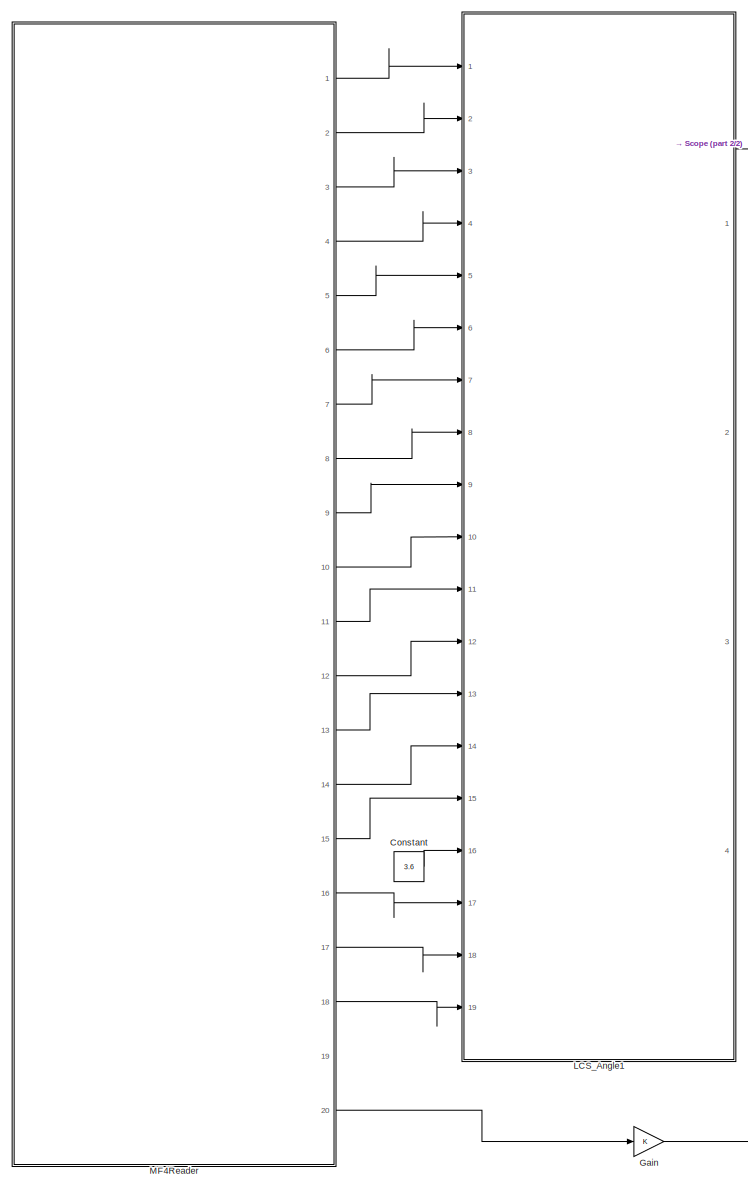
[diagram: root canvas - part 1/2, left side, full height]
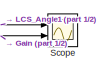
[diagram: root canvas - part 2/2, top right region]
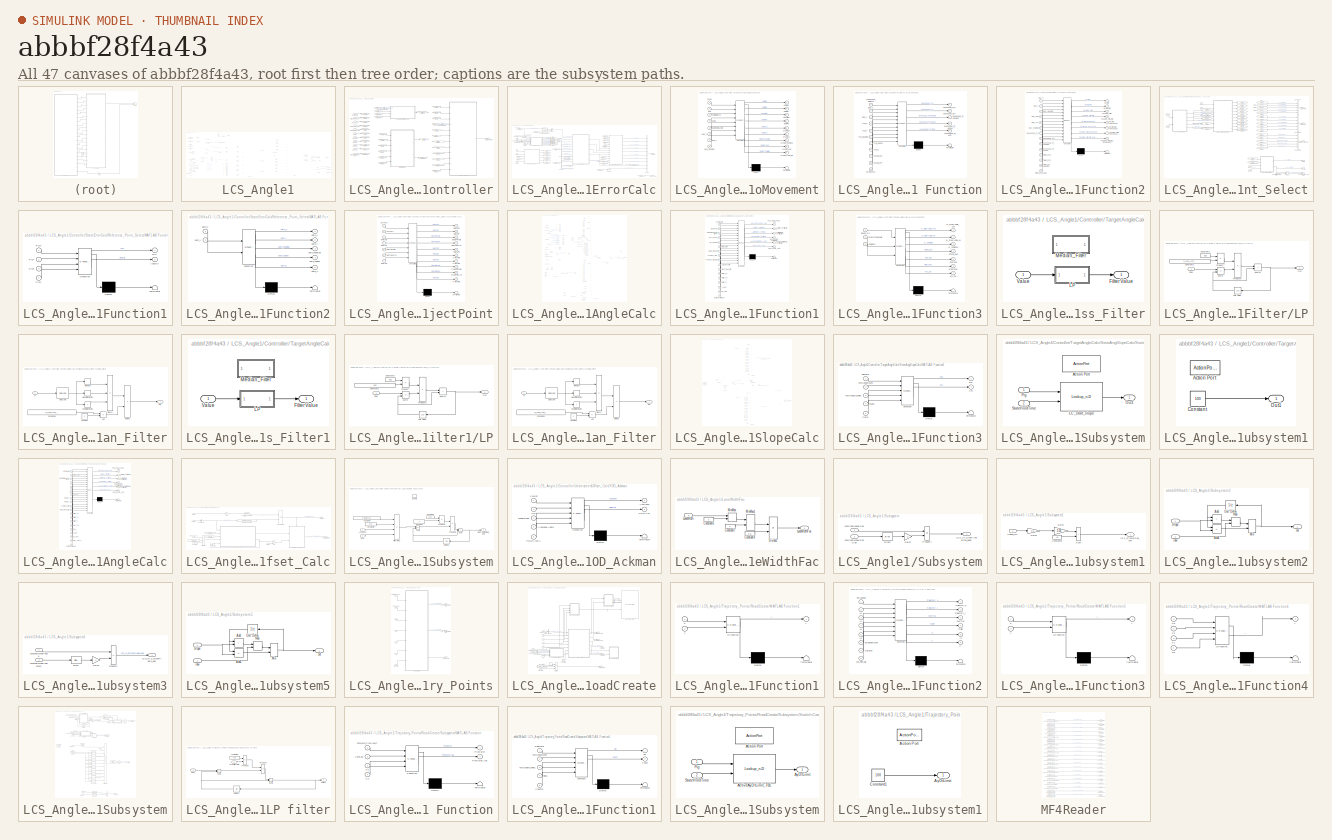
[diagram: thumbnail index - all 47 canvases of the model, root first then tree order]
MODEL slx_abbbf28f4a43
KIND model
CONFIG AbsTol = auto
CONFIG EnableMultiTasking = off
CONFIG FixedStep = 0.01
CONFIG MaxStep = auto
CONFIG MinStep = auto
CONFIG RelTol = 1e-3
CONFIG SampleTimeConstraint = Unconstrained
CONFIG SolverName = FixedStepDiscrete
CONFIG StartTime = 49.3316
CONFIG StopTime = 94.3708
BLOCK [Constant] Constant
  OutDataTypeStr = single
  Value = 3.6
BLOCK [Gain] Gain
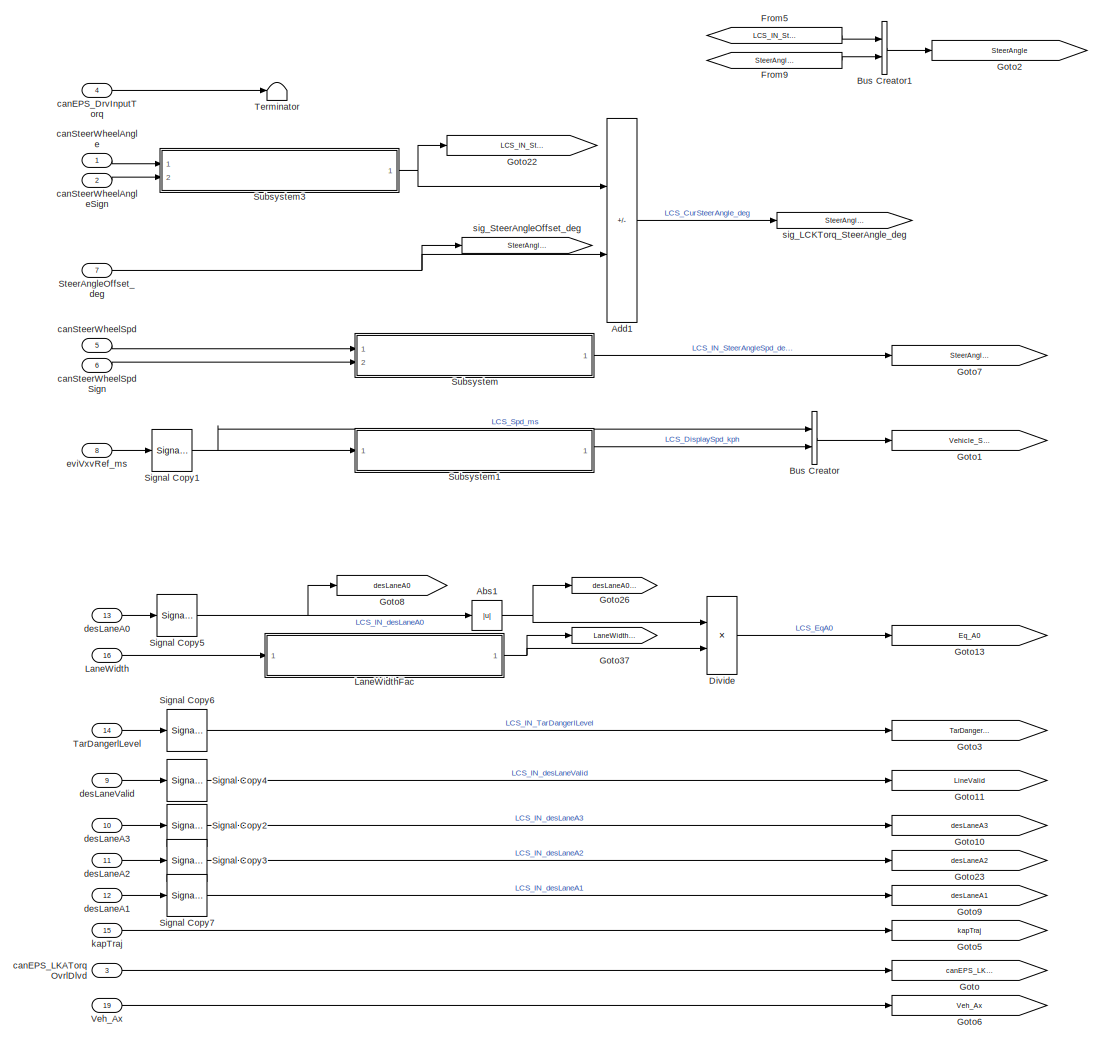
[diagram: LCS_Angle1 - part 1/4, left side, full height]
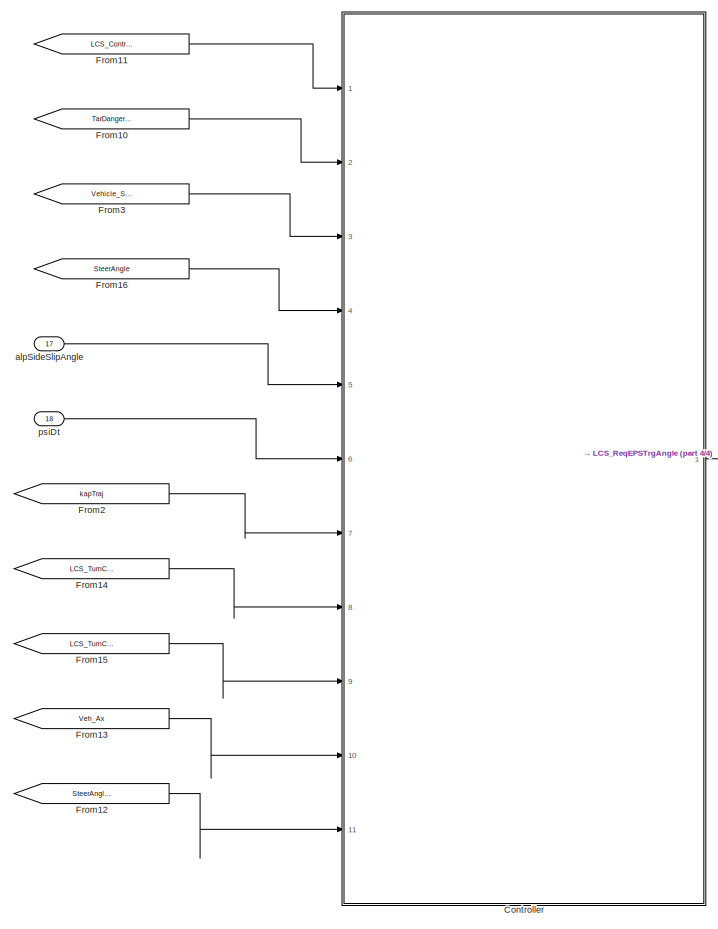
[diagram: LCS_Angle1 - part 2/4, right side, full height]
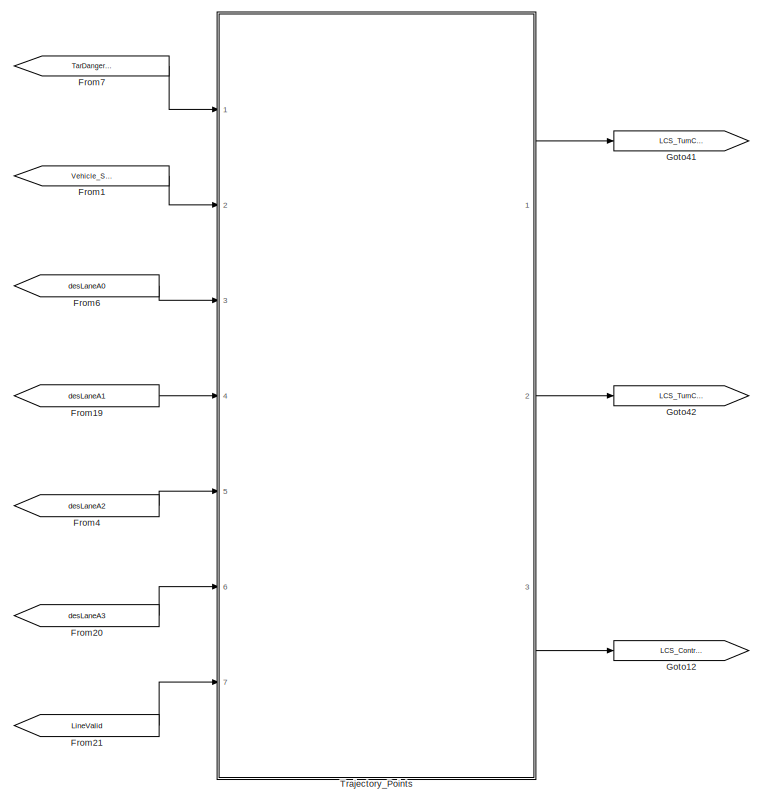
[diagram: LCS_Angle1 - part 3/4, center side, full height]
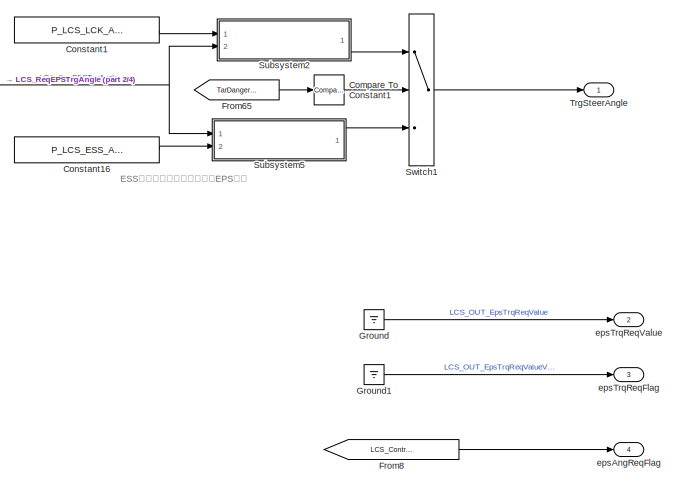
[diagram: LCS_Angle1 - part 4/4, bottom right region]
BLOCK [SubSystem] LCS_Angle1
  Ports = [19, 4]
  RequestExecContextInheritance = off
BLOCK [Abs] LCS_Angle1/Abs1
  NameLocation = left
  SaturateOnIntegerOverflow = off
BLOCK [Sum] LCS_Angle1/Add1
  IconShape = rectangular
  Inputs = +-
  Ports = [2, 1]
BLOCK [BusCreator] LCS_Angle1/Bus Creator
  DisplayOption = bar
  InheritFromInputs = on
  Inputs = 2
  Ports = [2, 1]
BLOCK [BusCreator] LCS_Angle1/Bus Creator1
  DisplayOption = bar
  InheritFromInputs = on
  Inputs = 2
  Ports = [2, 1]
BLOCK [Reference] LCS_Angle1/Compare To Constant1  REF=simulink/Logic and Bit
Operations/Compare
To Constant
  Ports = [1, 1]
  SourceBlock = simulink/Logic and Bit\nOperations/Compare\nTo Constant
  SourceProductBaseCode = SL
  SourceType = Compare To Constant
BLOCK [Constant] LCS_Angle1/Constant1
  AttributesFormatString = %<Description>
  Description = 2.9
  OutDataTypeStr = single
  Value = P_LCS_LCK_AngleSlope_Limit
BLOCK [Constant] LCS_Angle1/Constant16
  AttributesFormatString = %<Description>
  Description = 2.9
  OutDataTypeStr = single
  Value = P_LCS_ESS_AngleSlope_Limit
BLOCK [SubSystem] LCS_Angle1/Controller
  Ports = [11, 1]
  RequestExecContextInheritance = off
BLOCK [BusSelector] LCS_Angle1/Controller/Bus Selector
  OutputSignals = LCS_IN_CurSteerAngle_deg
  Ports = [1, 1]
BLOCK [BusSelector] LCS_Angle1/Controller/Bus Selector1
  OutputSignals = LCS_CurSteerAngle_deg
  Ports = [1, 1]
BLOCK [Inport] LCS_Angle1/Controller/ControlValid
BLOCK [From] LCS_Angle1/Controller/From
  GotoTag = ControlValid
BLOCK [From] LCS_Angle1/Controller/From1
  GotoTag = TarDangerLevel
BLOCK [From] LCS_Angle1/Controller/From10
  GotoTag = VehKap
BLOCK [From] LCS_Angle1/Controller/From11
  GotoTag = SteerAngle
BLOCK [From] LCS_Angle1/Controller/From12
  GotoTag = SteerAngle
BLOCK [From] LCS_Angle1/Controller/From14
  GotoTag = psiDt
BLOCK [From] LCS_Angle1/Controller/From15
  GotoTag = Veh_Ax
BLOCK [From] LCS_Angle1/Controller/From16
  GotoTag = Veh_Spd
BLOCK [From] LCS_Angle1/Controller/From17
  GotoTag = psiDt
BLOCK [From] LCS_Angle1/Controller/From18
  GotoTag = VehKap
BLOCK [From] LCS_Angle1/Controller/From19
  GotoTag = RefTrajX
BLOCK [From] LCS_Angle1/Controller/From2
  GotoTag = Veh_Spd
BLOCK [From] LCS_Angle1/Controller/From20
  GotoTag = RefTrajY
BLOCK [From] LCS_Angle1/Controller/From21
  GotoTag = ReferencelinePoint
BLOCK [From] LCS_Angle1/Controller/From22
  GotoTag = RefTrajX
BLOCK [From] LCS_Angle1/Controller/From23
  GotoTag = RefTrajY
BLOCK [From] LCS_Angle1/Controller/From4
  GotoTag = LateralStateError
BLOCK [From] LCS_Angle1/Controller/From5
  GotoTag = SteerAngleOffset_deg
BLOCK [From] LCS_Angle1/Controller/From6
  GotoTag = CurrentSteerAngleOffset
BLOCK [From] LCS_Angle1/Controller/From7
  GotoTag = Veh_Spd
BLOCK [From] LCS_Angle1/Controller/From8
  GotoTag = alpSideSlipAngle
BLOCK [From] LCS_Angle1/Controller/From9
  GotoTag = psiDt
BLOCK [Goto] LCS_Angle1/Controller/Goto
  GotoTag = ControlValid
BLOCK [Goto] LCS_Angle1/Controller/Goto1
  GotoTag = LateralStateError
BLOCK [Goto] LCS_Angle1/Controller/Goto10
  GotoTag = SteerAngleOffset_deg
BLOCK [Goto] LCS_Angle1/Controller/Goto11
  GotoTag = Veh_Ax
BLOCK [Goto] LCS_Angle1/Controller/Goto12
  GotoTag = ReferencelinePoint
BLOCK [Goto] LCS_Angle1/Controller/Goto14
  GotoTag = CurrentSteerAngleOffset
BLOCK [Goto] LCS_Angle1/Controller/Goto2
  GotoTag = TarDangerLevel
BLOCK [Goto] LCS_Angle1/Controller/Goto3
  GotoTag = Veh_Spd
BLOCK [Goto] LCS_Angle1/Controller/Goto4
  GotoTag = SteerAngle
BLOCK [Goto] LCS_Angle1/Controller/Goto5
  GotoTag = alpSideSlipAngle
BLOCK [Goto] LCS_Angle1/Controller/Goto6
  GotoTag = psiDt
BLOCK [Goto] LCS_Angle1/Controller/Goto7
  GotoTag = VehKap
BLOCK [Goto] LCS_Angle1/Controller/Goto8
  GotoTag = RefTrajX
BLOCK [Goto] LCS_Angle1/Controller/Goto9
  GotoTag = RefTrajY
BLOCK [Inport] LCS_Angle1/Controller/RefTrajX
  Port = 8
BLOCK [Inport] LCS_Angle1/Controller/RefTrajY
  Port = 9
BLOCK [SubSystem] LCS_Angle1/Controller/StateErrorCalc
  Ports = [6, 2]
  RequestExecContextInheritance = off
BLOCK [Lookup_n-D] LCS_Angle1/Controller/StateErrorCalc/2-D Lookup Table2
  BreakpointsForDimension1 = P_LCS_Curvature_bp
  BreakpointsForDimension2 = P_LCS_VehicleSpd_TabX_Kph
  InputPortMap = u0,u1
  InternalRulePriority = Speed
  Ports = [2, 1]
  RndMeth = Simplest
  Table = P_LCS_CycleTime
BLOCK [BusCreator] LCS_Angle1/Controller/StateErrorCalc/Bus Creator
  DisplayOption = bar
  InheritFromInputs = on
  Inputs = 10
  Ports = [10, 1]
BLOCK [BusSelector] LCS_Angle1/Controller/StateErrorCalc/Bus Selector
  OutputSignals = LCS_Spd_ms
  Ports = [1, 1]
BLOCK [BusSelector] LCS_Angle1/Controller/StateErrorCalc/Bus Selector1
  OutputSignals = referenceline_x,referenceline_y,referenceline_heading,referenceline_kappa,referenceline_s
  Ports = [1, 5]
BLOCK [BusSelector] LCS_Angle1/Controller/StateErrorCalc/Bus Selector2
  OutputSignals = LCS_ProjectPtX,LCS_ProjectPtY,LCS_ProjectPtS,LCS_ProjectPtTheta,LCS_ProjectPtCurve
  Ports = [1, 5]
BLOCK [BusSelector] LCS_Angle1/Controller/StateErrorCalc/Bus Selector3
  OutputSignals = LCS_DisplaySpd_kph
  Ports = [1, 1]
BLOCK [Constant] LCS_Angle1/Controller/StateErrorCalc/Constant
  OutDataTypeStr = single
  Value = 0
BLOCK [Constant] LCS_Angle1/Controller/StateErrorCalc/Constant1
  OutDataTypeStr = single
  Value = 0
BLOCK [Constant] LCS_Angle1/Controller/StateErrorCalc/Constant3
  OutDataTypeStr = single
BLOCK [Constant] LCS_Angle1/Controller/StateErrorCalc/Constant4
  OutDataTypeStr = single
  Value = 0
BLOCK [SubSystem] LCS_Angle1/Controller/StateErrorCalc/EgoMovement
  ErrorFcn = Stateflow.Translate.translate
  PermitHierarchicalResolution = ExplicitOnly
  Ports = [8, 9]
  RequestExecContextInheritance = off
  SFBlockType = MATLAB Function
  TreatAsAtomicUnit = on
BLOCK [Demux] LCS_Angle1/Controller/StateErrorCalc/EgoMovement/ Demux 
  Outputs = 1
  Ports = [1, 1]
BLOCK [S-Function] LCS_Angle1/Controller/StateErrorCalc/EgoMovement/ SFunction 
  EnableBusSupport = on
  FunctionName = sf_sfun
  PortCounts = [8 10]
  Ports = [8, 10]
  SFcnIsStateOwnerBlock = off
  SFunctionDeploymentMode = off
  Tag = Stateflow S-Function 2
BLOCK [Terminator] LCS_Angle1/Controller/StateErrorCalc/EgoMovement/ Terminator 
BLOCK [Outport] LCS_Angle1/Controller/StateErrorCalc/EgoMovement/CosOfPsi
  Port = 3
BLOCK [Inport] LCS_Angle1/Controller/StateErrorCalc/EgoMovement/Kap
  Port = 2
BLOCK [Outport] LCS_Angle1/Controller/StateErrorCalc/EgoMovement/SinOfPsi
  Port = 4
BLOCK [Inport] LCS_Angle1/Controller/StateErrorCalc/EgoMovement/Vego
  Port = 4
BLOCK [Inport] LCS_Angle1/Controller/StateErrorCalc/EgoMovement/alpSideSlipAngle
  Port = 5
BLOCK [Outport] LCS_Angle1/Controller/StateErrorCalc/EgoMovement/dDeltaX
BLOCK [Outport] LCS_Angle1/Controller/StateErrorCalc/EgoMovement/dDeltaY
  Port = 2
BLOCK [Inport] LCS_Angle1/Controller/StateErrorCalc/EgoMovement/ego_heading
  Port = 8
BLOCK [Inport] LCS_Angle1/Controller/StateErrorCalc/EgoMovement/ego_x
  Port = 6
BLOCK [Inport] LCS_Angle1/Controller/StateErrorCalc/EgoMovement/ego_y
  Port = 7
BLOCK [Outport] LCS_Angle1/Controller/StateErrorCalc/EgoMovement/predict_heading
  Port = 7
BLOCK [Outport] LCS_Angle1/Controller/StateErrorCalc/EgoMovement/predict_spd
  Port = 8
BLOCK [Outport] LCS_Angle1/Controller/StateErrorCalc/EgoMovement/predict_x
  Port = 5
BLOCK [Outport] LCS_Angle1/Controller/StateErrorCalc/EgoMovement/predict_y
  Port = 6
BLOCK [Outport] LCS_Angle1/Controller/StateErrorCalc/EgoMovement/predict_yawrate
  Port = 9
BLOCK [Inport] LCS_Angle1/Controller/StateErrorCalc/EgoMovement/psiDtOptSync
  Port = 3
BLOCK [Inport] LCS_Angle1/Controller/StateErrorCalc/EgoMovement/tCycle
BLOCK [From] LCS_Angle1/Controller/StateErrorCalc/From
  GotoTag = predict_x
BLOCK [From] LCS_Angle1/Controller/StateErrorCalc/From1
  GotoTag = predict_y
BLOCK [From] LCS_Angle1/Controller/StateErrorCalc/From10
  GotoTag = Target_Pt_Y
BLOCK [From] LCS_Angle1/Controller/StateErrorCalc/From11
  GotoTag = Target_Pt_Heading
BLOCK [From] LCS_Angle1/Controller/StateErrorCalc/From12
  GotoTag = Target_Pt_Kappa
BLOCK [From] LCS_Angle1/Controller/StateErrorCalc/From13
  GotoTag = predict_x
BLOCK [From] LCS_Angle1/Controller/StateErrorCalc/From14
  GotoTag = predict_y
BLOCK [From] LCS_Angle1/Controller/StateErrorCalc/From15
  GotoTag = Target_Pt_Kappa
BLOCK [From] LCS_Angle1/Controller/StateErrorCalc/From16
  GotoTag = Target_Pt_Kappa
BLOCK [From] LCS_Angle1/Controller/StateErrorCalc/From17
  GotoTag = lookahead_Pt_Kappa
BLOCK [From] LCS_Angle1/Controller/StateErrorCalc/From18
  GotoTag = ReferencelinePoint
BLOCK [From] LCS_Angle1/Controller/StateErrorCalc/From2
  GotoTag = ReferencelinePoint
BLOCK [From] LCS_Angle1/Controller/StateErrorCalc/From3
  GotoTag = ProjectPoint
BLOCK [From] LCS_Angle1/Controller/StateErrorCalc/From4
  GotoTag = predict_x
BLOCK [From] LCS_Angle1/Controller/StateErrorCalc/From5
  GotoTag = predict_y
BLOCK [From] LCS_Angle1/Controller/StateErrorCalc/From6
  GotoTag = predict_heading
BLOCK [From] LCS_Angle1/Controller/StateErrorCalc/From7
  GotoTag = predict_spd
BLOCK [From] LCS_Angle1/Controller/StateErrorCalc/From8
  GotoTag = predict_YawRate
BLOCK [From] LCS_Angle1/Controller/StateErrorCalc/From9
  GotoTag = Target_Pt_X
BLOCK [Goto] LCS_Angle1/Controller/StateErrorCalc/Goto
  GotoTag = lookahead_Pt_Kappa
BLOCK [Goto] LCS_Angle1/Controller/StateErrorCalc/Goto1
  GotoTag = ProjectPoint
BLOCK [Goto] LCS_Angle1/Controller/StateErrorCalc/Goto10
  GotoTag = Target_Pt_Y
BLOCK [Goto] LCS_Angle1/Controller/StateErrorCalc/Goto11
  GotoTag = Target_Pt_Heading
BLOCK [Goto] LCS_Angle1/Controller/StateErrorCalc/Goto12
  GotoTag = Target_Pt_Kappa
BLOCK [Goto] LCS_Angle1/Controller/StateErrorCalc/Goto15
  GotoTag = dDeltaY
BLOCK [Goto] LCS_Angle1/Controller/StateErrorCalc/Goto16
  GotoTag = CosOfPsi
BLOCK [Goto] LCS_Angle1/Controller/StateErrorCalc/Goto2
  GotoTag = MatchPoint
BLOCK [Goto] LCS_Angle1/Controller/StateErrorCalc/Goto3
  GotoTag = ReferencelinePoint
BLOCK [Goto] LCS_Angle1/Controller/StateErrorCalc/Goto31
  GotoTag = SinOfPsi
BLOCK [Goto] LCS_Angle1/Controller/StateErrorCalc/Goto32
  GotoTag = AbsMinDis2Traj
BLOCK [Goto] LCS_Angle1/Controller/StateErrorCalc/Goto33
  GotoTag = dDeltaX
BLOCK [Goto] LCS_Angle1/Controller/StateErrorCalc/Goto34
  GotoTag = MinDis2Traj
BLOCK [Goto] LCS_Angle1/Controller/StateErrorCalc/Goto38
  GotoTag = AbsDis_BaseLaneWidth
BLOCK [Goto] LCS_Angle1/Controller/StateErrorCalc/Goto4
  GotoTag = predict_y
BLOCK [Goto] LCS_Angle1/Controller/StateErrorCalc/Goto5
  GotoTag = predict_heading
BLOCK [Goto] LCS_Angle1/Controller/StateErrorCalc/Goto6
  GotoTag = predict_spd
BLOCK [Goto] LCS_Angle1/Controller/StateErrorCalc/Goto7
  GotoTag = predict_x
BLOCK [Goto] LCS_Angle1/Controller/StateErrorCalc/Goto8
  GotoTag = predict_YawRate
BLOCK [Goto] LCS_Angle1/Controller/StateErrorCalc/Goto9
  GotoTag = Target_Pt_X
BLOCK [Outport] LCS_Angle1/Controller/StateErrorCalc/LateralStateError
BLOCK [Lookup_n-D] LCS_Angle1/Controller/StateErrorCalc/Lookahead_Distance
  BreakpointsForDimension1 = P_LCS_VehicleSpd_TabX_Kph
  ExtrapMethod = Clip
  InputPortMap = u0
  InternalRulePriority = Speed
  NumberOfTableDimensions = 1
  Ports = [1, 1]
  RndMeth = Simplest
  Table = P_LCS_Lookahead_Distance
  UseLastTableValue = on
BLOCK [Lookup_n-D] LCS_Angle1/Controller/StateErrorCalc/Lookahead_Distance_Fac
  BreakpointsForDimension1 = P_LCS_Curvature_bp
  ExtrapMethod = Clip
  InputPortMap = u0
  InternalRulePriority = Speed
  NumberOfTableDimensions = 1
  Ports = [1, 1]
  RndMeth = Simplest
  Table = P_LCS_Lookahead_DistanceFac
  UseLastTableValue = on
BLOCK [SubSystem] LCS_Angle1/Controller/StateErrorCalc/MATLAB Function
  ErrorFcn = Stateflow.Translate.translate
  PermitHierarchicalResolution = ExplicitOnly
  Ports = [11, 5]
  RequestExecContextInheritance = off
  SFBlockType = MATLAB Function
  TreatAsAtomicUnit = on
BLOCK [Demux] LCS_Angle1/Controller/StateErrorCalc/MATLAB Function/ Demux 
  Outputs = 1
  Ports = [1, 1]
BLOCK [S-Function] LCS_Angle1/Controller/StateErrorCalc/MATLAB Function/ SFunction 
  EnableBusSupport = on
  FunctionName = sf_sfun
  PortCounts = [11 6]
  Ports = [11, 6]
  SFcnIsStateOwnerBlock = off
  SFunctionDeploymentMode = off
  Tag = Stateflow S-Function 5
BLOCK [Terminator] LCS_Angle1/Controller/StateErrorCalc/MATLAB Function/ Terminator 
BLOCK [Inport] LCS_Angle1/Controller/StateErrorCalc/MATLAB Function/Ego_X
  Port = 2
BLOCK [Inport] LCS_Angle1/Controller/StateErrorCalc/MATLAB Function/Ego_Y
  Port = 3
BLOCK [Inport] LCS_Angle1/Controller/StateErrorCalc/MATLAB Function/Lookahead_Distance
BLOCK [Outport] LCS_Angle1/Controller/StateErrorCalc/MATLAB Function/Lookahead_Pt_Num
  Port = 5
BLOCK [Inport] LCS_Angle1/Controller/StateErrorCalc/MATLAB Function/Target_Pt_S
  Port = 11
BLOCK [Inport] LCS_Angle1/Controller/StateErrorCalc/MATLAB Function/Target_Pt_X
  Port = 9
BLOCK [Inport] LCS_Angle1/Controller/StateErrorCalc/MATLAB Function/Target_Pt_Y
  Port = 10
BLOCK [Inport] LCS_Angle1/Controller/StateErrorCalc/MATLAB Function/Traj_Heading
  Port = 6
BLOCK [Inport] LCS_Angle1/Controller/StateErrorCalc/MATLAB Function/Traj_Kappa
  Port = 7
BLOCK [Inport] LCS_Angle1/Controller/StateErrorCalc/MATLAB Function/Traj_S
  Port = 8
BLOCK [Inport] LCS_Angle1/Controller/StateErrorCalc/MATLAB Function/Traj_X
  Port = 4
BLOCK [Inport] LCS_Angle1/Controller/StateErrorCalc/MATLAB Function/Traj_Y
  Port = 5
BLOCK [Outport] LCS_Angle1/Controller/StateErrorCalc/MATLAB Function/lookahead_Pt_Heading
  Port = 3
BLOCK [Outport] LCS_Angle1/Controller/StateErrorCalc/MATLAB Function/lookahead_Pt_Kappa
  Port = 4
BLOCK [Outport] LCS_Angle1/Controller/StateErrorCalc/MATLAB Function/lookahead_Pt_X
BLOCK [Outport] LCS_Angle1/Controller/StateErrorCalc/MATLAB Function/lookahead_Pt_Y
  Port = 2
BLOCK [SubSystem] LCS_Angle1/Controller/StateErrorCalc/MATLAB Function2
  ErrorFcn = Stateflow.Translate.translate
  PermitHierarchicalResolution = ExplicitOnly
  Ports = [14, 8]
  RequestExecContextInheritance = off
  SFBlockType = MATLAB Function
  TreatAsAtomicUnit = on
BLOCK [Demux] LCS_Angle1/Controller/StateErrorCalc/MATLAB Function2/ Demux 
  Outputs = 1
  Ports = [1, 1]
BLOCK [S-Function] LCS_Angle1/Controller/StateErrorCalc/MATLAB Function2/ SFunction 
  EnableBusSupport = on
  FunctionName = sf_sfun
  PortCounts = [14 9]
  Ports = [14, 9]
  SFcnIsStateOwnerBlock = off
  SFunctionDeploymentMode = off
  Tag = Stateflow S-Function 7
BLOCK [Terminator] LCS_Angle1/Controller/StateErrorCalc/MATLAB Function2/ Terminator 
BLOCK [Inport] LCS_Angle1/Controller/StateErrorCalc/MATLAB Function2/Ego_Acc
  Port = 5
BLOCK [Inport] LCS_Angle1/Controller/StateErrorCalc/MATLAB Function2/Ego_Heading
  Port = 3
BLOCK [Inport] LCS_Angle1/Controller/StateErrorCalc/MATLAB Function2/Ego_Spd
  Port = 4
BLOCK [Inport] LCS_Angle1/Controller/StateErrorCalc/MATLAB Function2/Ego_X
BLOCK [Inport] LCS_Angle1/Controller/StateErrorCalc/MATLAB Function2/Ego_Y
  Port = 2
BLOCK [Inport] LCS_Angle1/Controller/StateErrorCalc/MATLAB Function2/Ego_YawRate
  Port = 6
BLOCK [Inport] LCS_Angle1/Controller/StateErrorCalc/MATLAB Function2/Project_Pt_Heading
  Port = 13
BLOCK [Inport] LCS_Angle1/Controller/StateErrorCalc/MATLAB Function2/Project_Pt_Kappa
  Port = 14
BLOCK [Inport] LCS_Angle1/Controller/StateErrorCalc/MATLAB Function2/Project_Pt_X
  Port = 11
BLOCK [Inport] LCS_Angle1/Controller/StateErrorCalc/MATLAB Function2/Project_Pt_Y
  Port = 12
BLOCK [Outport] LCS_Angle1/Controller/StateErrorCalc/MATLAB Function2/heading_error
  Port = 3
BLOCK [Outport] LCS_Angle1/Controller/StateErrorCalc/MATLAB Function2/heading_error_lookahead
  Port = 7
BLOCK [Outport] LCS_Angle1/Controller/StateErrorCalc/MATLAB Function2/heading_error_rate
  Port = 4
BLOCK [Outport] LCS_Angle1/Controller/StateErrorCalc/MATLAB Function2/heading_error_rate_lookahead
  Port = 8
BLOCK [Outport] LCS_Angle1/Controller/StateErrorCalc/MATLAB Function2/lat_error
BLOCK [Outport] LCS_Angle1/Controller/StateErrorCalc/MATLAB Function2/lat_error_lookahead
  Port = 5
BLOCK [Outport] LCS_Angle1/Controller/StateErrorCalc/MATLAB Function2/lat_error_rate
  Port = 2
BLOCK [Outport] LCS_Angle1/Controller/StateErrorCalc/MATLAB Function2/lat_error_rate_lookahead
  Port = 6
BLOCK [Inport] LCS_Angle1/Controller/StateErrorCalc/MATLAB Function2/lookahead_Pt_Heading
  Port = 9
BLOCK [Inport] LCS_Angle1/Controller/StateErrorCalc/MATLAB Function2/lookahead_Pt_Kappa
  Port = 10
BLOCK [Inport] LCS_Angle1/Controller/StateErrorCalc/MATLAB Function2/lookahead_Pt_X
  Port = 7
BLOCK [Inport] LCS_Angle1/Controller/StateErrorCalc/MATLAB Function2/lookahead_Pt_Y
  Port = 8
BLOCK [Product] LCS_Angle1/Controller/StateErrorCalc/Product
  Ports = [2, 1]
BLOCK [Inport] LCS_Angle1/Controller/StateErrorCalc/RefTrajX
  Port = 5
BLOCK [Inport] LCS_Angle1/Controller/StateErrorCalc/RefTrajY
  Port = 6
BLOCK [SubSystem] LCS_Angle1/Controller/StateErrorCalc/Reference_Point_Select
  Ports = [5, 6]
  RequestExecContextInheritance = off
BLOCK [Outport] LCS_Angle1/Controller/StateErrorCalc/Reference_Point_Select/AbsDis
  Port = 2
BLOCK [Outport] LCS_Angle1/Controller/StateErrorCalc/Reference_Point_Select/AbsDis_BaseLaneWidth
  Port = 3
BLOCK [BusCreator] LCS_Angle1/Controller/StateErrorCalc/Reference_Point_Select/Bus Creator
  DisplayOption = bar
  InheritFromInputs = on
  Inputs = 5
  Ports = [5, 1]
BLOCK [BusCreator] LCS_Angle1/Controller/StateErrorCalc/Reference_Point_Select/Bus Creator1
  DisplayOption = bar
  InheritFromInputs = on
  Inputs = 5
  Ports = [5, 1]
BLOCK [BusCreator] LCS_Angle1/Controller/StateErrorCalc/Reference_Point_Select/Bus Creator2
  DisplayOption = bar
  InheritFromInputs = on
  Inputs = 5
  Ports = [5, 1]
BLOCK [Inport] LCS_Angle1/Controller/StateErrorCalc/Reference_Point_Select/EgoX
  Port = 3
BLOCK [InportShadow] LCS_Angle1/Controller/StateErrorCalc/Reference_Point_Select/EgoX1
  Port = 3
BLOCK [Inport] LCS_Angle1/Controller/StateErrorCalc/Reference_Point_Select/EgoY
  Port = 4
BLOCK [InportShadow] LCS_Angle1/Controller/StateErrorCalc/Reference_Point_Select/EgoY1
  Port = 4
BLOCK [From] LCS_Angle1/Controller/StateErrorCalc/Reference_Point_Select/From
  GotoTag = ProjectPtX
BLOCK [From] LCS_Angle1/Controller/StateErrorCalc/Reference_Point_Select/From1
  GotoTag = ProjectPtY
BLOCK [From] LCS_Angle1/Controller/StateErrorCalc/Reference_Point_Select/From10
  GotoTag = referenceline_x
BLOCK [From] LCS_Angle1/Controller/StateErrorCalc/Reference_Point_Select/From11
  GotoTag = referenceline_y
BLOCK [From] LCS_Angle1/Controller/StateErrorCalc/Reference_Point_Select/From12
  GotoTag = referenceline_heading
BLOCK [From] LCS_Angle1/Controller/StateErrorCalc/Reference_Point_Select/From13
  GotoTag = referenceline_kappa
BLOCK [From] LCS_Angle1/Controller/StateErrorCalc/Reference_Point_Select/From14
  GotoTag = referenceline_s
BLOCK [From] LCS_Angle1/Controller/StateErrorCalc/Reference_Point_Select/From15
  GotoTag = MatchPtS
BLOCK [From] LCS_Angle1/Controller/StateErrorCalc/Reference_Point_Select/From16
  GotoTag = ProjectPtS
BLOCK [From] LCS_Angle1/Controller/StateErrorCalc/Reference_Point_Select/From2
  GotoTag = MatchPtX
BLOCK [From] LCS_Angle1/Controller/StateErrorCalc/Reference_Point_Select/From3
  GotoTag = MatchPtY
BLOCK [From] LCS_Angle1/Controller/StateErrorCalc/Reference_Point_Select/From4
  GotoTag = MatchPtTheta
BLOCK [From] LCS_Angle1/Controller/StateErrorCalc/Reference_Point_Select/From5
  GotoTag = MatchPtCurve
BLOCK [From] LCS_Angle1/Controller/StateErrorCalc/Reference_Point_Select/From6
  GotoTag = ProjectPtX
BLOCK [From] LCS_Angle1/Controller/StateErrorCalc/Reference_Point_Select/From7
  GotoTag = ProjectPtY
BLOCK [From] LCS_Angle1/Controller/StateErrorCalc/Reference_Point_Select/From8
  GotoTag = ProjectPtTheta
BLOCK [From] LCS_Angle1/Controller/StateErrorCalc/Reference_Point_Select/From9
  GotoTag = ProjectPtCurve
BLOCK [Goto] LCS_Angle1/Controller/StateErrorCalc/Reference_Point_Select/Goto
  GotoTag = MatchPtX
BLOCK [Goto] LCS_Angle1/Controller/StateErrorCalc/Reference_Point_Select/Goto1
  GotoTag = MatchPtY
BLOCK [Goto] LCS_Angle1/Controller/StateErrorCalc/Reference_Point_Select/Goto10
  GotoTag = referenceline_heading
BLOCK [Goto] LCS_Angle1/Controller/StateErrorCalc/Reference_Point_Select/Goto11
  GotoTag = referenceline_y
BLOCK [Goto] LCS_Angle1/Controller/StateErrorCalc/Reference_Point_Select/Goto12
  GotoTag = referenceline_x
BLOCK [Goto] LCS_Angle1/Controller/StateErrorCalc/Reference_Point_Select/Goto13
  GotoTag = MatchPtS
BLOCK [Goto] LCS_Angle1/Controller/StateErrorCalc/Reference_Point_Select/Goto14
  GotoTag = ProjectPtS
BLOCK [Goto] LCS_Angle1/Controller/StateErrorCalc/Reference_Point_Select/Goto2
  GotoTag = MatchPtTheta
BLOCK [Goto] LCS_Angle1/Controller/StateErrorCalc/Reference_Point_Select/Goto3
  GotoTag = MatchPtCurve
BLOCK [Goto] LCS_Angle1/Controller/StateErrorCalc/Reference_Point_Select/Goto4
  GotoTag = ProjectPtX
BLOCK [Goto] LCS_Angle1/Controller/StateErrorCalc/Reference_Point_Select/Goto5
  GotoTag = ProjectPtY
BLOCK [Goto] LCS_Angle1/Controller/StateErrorCalc/Reference_Point_Select/Goto6
  GotoTag = ProjectPtTheta
BLOCK [Goto] LCS_Angle1/Controller/StateErrorCalc/Reference_Point_Select/Goto7
  GotoTag = ProjectPtCurve
BLOCK [Goto] LCS_Angle1/Controller/StateErrorCalc/Reference_Point_Select/Goto8
  GotoTag = referenceline_s
BLOCK [Goto] LCS_Angle1/Controller/StateErrorCalc/Reference_Point_Select/Goto9
  GotoTag = referenceline_kappa
BLOCK [Inport] LCS_Angle1/Controller/StateErrorCalc/Reference_Point_Select/LaneWidthCorrectFac
  Port = 5
BLOCK [SubSystem] LCS_Angle1/Controller/StateErrorCalc/Reference_Point_Select/MATLAB Function1
  ErrorFcn = Stateflow.Translate.translate
  PermitHierarchicalResolution = ExplicitOnly
  Ports = [4, 2]
  RequestExecContextInheritance = off
  SFBlockType = MATLAB Function
  TreatAsAtomicUnit = on
BLOCK [Demux] LCS_Angle1/Controller/StateErrorCalc/Reference_Point_Select/MATLAB Function1/ Demux 
  Outputs = 1
  Ports = [1, 1]
BLOCK [S-Function] LCS_Angle1/Controller/StateErrorCalc/Reference_Point_Select/MATLAB Function1/ SFunction 
  EnableBusSupport = on
  FunctionName = sf_sfun
  PortCounts = [4 3]
  Ports = [4, 3]
  SFcnIsStateOwnerBlock = off
  SFunctionDeploymentMode = off
  Tag = Stateflow S-Function 8
BLOCK [Terminator] LCS_Angle1/Controller/StateErrorCalc/Reference_Point_Select/MATLAB Function1/ Terminator 
BLOCK [Outport] LCS_Angle1/Controller/StateErrorCalc/Reference_Point_Select/MATLAB Function1/AbsDis
  Port = 2
BLOCK [Outport] LCS_Angle1/Controller/StateErrorCalc/Reference_Point_Select/MATLAB Function1/Dis
BLOCK [Inport] LCS_Angle1/Controller/StateErrorCalc/Reference_Point_Select/MATLAB Function1/Pt1X
BLOCK [Inport] LCS_Angle1/Controller/StateErrorCalc/Reference_Point_Select/MATLAB Function1/Pt1Y
  Port = 2
BLOCK [Inport] LCS_Angle1/Controller/StateErrorCalc/Reference_Point_Select/MATLAB Function1/Pt2X
  Port = 3
BLOCK [Inport] LCS_Angle1/Controller/StateErrorCalc/Reference_Point_Select/MATLAB Function1/Pt2Y
  Port = 4
BLOCK [SubSystem] LCS_Angle1/Controller/StateErrorCalc/Reference_Point_Select/MATLAB Function2
  ErrorFcn = Stateflow.Translate.translate
  PermitHierarchicalResolution = ExplicitOnly
  Ports = [2, 5]
  RequestExecContextInheritance = off
  SFBlockType = MATLAB Function
  TreatAsAtomicUnit = on
BLOCK [Demux] LCS_Angle1/Controller/StateErrorCalc/Reference_Point_Select/MATLAB Function2/ Demux 
  Outputs = 1
  Ports = [1, 1]
BLOCK [S-Function] LCS_Angle1/Controller/StateErrorCalc/Reference_Point_Select/MATLAB Function2/ SFunction 
  EnableBusSupport = on
  FunctionName = sf_sfun
  PortCounts = [2 6]
  Ports = [2, 6]
  SFcnIsStateOwnerBlock = off
  SFunctionDeploymentMode = off
  Tag = Stateflow S-Function 10
BLOCK [Terminator] LCS_Angle1/Controller/StateErrorCalc/Reference_Point_Select/MATLAB Function2/ Terminator 
BLOCK [Outport] LCS_Angle1/Controller/StateErrorCalc/Reference_Point_Select/MATLAB Function2/path_heading
  Port = 3
BLOCK [Outport] LCS_Angle1/Controller/StateErrorCalc/Reference_Point_Select/MATLAB Function2/path_kappa
  Port = 4
BLOCK [Outport] LCS_Angle1/Controller/StateErrorCalc/Reference_Point_Select/MATLAB Function2/path_s
  Port = 5
BLOCK [Outport] LCS_Angle1/Controller/StateErrorCalc/Reference_Point_Select/MATLAB Function2/path_x
BLOCK [Inport] LCS_Angle1/Controller/StateErrorCalc/Reference_Point_Select/MATLAB Function2/path_x 
BLOCK [Outport] LCS_Angle1/Controller/StateErrorCalc/Reference_Point_Select/MATLAB Function2/path_y
  Port = 2
BLOCK [Inport] LCS_Angle1/Controller/StateErrorCalc/Reference_Point_Select/MATLAB Function2/path_y 
  Port = 2
BLOCK [Outport] LCS_Angle1/Controller/StateErrorCalc/Reference_Point_Select/MatchPoint
  Port = 4
BLOCK [SubSystem] LCS_Angle1/Controller/StateErrorCalc/Reference_Point_Select/MatchPoint_ProjectPoint
  ErrorFcn = Stateflow.Translate.translate
  PermitHierarchicalResolution = ExplicitOnly
  Ports = [7, 10]
  RequestExecContextInheritance = off
  SFBlockType = MATLAB Function
  TreatAsAtomicUnit = on
BLOCK [Demux] LCS_Angle1/Controller/StateErrorCalc/Reference_Point_Select/MatchPoint_ProjectPoint/ Demux 
  Outputs = 1
  Ports = [1, 1]
BLOCK [S-Function] LCS_Angle1/Controller/StateErrorCalc/Reference_Point_Select/MatchPoint_ProjectPoint/ SFunction 
  EnableBusSupport = on
  FunctionName = sf_sfun
  PortCounts = [7 11]
  Ports = [7, 11]
  SFcnIsStateOwnerBlock = off
  SFunctionDeploymentMode = off
  Tag = Stateflow S-Function 12
BLOCK [Terminator] LCS_Angle1/Controller/StateErrorCalc/Reference_Point_Select/MatchPoint_ProjectPoint/ Terminator 
BLOCK [Inport] LCS_Angle1/Controller/StateErrorCalc/Reference_Point_Select/MatchPoint_ProjectPoint/CurPosX
BLOCK [Inport] LCS_Angle1/Controller/StateErrorCalc/Reference_Point_Select/MatchPoint_ProjectPoint/CurPosY
  Port = 2
BLOCK [Outport] LCS_Angle1/Controller/StateErrorCalc/Reference_Point_Select/MatchPoint_ProjectPoint/MatchPtCurve
  Port = 4
BLOCK [Outport] LCS_Angle1/Controller/StateErrorCalc/Reference_Point_Select/MatchPoint_ProjectPoint/MatchPtS
  Port = 5
BLOCK [Outport] LCS_Angle1/Controller/StateErrorCalc/Reference_Point_Select/MatchPoint_ProjectPoint/MatchPtTheta
  Port = 3
BLOCK [Outport] LCS_Angle1/Controller/StateErrorCalc/Reference_Point_Select/MatchPoint_ProjectPoint/MatchPtX
BLOCK [Outport] LCS_Angle1/Controller/StateErrorCalc/Reference_Point_Select/MatchPoint_ProjectPoint/MatchPtY
  Port = 2
BLOCK [Outport] LCS_Angle1/Controller/StateErrorCalc/Reference_Point_Select/MatchPoint_ProjectPoint/ProjectPtCurve
  Port = 9
BLOCK [Outport] LCS_Angle1/Controller/StateErrorCalc/Reference_Point_Select/MatchPoint_ProjectPoint/ProjectPtS
  Port = 10
BLOCK [Outport] LCS_Angle1/Controller/StateErrorCalc/Reference_Point_Select/MatchPoint_ProjectPoint/ProjectPtTheta
  Port = 8
BLOCK [Outport] LCS_Angle1/Controller/StateErrorCalc/Reference_Point_Select/MatchPoint_ProjectPoint/ProjectPtX
  Port = 6
BLOCK [Outport] LCS_Angle1/Controller/StateErrorCalc/Reference_Point_Select/MatchPoint_ProjectPoint/ProjectPtY
  Port = 7
BLOCK [Inport] LCS_Angle1/Controller/StateErrorCalc/Reference_Point_Select/MatchPoint_ProjectPoint/RefTrajCurve
  Port = 6
BLOCK [Inport] LCS_Angle1/Controller/StateErrorCalc/Reference_Point_Select/MatchPoint_ProjectPoint/RefTrajS
  Port = 7
BLOCK [Inport] LCS_Angle1/Controller/StateErrorCalc/Reference_Point_Select/MatchPoint_ProjectPoint/RefTrajTheta
  Port = 5
BLOCK [Inport] LCS_Angle1/Controller/StateErrorCalc/Reference_Point_Select/MatchPoint_ProjectPoint/RefTrajX
  Port = 3
BLOCK [Inport] LCS_Angle1/Controller/StateErrorCalc/Reference_Point_Select/MatchPoint_ProjectPoint/RefTrajY
  Port = 4
BLOCK [Outport] LCS_Angle1/Controller/StateErrorCalc/Reference_Point_Select/MinDis
BLOCK [Product] LCS_Angle1/Controller/StateErrorCalc/Reference_Point_Select/Product
  Ports = [2, 1]
BLOCK [Outport] LCS_Angle1/Controller/StateErrorCalc/Reference_Point_Select/ProjectPoint
  Port = 5
BLOCK [Inport] LCS_Angle1/Controller/StateErrorCalc/Reference_Point_Select/RefTrajX
BLOCK [Inport] LCS_Angle1/Controller/StateErrorCalc/Reference_Point_Select/RefTrajY
  Port = 2
BLOCK [Outport] LCS_Angle1/Controller/StateErrorCalc/Reference_Point_Select/ReferencelinePoint
  Port = 6
BLOCK [Outport] LCS_Angle1/Controller/StateErrorCalc/ReferencelinePoint
  Port = 2
BLOCK [SignalConversion] LCS_Angle1/Controller/StateErrorCalc/Signal Copy
  OverrideOpt = off
BLOCK [Terminator] LCS_Angle1/Controller/StateErrorCalc/Terminator
BLOCK [UnitDelay] LCS_Angle1/Controller/StateErrorCalc/Unit Delay
  HasFrameUpgradeWarning = on
  SampleTime = -1
BLOCK [Inport] LCS_Angle1/Controller/StateErrorCalc/VehKap
  Port = 4
BLOCK [Inport] LCS_Angle1/Controller/StateErrorCalc/Veh_Spd
BLOCK [InportShadow] LCS_Angle1/Controller/StateErrorCalc/Veh_Spd1
BLOCK [Inport] LCS_Angle1/Controller/StateErrorCalc/alpSideSlipAngle
  Port = 2
BLOCK [Inport] LCS_Angle1/Controller/StateErrorCalc/psiDt
  Port = 3
BLOCK [Inport] LCS_Angle1/Controller/SteerAngleOffset_deg
  Port = 11
BLOCK [Inport] LCS_Angle1/Controller/SteerAngle_deg
  Port = 4
BLOCK [Inport] LCS_Angle1/Controller/TarDangerLevel
  Port = 2
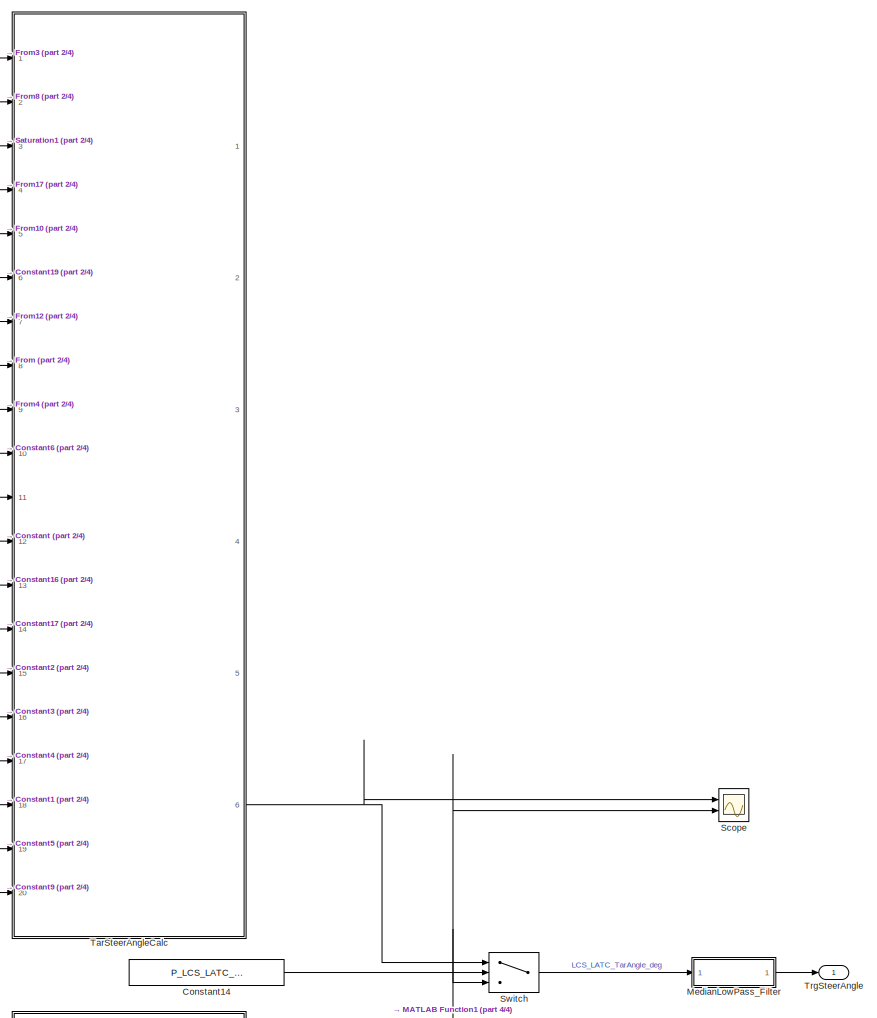
[diagram: LCS_Angle1/Controller/TargetAngleCalc - part 1/4, top right region]
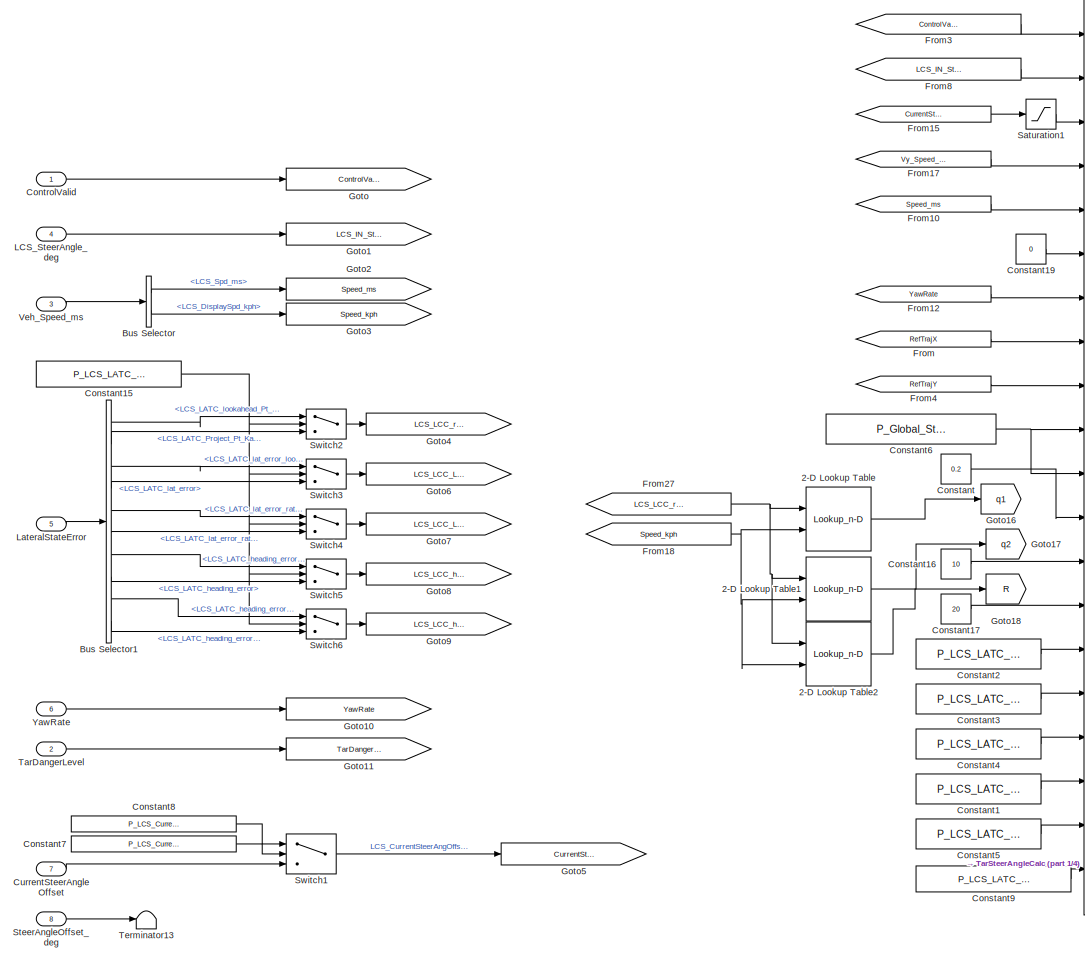
[diagram: LCS_Angle1/Controller/TargetAngleCalc - part 2/4, top left region]
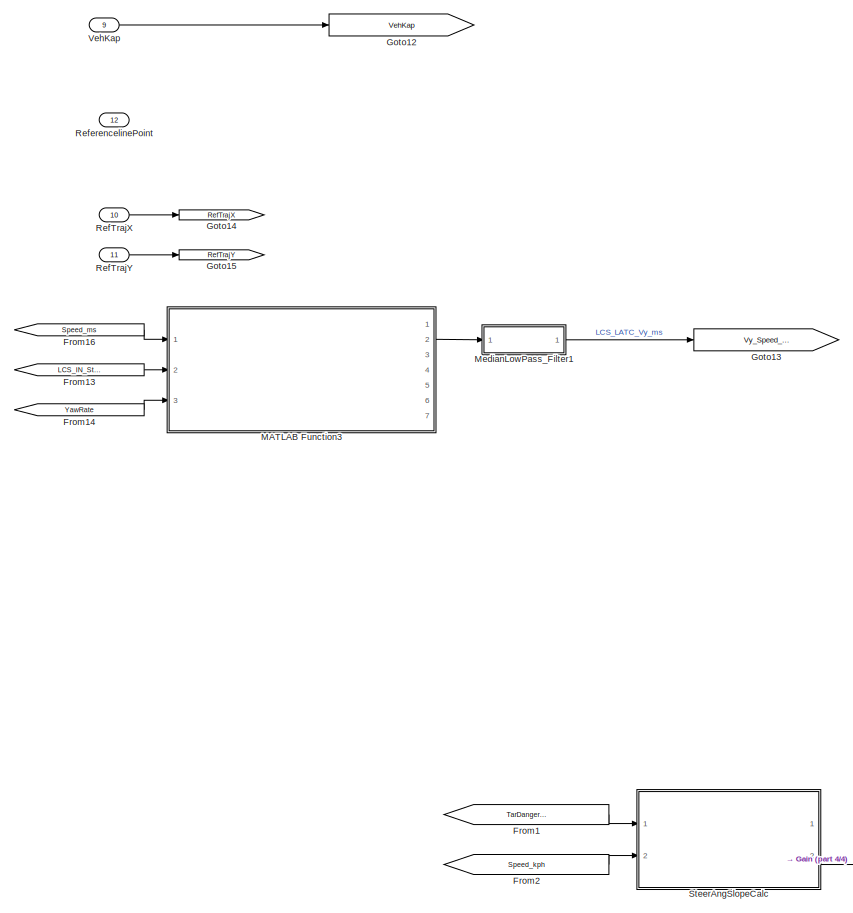
[diagram: LCS_Angle1/Controller/TargetAngleCalc - part 3/4, bottom left region]
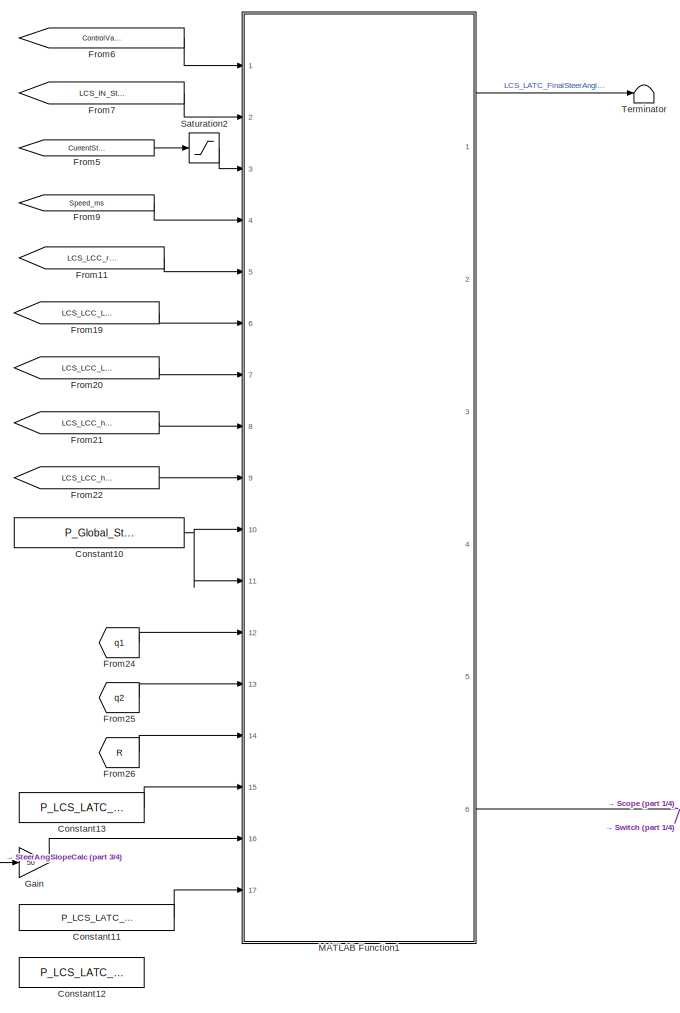
[diagram: LCS_Angle1/Controller/TargetAngleCalc - part 4/4, bottom center region]
BLOCK [SubSystem] LCS_Angle1/Controller/TargetAngleCalc
  Ports = [12, 1]
  RequestExecContextInheritance = off
BLOCK [Lookup_n-D] LCS_Angle1/Controller/TargetAngleCalc/2-D Lookup Table
  BreakpointsForDimension1 = P_LCS_Curvature_bp
  BreakpointsForDimension2 = P_LCS_VehicleSpd_TabX_Kph
  InputPortMap = u0,u1
  InternalRulePriority = Speed
  Ports = [2, 1]
  RndMeth = Simplest
  Table = P_LCS_LATC_MatrixQ1_st
BLOCK [Lookup_n-D] LCS_Angle1/Controller/TargetAngleCalc/2-D Lookup Table1
  BreakpointsForDimension1 = P_LCS_Curvature_bp
  BreakpointsForDimension2 = P_LCS_VehicleSpd_TabX_Kph
  InputPortMap = u0,u1
  InternalRulePriority = Speed
  Ports = [2, 1]
  RndMeth = Simplest
  Table = P_LCS_LATC_MatrixQ3_st
BLOCK [Lookup_n-D] LCS_Angle1/Controller/TargetAngleCalc/2-D Lookup Table2
  BreakpointsForDimension1 = P_LCS_Curvature_bp
  BreakpointsForDimension2 = P_LCS_VehicleSpd_TabX_Kph
  InputPortMap = u0,u1
  InternalRulePriority = Speed
  Ports = [2, 1]
  RndMeth = Simplest
  Table = P_LCS_LATC_MatrixR_st
BLOCK [BusSelector] LCS_Angle1/Controller/TargetAngleCalc/Bus Selector
  OutputSignals = LCS_Spd_ms,LCS_DisplaySpd_kph
  Ports = [1, 2]
BLOCK [BusSelector] LCS_Angle1/Controller/TargetAngleCalc/Bus Selector1
  OutputSignals = LCS_LATC_lookahead_Pt_Kappa,LCS_LATC_Project_Pt_Kappa,LCS_LATC_lat_error_lookahead,LCS_LATC_lat_error,LCS_LATC_lat_error_rate_lookahead,LCS_LATC_lat_error_rate,LCS_LATC_heading_error_lookahead,LCS_LATC_heading_error,LCS_LATC_heading_error_rate_lookahead,LCS_LATC_heading_error_rate
  Ports = [1, 10]
BLOCK [Constant] LCS_Angle1/Controller/TargetAngleCalc/Constant
  OutDataTypeStr = single
  Value = 0.2
BLOCK [Constant] LCS_Angle1/Controller/TargetAngleCalc/Constant1
  OutDataTypeStr = single
  Value = P_LCS_LATC_Du_Max
BLOCK [Constant] LCS_Angle1/Controller/TargetAngleCalc/Constant10
  OutDataTypeStr = single
  Value = P_Global_SteeringAngleRatio
BLOCK [Constant] LCS_Angle1/Controller/TargetAngleCalc/Constant11
  OutDataTypeStr = single
  Value = P_LCS_LATC_SoftConstWeight
BLOCK [Constant] LCS_Angle1/Controller/TargetAngleCalc/Constant12
  Commented = on
  OutDataTypeStr = single
  Value = P_LCS_LATC_Du_Max
BLOCK [Constant] LCS_Angle1/Controller/TargetAngleCalc/Constant13
  OutDataTypeStr = single
  Value = P_LCS_LATC_U_Max
BLOCK [Constant] LCS_Angle1/Controller/TargetAngleCalc/Constant14
  OutDataTypeStr = single
  Value = P_LCS_LATC_MPC_SW
BLOCK [Constant] LCS_Angle1/Controller/TargetAngleCalc/Constant15
  OutDataTypeStr = single
  Value = P_LCS_LATC_PreView_SW
BLOCK [Constant] LCS_Angle1/Controller/TargetAngleCalc/Constant16
  OutDataTypeStr = single
  Value = 10
BLOCK [Constant] LCS_Angle1/Controller/TargetAngleCalc/Constant17
  OutDataTypeStr = single
  Value = 20
BLOCK [Constant] LCS_Angle1/Controller/TargetAngleCalc/Constant19
  OutDataTypeStr = single
  Value = 0
BLOCK [Constant] LCS_Angle1/Controller/TargetAngleCalc/Constant2
  OutDataTypeStr = single
  Value = P_LCS_LATC_Max_Phi
BLOCK [Constant] LCS_Angle1/Controller/TargetAngleCalc/Constant3
  OutDataTypeStr = single
  Value = P_LCS_LATC_Max_y
BLOCK [Constant] LCS_Angle1/Controller/TargetAngleCalc/Constant4
  OutDataTypeStr = single
  Value = P_LCS_LATC_U_Max
BLOCK [Constant] LCS_Angle1/Controller/TargetAngleCalc/Constant5
  OutDataTypeStr = single
  Value = P_LCS_LATC_Max_LatAcc
BLOCK [Constant] LCS_Angle1/Controller/TargetAngleCalc/Constant6
  OutDataTypeStr = single
  Value = P_Global_SteeringAngleRatio
BLOCK [Constant] LCS_Angle1/Controller/TargetAngleCalc/Constant7
  AttributesFormatString = %<Description>
  Description = 0
  OutDataTypeStr = uint8
  Value = P_LCS_Current_Offset_Test_SW
BLOCK [Constant] LCS_Angle1/Controller/TargetAngleCalc/Constant8
  AttributesFormatString = %<Description>
  Description = 0
  OutDataTypeStr = single
  Value = P_LCS_Current_Offset_Test_Value
BLOCK [Constant] LCS_Angle1/Controller/TargetAngleCalc/Constant9
  OutDataTypeStr = single
  Value = P_LCS_LATC_SoftConstWeight
BLOCK [Inport] LCS_Angle1/Controller/TargetAngleCalc/ControlValid
BLOCK [Inport] LCS_Angle1/Controller/TargetAngleCalc/CurrentSteerAngleOffset
  Port = 7
BLOCK [From] LCS_Angle1/Controller/TargetAngleCalc/From
  GotoTag = RefTrajX
BLOCK [From] LCS_Angle1/Controller/TargetAngleCalc/From1
  GotoTag = TarDangerLevel
BLOCK [From] LCS_Angle1/Controller/TargetAngleCalc/From10
  GotoTag = Speed_ms
BLOCK [From] LCS_Angle1/Controller/TargetAngleCalc/From11
  GotoTag = LCS_LCC_ref_curve
BLOCK [From] LCS_Angle1/Controller/TargetAngleCalc/From12
  GotoTag = YawRate
BLOCK [From] LCS_Angle1/Controller/TargetAngleCalc/From13
  GotoTag = LCS_IN_SteerAngle_deg
BLOCK [From] LCS_Angle1/Controller/TargetAngleCalc/From14
  GotoTag = YawRate
BLOCK [From] LCS_Angle1/Controller/TargetAngleCalc/From15
  GotoTag = CurrentSteerAngleOffset
BLOCK [From] LCS_Angle1/Controller/TargetAngleCalc/From16
  GotoTag = Speed_ms
BLOCK [From] LCS_Angle1/Controller/TargetAngleCalc/From17
  GotoTag = Vy_Speed_ms
BLOCK [From] LCS_Angle1/Controller/TargetAngleCalc/From18
  GotoTag = Speed_kph
BLOCK [From] LCS_Angle1/Controller/TargetAngleCalc/From19
  GotoTag = LCS_LCC_Later_error
BLOCK [From] LCS_Angle1/Controller/TargetAngleCalc/From2
  GotoTag = Speed_kph
BLOCK [From] LCS_Angle1/Controller/TargetAngleCalc/From20
  GotoTag = LCS_LCC_Later_error_rate
BLOCK [From] LCS_Angle1/Controller/TargetAngleCalc/From21
  GotoTag = LCS_LCC_heading_error
BLOCK [From] LCS_Angle1/Controller/TargetAngleCalc/From22
  GotoTag = LCS_LCC_heading_error_rate
BLOCK [From] LCS_Angle1/Controller/TargetAngleCalc/From24
  GotoTag = q1
BLOCK [From] LCS_Angle1/Controller/TargetAngleCalc/From25
  GotoTag = q2
BLOCK [From] LCS_Angle1/Controller/TargetAngleCalc/From26
  GotoTag = R
BLOCK [From] LCS_Angle1/Controller/TargetAngleCalc/From27
  GotoTag = LCS_LCC_ref_curve
BLOCK [From] LCS_Angle1/Controller/TargetAngleCalc/From3
  GotoTag = ControlValid
BLOCK [From] LCS_Angle1/Controller/TargetAngleCalc/From4
  GotoTag = RefTrajY
BLOCK [From] LCS_Angle1/Controller/TargetAngleCalc/From5
  GotoTag = CurrentSteerAngleOffset
BLOCK [From] LCS_Angle1/Controller/TargetAngleCalc/From6
  GotoTag = ControlValid
BLOCK [From] LCS_Angle1/Controller/TargetAngleCalc/From7
  GotoTag = LCS_IN_SteerAngle_deg
BLOCK [From] LCS_Angle1/Controller/TargetAngleCalc/From8
  GotoTag = LCS_IN_SteerAngle_deg
BLOCK [From] LCS_Angle1/Controller/TargetAngleCalc/From9
  GotoTag = Speed_ms
BLOCK [Gain] LCS_Angle1/Controller/TargetAngleCalc/Gain
  Gain = 50
BLOCK [Goto] LCS_Angle1/Controller/TargetAngleCalc/Goto
  GotoTag = ControlValid
BLOCK [Goto] LCS_Angle1/Controller/TargetAngleCalc/Goto1
  GotoTag = LCS_IN_SteerAngle_deg
BLOCK [Goto] LCS_Angle1/Controller/TargetAngleCalc/Goto10
  GotoTag = YawRate
BLOCK [Goto] LCS_Angle1/Controller/TargetAngleCalc/Goto11
  GotoTag = TarDangerLevel
BLOCK [Goto] LCS_Angle1/Controller/TargetAngleCalc/Goto12
  GotoTag = VehKap
BLOCK [Goto] LCS_Angle1/Controller/TargetAngleCalc/Goto13
  GotoTag = Vy_Speed_ms
BLOCK [Goto] LCS_Angle1/Controller/TargetAngleCalc/Goto14
  GotoTag = RefTrajX
BLOCK [Goto] LCS_Angle1/Controller/TargetAngleCalc/Goto15
  GotoTag = RefTrajY
BLOCK [Goto] LCS_Angle1/Controller/TargetAngleCalc/Goto16
  GotoTag = q1
BLOCK [Goto] LCS_Angle1/Controller/TargetAngleCalc/Goto17
  GotoTag = q2
BLOCK [Goto] LCS_Angle1/Controller/TargetAngleCalc/Goto18
  GotoTag = R
BLOCK [Goto] LCS_Angle1/Controller/TargetAngleCalc/Goto2
  GotoTag = Speed_ms
BLOCK [Goto] LCS_Angle1/Controller/TargetAngleCalc/Goto3
  GotoTag = Speed_kph
BLOCK [Goto] LCS_Angle1/Controller/TargetAngleCalc/Goto4
  GotoTag = LCS_LCC_ref_curve
BLOCK [Goto] LCS_Angle1/Controller/TargetAngleCalc/Goto5
  GotoTag = CurrentSteerAngleOffset
BLOCK [Goto] LCS_Angle1/Controller/TargetAngleCalc/Goto6
  GotoTag = LCS_LCC_Later_error
BLOCK [Goto] LCS_Angle1/Controller/TargetAngleCalc/Goto7
  GotoTag = LCS_LCC_Later_error_rate
BLOCK [Goto] LCS_Angle1/Controller/TargetAngleCalc/Goto8
  GotoTag = LCS_LCC_heading_error
BLOCK [Goto] LCS_Angle1/Controller/TargetAngleCalc/Goto9
  GotoTag = LCS_LCC_heading_error_rate
BLOCK [Inport] LCS_Angle1/Controller/TargetAngleCalc/LCS_SteerAngle_deg
  Port = 4
BLOCK [Inport] LCS_Angle1/Controller/TargetAngleCalc/LateralStateError
  Port = 5
BLOCK [SubSystem] LCS_Angle1/Controller/TargetAngleCalc/MATLAB Function1
  ErrorFcn = Stateflow.Translate.translate
  PermitHierarchicalResolution = ExplicitOnly
  Ports = [17, 6]
  RequestExecContextInheritance = off
  SFBlockType = MATLAB Function
  TreatAsAtomicUnit = on
BLOCK [Demux] LCS_Angle1/Controller/TargetAngleCalc/MATLAB Function1/ Demux 
  Outputs = 1
  Ports = [1, 1]
BLOCK [S-Function] LCS_Angle1/Controller/TargetAngleCalc/MATLAB Function1/ SFunction 
  EnableBusSupport = on
  FunctionName = sf_sfun
  PortCounts = [17 7]
  Ports = [17, 7]
  SFcnIsStateOwnerBlock = off
  SFunctionDeploymentMode = off
  Tag = Stateflow S-Function 13
BLOCK [Terminator] LCS_Angle1/Controller/TargetAngleCalc/MATLAB Function1/ Terminator 
BLOCK [Inport] LCS_Angle1/Controller/TargetAngleCalc/MATLAB Function1/ControlValid
BLOCK [Inport] LCS_Angle1/Controller/TargetAngleCalc/MATLAB Function1/CurrentSteerAngleOffset
  Port = 3
BLOCK [Inport] LCS_Angle1/Controller/TargetAngleCalc/MATLAB Function1/Du_Max
  Port = 16
BLOCK [Outport] LCS_Angle1/Controller/TargetAngleCalc/MATLAB Function1/Final_steer_angle_cmd
BLOCK [Outport] LCS_Angle1/Controller/TargetAngleCalc/MATLAB Function1/HeadingErrorRate_contribution
  Port = 5
BLOCK [Outport] LCS_Angle1/Controller/TargetAngleCalc/MATLAB Function1/HeadingError_contribution
  Port = 4
BLOCK [Outport] LCS_Angle1/Controller/TargetAngleCalc/MATLAB Function1/LatErrorRate_contribution
  Port = 3
BLOCK [Outport] LCS_Angle1/Controller/TargetAngleCalc/MATLAB Function1/LatError_contribution
  Port = 2
BLOCK [Inport] LCS_Angle1/Controller/TargetAngleCalc/MATLAB Function1/Left_steer_ratio
  Port = 10
BLOCK [Inport] LCS_Angle1/Controller/TargetAngleCalc/MATLAB Function1/Matrix_R
  Port = 14
BLOCK [Inport] LCS_Angle1/Controller/TargetAngleCalc/MATLAB Function1/Matrix_q1
  Port = 12
BLOCK [Inport] LCS_Angle1/Controller/TargetAngleCalc/MATLAB Function1/Matrix_q3
  Port = 13
BLOCK [Inport] LCS_Angle1/Controller/TargetAngleCalc/MATLAB Function1/Right_steer_ratio
  Port = 11
BLOCK [Inport] LCS_Angle1/Controller/TargetAngleCalc/MATLAB Function1/SoftConstWeight
  Port = 17
BLOCK [Inport] LCS_Angle1/Controller/TargetAngleCalc/MATLAB Function1/SteerAngle
  Port = 2
BLOCK [Inport] LCS_Angle1/Controller/TargetAngleCalc/MATLAB Function1/U_Max
  Port = 15
BLOCK [Inport] LCS_Angle1/Controller/TargetAngleCalc/MATLAB Function1/Veh_Speed
  Port = 4
BLOCK [Inport] LCS_Angle1/Controller/TargetAngleCalc/MATLAB Function1/heading_error
  Port = 8
BLOCK [Inport] LCS_Angle1/Controller/TargetAngleCalc/MATLAB Function1/heading_error_rate
  Port = 9
BLOCK [Inport] LCS_Angle1/Controller/TargetAngleCalc/MATLAB Function1/lateral_error
  Port = 6
BLOCK [Inport] LCS_Angle1/Controller/TargetAngleCalc/MATLAB Function1/lateral_error_rate
  Port = 7
BLOCK [Inport] LCS_Angle1/Controller/TargetAngleCalc/MATLAB Function1/ref_curvature
  Port = 5
BLOCK [Outport] LCS_Angle1/Controller/TargetAngleCalc/MATLAB Function1/steer_angle_cmd
  Port = 6
BLOCK [SubSystem] LCS_Angle1/Controller/TargetAngleCalc/MATLAB Function3
  ErrorFcn = Stateflow.Translate.translate
  PermitHierarchicalResolution = ExplicitOnly
  Ports = [3, 7]
  RequestExecContextInheritance = off
  SFBlockType = MATLAB Function
  TreatAsAtomicUnit = on
BLOCK [Demux] LCS_Angle1/Controller/TargetAngleCalc/MATLAB Function3/ Demux 
  Outputs = 1
  Ports = [1, 1]
BLOCK [S-Function] LCS_Angle1/Controller/TargetAngleCalc/MATLAB Function3/ SFunction 
  EnableBusSupport = on
  FunctionName = sf_sfun
  PortCounts = [3 8]
  Ports = [3, 8]
  SFcnIsStateOwnerBlock = off
  SFunctionDeploymentMode = off
  Tag = Stateflow S-Function 15
BLOCK [Terminator] LCS_Angle1/Controller/TargetAngleCalc/MATLAB Function3/ Terminator 
BLOCK [Outport] LCS_Angle1/Controller/TargetAngleCalc/MATLAB Function3/CharSpd
  Port = 5
BLOCK [Outport] LCS_Angle1/Controller/TargetAngleCalc/MATLAB Function3/Critical_Spd
  Port = 4
BLOCK [Inport] LCS_Angle1/Controller/TargetAngleCalc/MATLAB Function3/Speed_ms
BLOCK [Outport] LCS_Angle1/Controller/TargetAngleCalc/MATLAB Function3/SteerChar
  Port = 6
BLOCK [Inport] LCS_Angle1/Controller/TargetAngleCalc/MATLAB Function3/SteerWheelAngle
  Port = 2
BLOCK [Outport] LCS_Angle1/Controller/TargetAngleCalc/MATLAB Function3/Vch_Cal
  Port = 7
BLOCK [Outport] LCS_Angle1/Controller/TargetAngleCalc/MATLAB Function3/Vy_SteerAngle_Kv
  Port = 2
BLOCK [Outport] LCS_Angle1/Controller/TargetAngleCalc/MATLAB Function3/Vy_SteerAngle_Vch
BLOCK [Outport] LCS_Angle1/Controller/TargetAngleCalc/MATLAB Function3/Vy_YawRate
  Port = 3
BLOCK [Inport] LCS_Angle1/Controller/TargetAngleCalc/MATLAB Function3/YawRate
  Port = 3
BLOCK [SubSystem] LCS_Angle1/Controller/TargetAngleCalc/MedianLowPass_Filter
  Ports = [1, 1]
  RequestExecContextInheritance = off
BLOCK [Outport] LCS_Angle1/Controller/TargetAngleCalc/MedianLowPass_Filter/FilterValue
BLOCK [SubSystem] LCS_Angle1/Controller/TargetAngleCalc/MedianLowPass_Filter/LP
  Ports = [1, 1]
  RequestExecContextInheritance = off
BLOCK [Constant] LCS_Angle1/Controller/TargetAngleCalc/MedianLowPass_Filter/LP/Constant1
  OutDataTypeStr = single
  Value = P_LCS_LATC_TarAngleLP_Time
BLOCK [Constant] LCS_Angle1/Controller/TargetAngleCalc/MedianLowPass_Filter/LP/Constant3
  OutDataTypeStr = single
  Value = 0.02
BLOCK [Outport] LCS_Angle1/Controller/TargetAngleCalc/MedianLowPass_Filter/LP/Out
BLOCK [Product] LCS_Angle1/Controller/TargetAngleCalc/MedianLowPass_Filter/LP/Product7
  Inputs = */
  Ports = [2, 1]
  RndMeth = Zero
BLOCK [Product] LCS_Angle1/Controller/TargetAngleCalc/MedianLowPass_Filter/LP/Product8
  Ports = [2, 1]
  RndMeth = Zero
BLOCK [Inport] LCS_Angle1/Controller/TargetAngleCalc/MedianLowPass_Filter/LP/Raw
BLOCK [Sum] LCS_Angle1/Controller/TargetAngleCalc/MedianLowPass_Filter/LP/Sum14
  IconShape = rectangular
  Ports = [2, 1]
BLOCK [Sum] LCS_Angle1/Controller/TargetAngleCalc/MedianLowPass_Filter/LP/Sum9
  IconShape = rectangular
  Inputs = +-
  Ports = [2, 1]
BLOCK [UnitDelay] LCS_Angle1/Controller/TargetAngleCalc/MedianLowPass_Filter/LP/Unit Delay
  HasFrameUpgradeWarning = on
  SampleTime = -1
BLOCK [SubSystem] LCS_Angle1/Controller/TargetAngleCalc/MedianLowPass_Filter/Median_Filter
  Commented = on
  Ports = [1, 1]
  RequestExecContextInheritance = off
BLOCK [Sum] LCS_Angle1/Controller/TargetAngleCalc/MedianLowPass_Filter/Median_Filter/Add
  IconShape = rectangular
  Inputs = +-
  Ports = [2, 1]
BLOCK [Constant] LCS_Angle1/Controller/TargetAngleCalc/MedianLowPass_Filter/Median_Filter/Constant
  OutDataTypeStr = single
  Value = 2
BLOCK [Constant] LCS_Angle1/Controller/TargetAngleCalc/MedianLowPass_Filter/Median_Filter/Constant11
  OutDataTypeStr = single
  Value = P_LCS_LATC_TarAngleFliterWindowSize
BLOCK [Reference] LCS_Angle1/Controller/TargetAngleCalc/MedianLowPass_Filter/Median_Filter/Delay Line  REF=dspbuff3/Delay Line
  Ports = [1, 1]
  SourceBlock = dspbuff3/Delay Line
  SourceProductBaseCode = DS
  SourceType = Delay Line
  UserDataPersistent = on
BLOCK [Product] LCS_Angle1/Controller/TargetAngleCalc/MedianLowPass_Filter/Median_Filter/Divide1
  Inputs = */
  Ports = [2, 1]
BLOCK [Inport] LCS_Angle1/Controller/TargetAngleCalc/MedianLowPass_Filter/Median_Filter/In
BLOCK [MinMax] LCS_Angle1/Controller/TargetAngleCalc/MedianLowPass_Filter/Median_Filter/Max of Elements1
  Function = max
  Ports = [1, 1]
BLOCK [MinMax] LCS_Angle1/Controller/TargetAngleCalc/MedianLowPass_Filter/Median_Filter/MinMax2
  Ports = [1, 1]
BLOCK [Sum] LCS_Angle1/Controller/TargetAngleCalc/MedianLowPass_Filter/Median_Filter/Minus1
  IconShape = rectangular
  Inputs = --+
  Ports = [3, 1]
BLOCK [Outport] LCS_Angle1/Controller/TargetAngleCalc/MedianLowPass_Filter/Median_Filter/Out
BLOCK [Sum] LCS_Angle1/Controller/TargetAngleCalc/MedianLowPass_Filter/Median_Filter/Sum of Elements1
  IconShape = rectangular
  Inputs = +
  Ports = [1, 1]
BLOCK [Inport] LCS_Angle1/Controller/TargetAngleCalc/MedianLowPass_Filter/Value
BLOCK [SubSystem] LCS_Angle1/Controller/TargetAngleCalc/MedianLowPass_Filter1
  Ports = [1, 1]
  RequestExecContextInheritance = off
BLOCK [Outport] LCS_Angle1/Controller/TargetAngleCalc/MedianLowPass_Filter1/FilterValue
BLOCK [SubSystem] LCS_Angle1/Controller/TargetAngleCalc/MedianLowPass_Filter1/LP
  Ports = [1, 1]
  RequestExecContextInheritance = off
BLOCK [Constant] LCS_Angle1/Controller/TargetAngleCalc/MedianLowPass_Filter1/LP/Constant1
  OutDataTypeStr = single
  Value = 0.02
BLOCK [Constant] LCS_Angle1/Controller/TargetAngleCalc/MedianLowPass_Filter1/LP/Constant3
  OutDataTypeStr = single
  Value = 0.02
BLOCK [Outport] LCS_Angle1/Controller/TargetAngleCalc/MedianLowPass_Filter1/LP/Out
BLOCK [Product] LCS_Angle1/Controller/TargetAngleCalc/MedianLowPass_Filter1/LP/Product7
  Inputs = */
  Ports = [2, 1]
  RndMeth = Zero
BLOCK [Product] LCS_Angle1/Controller/TargetAngleCalc/MedianLowPass_Filter1/LP/Product8
  Ports = [2, 1]
  RndMeth = Zero
BLOCK [Inport] LCS_Angle1/Controller/TargetAngleCalc/MedianLowPass_Filter1/LP/Raw
BLOCK [Sum] LCS_Angle1/Controller/TargetAngleCalc/MedianLowPass_Filter1/LP/Sum14
  IconShape = rectangular
  Ports = [2, 1]
BLOCK [Sum] LCS_Angle1/Controller/TargetAngleCalc/MedianLowPass_Filter1/LP/Sum9
  IconShape = rectangular
  Inputs = +-
  Ports = [2, 1]
BLOCK [UnitDelay] LCS_Angle1/Controller/TargetAngleCalc/MedianLowPass_Filter1/LP/Unit Delay
  HasFrameUpgradeWarning = on
  SampleTime = -1
BLOCK [SubSystem] LCS_Angle1/Controller/TargetAngleCalc/MedianLowPass_Filter1/Median_Filter
  Commented = on
  Ports = [1, 1]
  RequestExecContextInheritance = off
BLOCK [Sum] LCS_Angle1/Controller/TargetAngleCalc/MedianLowPass_Filter1/Median_Filter/Add
  IconShape = rectangular
  Inputs = +-
  Ports = [2, 1]
BLOCK [Constant] LCS_Angle1/Controller/TargetAngleCalc/MedianLowPass_Filter1/Median_Filter/Constant
  OutDataTypeStr = single
  Value = 2
BLOCK [Constant] LCS_Angle1/Controller/TargetAngleCalc/MedianLowPass_Filter1/Median_Filter/Constant11
  OutDataTypeStr = single
  Value = P_LCS_LATC_TarAngleFliterWindowSize
BLOCK [Reference] LCS_Angle1/Controller/TargetAngleCalc/MedianLowPass_Filter1/Median_Filter/Delay Line  REF=dspbuff3/Delay Line
  Ports = [1, 1]
  SourceBlock = dspbuff3/Delay Line
  SourceProductBaseCode = DS
  SourceType = Delay Line
  UserDataPersistent = on
BLOCK [Product] LCS_Angle1/Controller/TargetAngleCalc/MedianLowPass_Filter1/Median_Filter/Divide1
  Inputs = */
  Ports = [2, 1]
BLOCK [Inport] LCS_Angle1/Controller/TargetAngleCalc/MedianLowPass_Filter1/Median_Filter/In
BLOCK [MinMax] LCS_Angle1/Controller/TargetAngleCalc/MedianLowPass_Filter1/Median_Filter/Max of Elements1
  Function = max
  Ports = [1, 1]
BLOCK [MinMax] LCS_Angle1/Controller/TargetAngleCalc/MedianLowPass_Filter1/Median_Filter/MinMax2
  Ports = [1, 1]
BLOCK [Sum] LCS_Angle1/Controller/TargetAngleCalc/MedianLowPass_Filter1/Median_Filter/Minus1
  IconShape = rectangular
  Inputs = --+
  Ports = [3, 1]
BLOCK [Outport] LCS_Angle1/Controller/TargetAngleCalc/MedianLowPass_Filter1/Median_Filter/Out
BLOCK [Sum] LCS_Angle1/Controller/TargetAngleCalc/MedianLowPass_Filter1/Median_Filter/Sum of Elements1
  IconShape = rectangular
  Inputs = +
  Ports = [1, 1]
BLOCK [Inport] LCS_Angle1/Controller/TargetAngleCalc/MedianLowPass_Filter1/Value
BLOCK [Inport] LCS_Angle1/Controller/TargetAngleCalc/RefTrajX
  Port = 10
BLOCK [Inport] LCS_Angle1/Controller/TargetAngleCalc/RefTrajY
  Port = 11
BLOCK [Inport] LCS_Angle1/Controller/TargetAngleCalc/ReferencelinePoint
  Port = 12
BLOCK [Saturate] LCS_Angle1/Controller/TargetAngleCalc/Saturation1
  LowerLimit = -8
  OutDataTypeStr = single
  UpperLimit = 8
BLOCK [Saturate] LCS_Angle1/Controller/TargetAngleCalc/Saturation2
  LowerLimit = -8
  OutDataTypeStr = single
  UpperLimit = 8
BLOCK [Scope] LCS_Angle1/Controller/TargetAngleCalc/Scope
  Floating = off
  NumInputPorts = 2
  Ports = [2]
  ScopeSpecificationString = Simulink.scopes.TimeScopeBlockCfg('CurrentConfiguration', extmgr.ConfigurationSet(extmgr.Configuration('Core','General UI',true),extmgr.Configuration('Core','Source UI',true),extmgr.Configuration('Sources','WiredSimulink',true,'DataLoggingVariableName','ScopeData1'),extmgr.Configuration('Visuals','Time Domain',true,'SerializedDisplays',{struct('MinYLimReal','-14.4216','MaxYLimReal','7.48108','YLab...<+1507ch>
BLOCK [SubSystem] LCS_Angle1/Controller/TargetAngleCalc/SteerAngSlopeCalc
  Ports = [2, 2]
  RequestExecContextInheritance = off
BLOCK [Constant] LCS_Angle1/Controller/TargetAngleCalc/SteerAngSlopeCalc/Constant
  OutDataTypeStr = single
  Value = 0.4
BLOCK [Constant] LCS_Angle1/Controller/TargetAngleCalc/SteerAngSlopeCalc/Constant1
  OutDataTypeStr = single
  Value = 1.5
BLOCK [Constant] LCS_Angle1/Controller/TargetAngleCalc/SteerAngSlopeCalc/Constant2
  OutDataTypeStr = uint16
  Value = P_LCS_LATC_StateHoldTime_st
BLOCK [Constant] LCS_Angle1/Controller/TargetAngleCalc/SteerAngSlopeCalc/Constant3
  Value = 0.02
BLOCK [Constant] LCS_Angle1/Controller/TargetAngleCalc/SteerAngSlopeCalc/Constant4
  OutDataTypeStr = single
  Value = 0.4
BLOCK [Constant] LCS_Angle1/Controller/TargetAngleCalc/SteerAngSlopeCalc/Constant5
  OutDataTypeStr = single
  Value = 1.5
BLOCK [DataTypeConversion] LCS_Angle1/Controller/TargetAngleCalc/SteerAngSlopeCalc/Data Type Conversion
  OutDataTypeStr = single
  RndMeth = Floor
  SaturateOnIntegerOverflow = off
BLOCK [DataTypeConversion] LCS_Angle1/Controller/TargetAngleCalc/SteerAngSlopeCalc/Data Type Conversion1
  OutDataTypeStr = single
  RndMeth = Floor
  SaturateOnIntegerOverflow = off
BLOCK [Lookup_n-D] LCS_Angle1/Controller/TargetAngleCalc/SteerAngSlopeCalc/ELK Active
  BreakpointsForDimension1 = P_LCS_VehicleSpd_TabX_Kph
  ExtrapMethod = Clip
  InputPortMap = u0
  InternalRulePriority = Speed
  NumberOfTableDimensions = 1
  Ports = [1, 1]
  RndMeth = Simplest
  Table = P_LCS_LATC_ELKAngleSlope_ratio
BLOCK [Lookup_n-D] LCS_Angle1/Controller/TargetAngleCalc/SteerAngSlopeCalc/ELK_MaxAy
  BreakpointsForDimension1 = P_LCS_VehicleSpd_TabX_Kph
  ExtrapMethod = Clip
  InputPortMap = u0
  InternalRulePriority = Speed
  NumberOfTableDimensions = 1
  Ports = [1, 1]
  RndMeth = Simplest
  Table = P_LCS_LATC_ELKMaxLatAcc_ms2
BLOCK [Lookup_n-D] LCS_Angle1/Controller/TargetAngleCalc/SteerAngSlopeCalc/ESS AES Active
  BreakpointsForDimension1 = P_LCS_VehicleSpd_TabX_Kph
  ExtrapMethod = Clip
  InputPortMap = u0
  InternalRulePriority = Speed
  NumberOfTableDimensions = 1
  Ports = [1, 1]
  RndMeth = Simplest
  Table = P_LCS_LATC_ESSAngleSlope_ratio
BLOCK [Lookup_n-D] LCS_Angle1/Controller/TargetAngleCalc/SteerAngSlopeCalc/ESS AES_MaxAy
  BreakpointsForDimension1 = P_LCS_VehicleSpd_TabX_Kph
  ExtrapMethod = Clip
  InputPortMap = u0
  InternalRulePriority = Speed
  NumberOfTableDimensions = 1
  Ports = [1, 1]
  RndMeth = Simplest
  Table = P_LCS_LATC_ESSMaxLatAcc_ms2
BLOCK [From] LCS_Angle1/Controller/TargetAngleCalc/SteerAngSlopeCalc/From1
  GotoTag = HoldTime
BLOCK [Goto] LCS_Angle1/Controller/TargetAngleCalc/SteerAngSlopeCalc/Goto
  GotoTag = HoldTime
BLOCK [Lookup_n-D] LCS_Angle1/Controller/TargetAngleCalc/SteerAngSlopeCalc/LC Cancel
  BreakpointsForDimension1 = P_LCS_VehicleSpd_TabX_Kph
  ExtrapMethod = Clip
  InputPortMap = u0
  InternalRulePriority = Speed
  NumberOfTableDimensions = 1
  Ports = [1, 1]
  RndMeth = Simplest
  Table = P_LCS_LATC_LCAngleSlope_ratio
BLOCK [Lookup_n-D] LCS_Angle1/Controller/TargetAngleCalc/SteerAngSlopeCalc/LCK//IE TO LC_Eco
  BreakpointsForDimension1 = P_LCS_VehicleSpd_TabX_Kph
  ExtrapMethod = Clip
  InputPortMap = u0
  InternalRulePriority = Speed
  NumberOfTableDimensions = 1
  Ports = [1, 1]
  RndMeth = Simplest
  Table = P_LCS_LATC_LCEcoAngleSlope_ratio
BLOCK [Lookup_n-D] LCS_Angle1/Controller/TargetAngleCalc/SteerAngSlopeCalc/LCK//IE TO LC_Nomal
  BreakpointsForDimension1 = P_LCS_VehicleSpd_TabX_Kph
  ExtrapMethod = Clip
  InputPortMap = u0
  InternalRulePriority = Speed
  NumberOfTableDimensions = 1
  Ports = [1, 1]
  RndMeth = Simplest
  Table = P_LCS_LATC_LCNormalAngleSlope_ratio
BLOCK [Lookup_n-D] LCS_Angle1/Controller/TargetAngleCalc/SteerAngSlopeCalc/LCK//IE TO LC_Sport
  BreakpointsForDimension1 = P_LCS_VehicleSpd_TabX_Kph
  ExtrapMethod = Clip
  InputPortMap = u0
  InternalRulePriority = Speed
  NumberOfTableDimensions = 1
  Ports = [1, 1]
  RndMeth = Simplest
  Table = P_LCS_LATC_LCSportAngleSlope_ratio
BLOCK [Lookup_n-D] LCS_Angle1/Controller/TargetAngleCalc/SteerAngSlopeCalc/LCKIEMaxAy
  BreakpointsForDimension1 = P_LCS_VehicleSpd_TabX_Kph
  ExtrapMethod = Clip
  InputPortMap = u0
  InternalRulePriority = Speed
  NumberOfTableDimensions = 1
  Ports = [1, 1]
  RndMeth = Simplest
  Table = P_LCS_LATC_LCKIEMaxLatAcc_ms2
BLOCK [Lookup_n-D] LCS_Angle1/Controller/TargetAngleCalc/SteerAngSlopeCalc/LCKIE_Active
  BreakpointsForDimension1 = P_LCS_VehicleSpd_TabX_Kph
  ExtrapMethod = Clip
  InputPortMap = u0
  InternalRulePriority = Speed
  NumberOfTableDimensions = 1
  Ports = [1, 1]
  RndMeth = Simplest
  Table = P_LCS_LATC_LCKIEAngleSlope_ratio
BLOCK [Lookup_n-D] LCS_Angle1/Controller/TargetAngleCalc/SteerAngSlopeCalc/LCKMaxAy
  BreakpointsForDimension1 = P_LCS_VehicleSpd_TabX_Kph
  ExtrapMethod = Clip
  InputPortMap = u0
  InternalRulePriority = Speed
  NumberOfTableDimensions = 1
  Ports = [1, 1]
  RndMeth = Simplest
  Table = P_LCS_LATC_LCKMaxLatAcc_ms2
BLOCK [Lookup_n-D] LCS_Angle1/Controller/TargetAngleCalc/SteerAngSlopeCalc/LCNomal_MaxAy
  BreakpointsForDimension1 = P_LCS_VehicleSpd_TabX_Kph
  ExtrapMethod = Clip
  InputPortMap = u0
  InternalRulePriority = Speed
  NumberOfTableDimensions = 1
  Ports = [1, 1]
  RndMeth = Simplest
  Table = P_LCS_LATC_LCNormalMaxLatAcc_ms2
BLOCK [Lookup_n-D] LCS_Angle1/Controller/TargetAngleCalc/SteerAngSlopeCalc/LC_CancelMaxAy
  BreakpointsForDimension1 = P_LCS_VehicleSpd_TabX_Kph
  ExtrapMethod = Clip
  InputPortMap = u0
  InternalRulePriority = Speed
  NumberOfTableDimensions = 1
  Ports = [1, 1]
  RndMeth = Simplest
  Table = P_LCS_LATC_LCCancleMaxLatAcc_ms2
BLOCK [Lookup_n-D] LCS_Angle1/Controller/TargetAngleCalc/SteerAngSlopeCalc/LC_Eco_MaxAy
  BreakpointsForDimension1 = P_LCS_VehicleSpd_TabX_Kph
  ExtrapMethod = Clip
  InputPortMap = u0
  InternalRulePriority = Speed
  NumberOfTableDimensions = 1
  Ports = [1, 1]
  RndMeth = Simplest
  Table = P_LCS_LATC_LCEcoMaxLatAcc_ms2
BLOCK [Lookup_n-D] LCS_Angle1/Controller/TargetAngleCalc/SteerAngSlopeCalc/LC_SportMaxAy
  BreakpointsForDimension1 = P_LCS_VehicleSpd_TabX_Kph
  ExtrapMethod = Clip
  InputPortMap = u0
  InternalRulePriority = Speed
  NumberOfTableDimensions = 1
  Ports = [1, 1]
  RndMeth = Simplest
  Table = P_LCS_LATC_LCSportMaxLatAcc_ms2
BLOCK [Lookup_n-D] LCS_Angle1/Controller/TargetAngleCalc/SteerAngSlopeCalc/LKA Active
  BreakpointsForDimension1 = P_LCS_VehicleSpd_TabX_Kph
  ExtrapMethod = Clip
  InputPortMap = u0
  InternalRulePriority = Speed
  NumberOfTableDimensions = 1
  Ports = [1, 1]
  RndMeth = Simplest
  Table = P_LCS_LATC_LKAAngleSlope_ratio
BLOCK [Lookup_n-D] LCS_Angle1/Controller/TargetAngleCalc/SteerAngSlopeCalc/LKA_MaxAy
  BreakpointsForDimension1 = P_LCS_VehicleSpd_TabX_Kph
  ExtrapMethod = Clip
  InputPortMap = u0
  InternalRulePriority = Speed
  NumberOfTableDimensions = 1
  Ports = [1, 1]
  RndMeth = Simplest
  Table = P_LCS_LATC_LKAMaxLatAcc_ms2
BLOCK [SubSystem] LCS_Angle1/Controller/TargetAngleCalc/SteerAngSlopeCalc/MATLAB Function3
  ErrorFcn = Stateflow.Translate.translate
  PermitHierarchicalResolution = ExplicitOnly
  Ports = [5, 2]
  RequestExecContextInheritance = off
  SFBlockType = MATLAB Function
  TreatAsAtomicUnit = on
BLOCK [Demux] LCS_Angle1/Controller/TargetAngleCalc/SteerAngSlopeCalc/MATLAB Function3/ Demux 
  Outputs = 1
  Ports = [1, 1]
BLOCK [S-Function] LCS_Angle1/Controller/TargetAngleCalc/SteerAngSlopeCalc/MATLAB Function3/ SFunction 
  EnableBusSupport = on
  FunctionName = sf_sfun
  PortCounts = [5 3]
  Ports = [5, 3]
  SFcnIsStateOwnerBlock = off
  SFunctionDeploymentMode = off
  Tag = Stateflow S-Function 16
BLOCK [Terminator] LCS_Angle1/Controller/TargetAngleCalc/SteerAngSlopeCalc/MATLAB Function3/ Terminator 
BLOCK [Outport] LCS_Angle1/Controller/TargetAngleCalc/SteerAngSlopeCalc/MATLAB Function3/Cnt
  Port = 2
BLOCK [Inport] LCS_Angle1/Controller/TargetAngleCalc/SteerAngSlopeCalc/MATLAB Function3/CntK1
  Port = 5
BLOCK [Outport] LCS_Angle1/Controller/TargetAngleCalc/SteerAngSlopeCalc/MATLAB Function3/FLg
BLOCK [Inport] LCS_Angle1/Controller/TargetAngleCalc/SteerAngSlopeCalc/MATLAB Function3/FLgK1
  Port = 4
BLOCK [Inport] LCS_Angle1/Controller/TargetAngleCalc/SteerAngSlopeCalc/MATLAB Function3/TarDangerLevel
  Port = 2
BLOCK [Inport] LCS_Angle1/Controller/TargetAngleCalc/SteerAngSlopeCalc/MATLAB Function3/TarDangerLevelK1
  Port = 3
BLOCK [Inport] LCS_Angle1/Controller/TargetAngleCalc/SteerAngSlopeCalc/MATLAB Function3/delytime
BLOCK [Outport] LCS_Angle1/Controller/TargetAngleCalc/SteerAngSlopeCalc/Max_Lateral_Acc
  OutDataTypeStr = single
BLOCK [Merge] LCS_Angle1/Controller/TargetAngleCalc/SteerAngSlopeCalc/Merge
  Ports = [2, 1]
BLOCK [MinMax] LCS_Angle1/Controller/TargetAngleCalc/SteerAngSlopeCalc/Min
  Inputs = 2
  Ports = [2, 1]
BLOCK [MultiPortSwitch] LCS_Angle1/Controller/TargetAngleCalc/SteerAngSlopeCalc/Multiport Switch1
  DataPortOrder = Zero-based contiguous
  InputSameDT = off
  Inputs = 11
  Ports = [12, 1]
  SaturateOnIntegerOverflow = off
  zeroidx = on
BLOCK [MultiPortSwitch] LCS_Angle1/Controller/TargetAngleCalc/SteerAngSlopeCalc/Multiport Switch2
  DataPortOrder = Zero-based contiguous
  InputSameDT = off
  Inputs = 11
  Ports = [12, 1]
  SaturateOnIntegerOverflow = off
  zeroidx = on
BLOCK [Lookup_n-D] LCS_Angle1/Controller/TargetAngleCalc/SteerAngSlopeCalc/No Function 2 LCK
  BreakpointsForDimension1 = P_LCS_VehicleSpd_TabX_Kph
  ExtrapMethod = Clip
  InputPortMap = u0
  InternalRulePriority = Speed
  NumberOfTableDimensions = 1
  Ports = [1, 1]
  RndMeth = Simplest
  Table = P_LCS_LATC_LCKAngleSlope_ratio
BLOCK [Product] LCS_Angle1/Controller/TargetAngleCalc/SteerAngSlopeCalc/Product
  Ports = [2, 1]
BLOCK [Outport] LCS_Angle1/Controller/TargetAngleCalc/SteerAngSlopeCalc/SteerAngSlope
  OutDataTypeStr = single
  Port = 2
BLOCK [SwitchCase] LCS_Angle1/Controller/TargetAngleCalc/SteerAngSlopeCalc/Switch Case
  CaseConditions = {[1,2,3,4,5]}
  Ports = [1, 2]
BLOCK [SubSystem] LCS_Angle1/Controller/TargetAngleCalc/SteerAngSlopeCalc/Switch Case Action Subsystem
  Ports = [2, 1, 0, 0, 0, 0, 0, 1]
  RequestExecContextInheritance = off
  TreatAsAtomicUnit = on
BLOCK [ActionPort] LCS_Angle1/Controller/TargetAngleCalc/SteerAngSlopeCalc/Switch Case Action Subsystem/Action Port
  ActionPortLabel = case [ 1 2 3 4 5 ]:
BLOCK [Inport] LCS_Angle1/Controller/TargetAngleCalc/SteerAngSlopeCalc/Switch Case Action Subsystem/Flg
BLOCK [Lookup_n-D] LCS_Angle1/Controller/TargetAngleCalc/SteerAngSlopeCalc/Switch Case Action Subsystem/LC_start_slope
  BreakpointsForDimension1 = P_LCS_LATC_StateActiveFlg_TabX_st
  BreakpointsForDimension2 = P_LCS_LATC_StateActiveHoldTime_TabY_st
  ExtrapMethod = Clip
  InputPortMap = u0,u1
  InputSameDT = off
  InternalRulePriority = Speed
  OutDataTypeStr = single
  Ports = [2, 1]
  RndMeth = Simplest
  Table = P_LCS_LATC_StateActivAngleSlopeLimit_ratio
  UseLastTableValue = on
BLOCK [Outport] LCS_Angle1/Controller/TargetAngleCalc/SteerAngSlopeCalc/Switch Case Action Subsystem/Out1
BLOCK [Inport] LCS_Angle1/Controller/TargetAngleCalc/SteerAngSlopeCalc/Switch Case Action Subsystem/StateHoldTime
  Port = 2
BLOCK [SubSystem] LCS_Angle1/Controller/TargetAngleCalc/SteerAngSlopeCalc/Switch Case Action Subsystem1
  Ports = [0, 1, 0, 0, 0, 0, 0, 1]
  RequestExecContextInheritance = off
  TreatAsAtomicUnit = on
BLOCK [ActionPort] LCS_Angle1/Controller/TargetAngleCalc/SteerAngSlopeCalc/Switch Case Action Subsystem1/Action Port
  ActionPortLabel = default:
BLOCK [Constant] LCS_Angle1/Controller/TargetAngleCalc/SteerAngSlopeCalc/Switch Case Action Subsystem1/Constant
  OutDataTypeStr = single
  Value = 100
BLOCK [Outport] LCS_Angle1/Controller/TargetAngleCalc/SteerAngSlopeCalc/Switch Case Action Subsystem1/Out1
BLOCK [Inport] LCS_Angle1/Controller/TargetAngleCalc/SteerAngSlopeCalc/TarDangerlLevel
BLOCK [UnitDelay] LCS_Angle1/Controller/TargetAngleCalc/SteerAngSlopeCalc/Unit Delay3
  HasFrameUpgradeWarning = on
  NameLocation = top
  SampleTime = -1
BLOCK [UnitDelay] LCS_Angle1/Controller/TargetAngleCalc/SteerAngSlopeCalc/Unit Delay4
  HasFrameUpgradeWarning = on
  NameLocation = top
  SampleTime = -1
BLOCK [UnitDelay] LCS_Angle1/Controller/TargetAngleCalc/SteerAngSlopeCalc/Unit Delay5
  HasFrameUpgradeWarning = on
  SampleTime = -1
BLOCK [Inport] LCS_Angle1/Controller/TargetAngleCalc/SteerAngSlopeCalc/VehSpd_kph
  Port = 2
BLOCK [InportShadow] LCS_Angle1/Controller/TargetAngleCalc/SteerAngSlopeCalc/VehSpd_kph1
  Port = 2
BLOCK [Inport] LCS_Angle1/Controller/TargetAngleCalc/SteerAngleOffset_deg
  Port = 8
BLOCK [Switch] LCS_Angle1/Controller/TargetAngleCalc/Switch
  Criteria = u2 ~= 0
  InputSameDT = off
  SaturateOnIntegerOverflow = off
BLOCK [Switch] LCS_Angle1/Controller/TargetAngleCalc/Switch1
  Criteria = u2 ~= 0
  InputSameDT = off
  SaturateOnIntegerOverflow = off
BLOCK [Switch] LCS_Angle1/Controller/TargetAngleCalc/Switch2
  Criteria = u2 ~= 0
  InputSameDT = off
  SaturateOnIntegerOverflow = off
BLOCK [Switch] LCS_Angle1/Controller/TargetAngleCalc/Switch3
  Criteria = u2 ~= 0
  InputSameDT = off
  SaturateOnIntegerOverflow = off
BLOCK [Switch] LCS_Angle1/Controller/TargetAngleCalc/Switch4
  Criteria = u2 ~= 0
  InputSameDT = off
  SaturateOnIntegerOverflow = off
BLOCK [Switch] LCS_Angle1/Controller/TargetAngleCalc/Switch5
  Criteria = u2 ~= 0
  InputSameDT = off
  SaturateOnIntegerOverflow = off
BLOCK [Switch] LCS_Angle1/Controller/TargetAngleCalc/Switch6
  Criteria = u2 ~= 0
  InputSameDT = off
  SaturateOnIntegerOverflow = off
BLOCK [Inport] LCS_Angle1/Controller/TargetAngleCalc/TarDangerLevel
  Port = 2
BLOCK [SubSystem] LCS_Angle1/Controller/TargetAngleCalc/TarSteerAngleCalc
  ErrorFcn = Stateflow.Translate.translate
  PermitHierarchicalResolution = ExplicitOnly
  Ports = [20, 6]
  RequestExecContextInheritance = off
  SFBlockType = MATLAB Function
  TreatAsAtomicUnit = on
BLOCK [Demux] LCS_Angle1/Controller/TargetAngleCalc/TarSteerAngleCalc/ Demux 
  Outputs = 1
  Ports = [1, 1]
BLOCK [S-Function] LCS_Angle1/Controller/TargetAngleCalc/TarSteerAngleCalc/ SFunction 
  EnableBusSupport = on
  FunctionName = sf_sfun
  PortCounts = [20 7]
  Ports = [20, 7]
  SFcnIsStateOwnerBlock = off
  SFunctionDeploymentMode = off
  Tag = Stateflow S-Function 18
BLOCK [Terminator] LCS_Angle1/Controller/TargetAngleCalc/TarSteerAngleCalc/ Terminator 
BLOCK [Inport] LCS_Angle1/Controller/TargetAngleCalc/TarSteerAngleCalc/ControlValid
BLOCK [Inport] LCS_Angle1/Controller/TargetAngleCalc/TarSteerAngleCalc/CurrentSteerAngleOffset
  Port = 3
BLOCK [Inport] LCS_Angle1/Controller/TargetAngleCalc/TarSteerAngleCalc/Du_Max
  Port = 18
BLOCK [Outport] LCS_Angle1/Controller/TargetAngleCalc/TarSteerAngleCalc/Final_steer_angle_cmd
BLOCK [Outport] LCS_Angle1/Controller/TargetAngleCalc/TarSteerAngleCalc/HeadingErrorRate_contribution
  Port = 5
BLOCK [Outport] LCS_Angle1/Controller/TargetAngleCalc/TarSteerAngleCalc/HeadingError_contribution
  Port = 4
BLOCK [Outport] LCS_Angle1/Controller/TargetAngleCalc/TarSteerAngleCalc/LatErrorRate_contribution
  Port = 3
BLOCK [Outport] LCS_Angle1/Controller/TargetAngleCalc/TarSteerAngleCalc/LatError_contribution
  Port = 2
BLOCK [Inport] LCS_Angle1/Controller/TargetAngleCalc/TarSteerAngleCalc/Left_steer_ratio
  Port = 10
BLOCK [Inport] LCS_Angle1/Controller/TargetAngleCalc/TarSteerAngleCalc/Matrix_R
  Port = 14
BLOCK [Inport] LCS_Angle1/Controller/TargetAngleCalc/TarSteerAngleCalc/Matrix_q1
  Port = 12
BLOCK [Inport] LCS_Angle1/Controller/TargetAngleCalc/TarSteerAngleCalc/Matrix_q2
  Port = 13
BLOCK [Inport] LCS_Angle1/Controller/TargetAngleCalc/TarSteerAngleCalc/Max_LatAcc
  Port = 19
BLOCK [Inport] LCS_Angle1/Controller/TargetAngleCalc/TarSteerAngleCalc/Max_Phi
  Port = 15
BLOCK [Inport] LCS_Angle1/Controller/TargetAngleCalc/TarSteerAngleCalc/Max_y
  Port = 16
BLOCK [Inport] LCS_Angle1/Controller/TargetAngleCalc/TarSteerAngleCalc/Right_steer_ratio
  Port = 11
BLOCK [Inport] LCS_Angle1/Controller/TargetAngleCalc/TarSteerAngleCalc/SoftConstWeight
  Port = 20
BLOCK [Inport] LCS_Angle1/Controller/TargetAngleCalc/TarSteerAngleCalc/SteerAngle
  Port = 2
BLOCK [Inport] LCS_Angle1/Controller/TargetAngleCalc/TarSteerAngleCalc/TarTraj_x
  Port = 8
BLOCK [Inport] LCS_Angle1/Controller/TargetAngleCalc/TarSteerAngleCalc/TarTraj_y
  Port = 9
BLOCK [Inport] LCS_Angle1/Controller/TargetAngleCalc/TarSteerAngleCalc/U_Max
  Port = 17
BLOCK [Inport] LCS_Angle1/Controller/TargetAngleCalc/TarSteerAngleCalc/phi
  Port = 6
BLOCK [Inport] LCS_Angle1/Controller/TargetAngleCalc/TarSteerAngleCalc/phi_dot
  Port = 7
BLOCK [Outport] LCS_Angle1/Controller/TargetAngleCalc/TarSteerAngleCalc/steer_angle_cmd
  Port = 6
BLOCK [Inport] LCS_Angle1/Controller/TargetAngleCalc/TarSteerAngleCalc/vx
  Port = 5
BLOCK [Inport] LCS_Angle1/Controller/TargetAngleCalc/TarSteerAngleCalc/vy
  Port = 4
BLOCK [Terminator] LCS_Angle1/Controller/TargetAngleCalc/Terminator
BLOCK [Terminator] LCS_Angle1/Controller/TargetAngleCalc/Terminator13
BLOCK [Outport] LCS_Angle1/Controller/TargetAngleCalc/TrgSteerAngle
  OutDataTypeStr = single
BLOCK [Inport] LCS_Angle1/Controller/TargetAngleCalc/VehKap
  Port = 9
BLOCK [Inport] LCS_Angle1/Controller/TargetAngleCalc/Veh_Speed_ms
  Port = 3
BLOCK [Inport] LCS_Angle1/Controller/TargetAngleCalc/YawRate
  Port = 6
BLOCK [Outport] LCS_Angle1/Controller/TrgSteerAngle
BLOCK [SubSystem] LCS_Angle1/Controller/Understeer&Offset_Calc
  Ports = [4, 1]
  RequestExecContextInheritance = off
BLOCK [Abs] LCS_Angle1/Controller/Understeer&Offset_Calc/Abs2
  SaturateOnIntegerOverflow = off
BLOCK [BusSelector] LCS_Angle1/Controller/Understeer&Offset_Calc/Bus Selector
  OutputSignals = LCS_Spd_ms
  Ports = [1, 1]
BLOCK [Reference] LCS_Angle1/Controller/Understeer&Offset_Calc/Compare To Constant1  REF=simulink/Logic and Bit
Operations/Compare
To Constant
  Ports = [1, 1]
  SourceBlock = simulink/Logic and Bit\nOperations/Compare\nTo Constant
  SourceProductBaseCode = SL
  SourceType = Compare To Constant
BLOCK [Reference] LCS_Angle1/Controller/Understeer&Offset_Calc/Compare To Constant6  REF=simulink/Logic and Bit
Operations/Compare
To Constant
  Ports = [1, 1]
  SourceBlock = simulink/Logic and Bit\nOperations/Compare\nTo Constant
  SourceProductBaseCode = SL
  SourceType = Compare To Constant
BLOCK [Constant] LCS_Angle1/Controller/Understeer&Offset_Calc/Constant1
  Value = P_Global_SteeringAngleRatio
BLOCK [Constant] LCS_Angle1/Controller/Understeer&Offset_Calc/Constant4
  Value = P_Global_CharSpd_ms
BLOCK [Constant] LCS_Angle1/Controller/Understeer&Offset_Calc/Constant5
  Value = P_Global_WheelBase_m
BLOCK [Constant] LCS_Angle1/Controller/Understeer&Offset_Calc/Constant6
  OutDataTypeStr = single
  Value = 57.3
BLOCK [SubSystem] LCS_Angle1/Controller/Understeer&Offset_Calc/Enabled Subsystem
  Ports = [2, 1, 1]
  RequestExecContextInheritance = off
  TreatAsAtomicUnit = on
BLOCK [Inport] LCS_Angle1/Controller/Understeer&Offset_Calc/Enabled Subsystem/AckConst
BLOCK [Constant] LCS_Angle1/Controller/Understeer&Offset_Calc/Enabled Subsystem/Constant1
  OutDataTypeStr = single
  Value = 2
BLOCK [Constant] LCS_Angle1/Controller/Understeer&Offset_Calc/Enabled Subsystem/Constant2
  OutDataTypeStr = single
  Value = 0.02
BLOCK [Constant] LCS_Angle1/Controller/Understeer&Offset_Calc/Enabled Subsystem/Constant7
  Value = P_Global_SteeringAngleRatio
BLOCK [Constant] LCS_Angle1/Controller/Understeer&Offset_Calc/Enabled Subsystem/Constant8
  OutDataTypeStr = single
  Value = 57.3
BLOCK [EnablePort] LCS_Angle1/Controller/Understeer&Offset_Calc/Enabled Subsystem/Enable
  Ports = []
BLOCK [Product] LCS_Angle1/Controller/Understeer&Offset_Calc/Enabled Subsystem/FilterTime2
  Inputs = 4
  NameLocation = top
  Ports = [4, 1]
  RndMeth = Zero
BLOCK [Product] LCS_Angle1/Controller/Understeer&Offset_Calc/Enabled Subsystem/Product2
  Inputs = */
  Ports = [2, 1]
  RndMeth = Zero
BLOCK [Product] LCS_Angle1/Controller/Understeer&Offset_Calc/Enabled Subsystem/Product6
  Ports = [2, 1]
  RndMeth = Zero
BLOCK [Inport] LCS_Angle1/Controller/Understeer&Offset_Calc/Enabled Subsystem/Raw
  Port = 2
BLOCK [Outport] LCS_Angle1/Controller/Understeer&Offset_Calc/Enabled Subsystem/SteerAngleOffset_deg
BLOCK [Sum] LCS_Angle1/Controller/Understeer&Offset_Calc/Enabled Subsystem/Sum6
  IconShape = rectangular
  Inputs = +-
  Ports = [2, 1]
BLOCK [Sum] LCS_Angle1/Controller/Understeer&Offset_Calc/Enabled Subsystem/Sum7
  IconShape = rectangular
  Ports = [2, 1]
BLOCK [UnitDelay] LCS_Angle1/Controller/Understeer&Offset_Calc/Enabled Subsystem/Unit Delay
  HasFrameUpgradeWarning = on
  SampleTime = -1
BLOCK [Product] LCS_Angle1/Controller/Understeer&Offset_Calc/FilterTime2
  Inputs = *//
  NameLocation = top
  Ports = [3, 1]
  RndMeth = Zero
BLOCK [Logic] LCS_Angle1/Controller/Understeer&Offset_Calc/Logical Operator
  AllPortsSameDT = off
  OutDataTypeStr = boolean
  Ports = [2, 1]
BLOCK [Memory] LCS_Angle1/Controller/Understeer&Offset_Calc/Memory52
  InheritSampleTime = on
BLOCK [Inport] LCS_Angle1/Controller/Understeer&Offset_Calc/PsiDtOpt
  Port = 2
BLOCK [Outport] LCS_Angle1/Controller/Understeer&Offset_Calc/SteerAngleOffset_deg
BLOCK [Inport] LCS_Angle1/Controller/Understeer&Offset_Calc/SteerAngle_deg
BLOCK [Sum] LCS_Angle1/Controller/Understeer&Offset_Calc/Sum
  IconShape = rectangular
  Inputs = +-
  Ports = [2, 1]
BLOCK [Terminator] LCS_Angle1/Controller/Understeer&Offset_Calc/Terminator
BLOCK [Inport] LCS_Angle1/Controller/Understeer&Offset_Calc/Veh_Spd
  Port = 4
BLOCK [SubSystem] LCS_Angle1/Controller/Understeer&Offset_Calc/YOD_Ackman
  ErrorFcn = Stateflow.Translate.translate
  PermitHierarchicalResolution = ExplicitOnly
  Ports = [5, 2]
  RequestExecContextInheritance = off
  SFBlockType = MATLAB Function
  TreatAsAtomicUnit = on
BLOCK [Demux] LCS_Angle1/Controller/Understeer&Offset_Calc/YOD_Ackman/ Demux 
  Outputs = 1
  Ports = [1, 1]
BLOCK [S-Function] LCS_Angle1/Controller/Understeer&Offset_Calc/YOD_Ackman/ SFunction 
  EnableBusSupport = on
  FunctionName = sf_sfun
  PortCounts = [5 3]
  Ports = [5, 3]
  SFcnIsStateOwnerBlock = off
  SFunctionDeploymentMode = off
  Tag = Stateflow S-Function 25
BLOCK [Terminator] LCS_Angle1/Controller/Understeer&Offset_Calc/YOD_Ackman/ Terminator 
BLOCK [Outport] LCS_Angle1/Controller/Understeer&Offset_Calc/YOD_Ackman/AckConst
BLOCK [Inport] LCS_Angle1/Controller/Understeer&Offset_Calc/YOD_Ackman/AlpWheelAngle
  Port = 4
BLOCK [Outport] LCS_Angle1/Controller/Understeer&Offset_Calc/YOD_Ackman/PsiDtAck
  Port = 2
BLOCK [Inport] LCS_Angle1/Controller/Understeer&Offset_Calc/YOD_Ackman/PsiDtAckK1
  Port = 5
BLOCK [Inport] LCS_Angle1/Controller/Understeer&Offset_Calc/YOD_Ackman/Vch
  Port = 2
BLOCK [Inport] LCS_Angle1/Controller/Understeer&Offset_Calc/YOD_Ackman/VxvRef
BLOCK [Inport] LCS_Angle1/Controller/Understeer&Offset_Calc/YOD_Ackman/WheelBase
  Port = 3
BLOCK [Inport] LCS_Angle1/Controller/Understeer&Offset_Calc/axvRef
  Port = 3
BLOCK [Inport] LCS_Angle1/Controller/VehKap
  Port = 7
BLOCK [Inport] LCS_Angle1/Controller/Veh_Ax
  Port = 10
BLOCK [Inport] LCS_Angle1/Controller/Veh_Spd
  Port = 3
BLOCK [Inport] LCS_Angle1/Controller/alpSideSlipAngle
  Port = 5
BLOCK [Inport] LCS_Angle1/Controller/psiDt
  Port = 6
BLOCK [Product] LCS_Angle1/Divide
  Inputs = **
  Ports = [2, 1]
BLOCK [From] LCS_Angle1/From1
  GotoTag = Vehicle_Spd
BLOCK [From] LCS_Angle1/From10
  GotoTag = TarDangerlLevel
BLOCK [From] LCS_Angle1/From11
  GotoTag = LCS_ControlValid
BLOCK [From] LCS_Angle1/From12
  GotoTag = SteerAngleOffset_deg
BLOCK [From] LCS_Angle1/From13
  GotoTag = Veh_Ax
BLOCK [From] LCS_Angle1/From14
  GotoTag = LCS_TurnCenterPointX
BLOCK [From] LCS_Angle1/From15
  GotoTag = LCS_TurnCenterPointY
BLOCK [From] LCS_Angle1/From16
  GotoTag = SteerAngle
BLOCK [From] LCS_Angle1/From19
  GotoTag = desLaneA1
BLOCK [From] LCS_Angle1/From2
  GotoTag = kapTraj
BLOCK [From] LCS_Angle1/From20
  GotoTag = desLaneA3
BLOCK [From] LCS_Angle1/From21
  GotoTag = LineValid
BLOCK [From] LCS_Angle1/From3
  GotoTag = Vehicle_Spd
BLOCK [From] LCS_Angle1/From4
  GotoTag = desLaneA2
BLOCK [From] LCS_Angle1/From5
  GotoTag = LCS_IN_SteerAngle_deg
BLOCK [From] LCS_Angle1/From6
  GotoTag = desLaneA0
BLOCK [From] LCS_Angle1/From65
  GotoTag = TarDangerlLevel
BLOCK [From] LCS_Angle1/From7
  GotoTag = TarDangerlLevel
BLOCK [From] LCS_Angle1/From8
  GotoTag = LCS_ControlValid
BLOCK [From] LCS_Angle1/From9
  GotoTag = SteerAngle_deg
BLOCK [Goto] LCS_Angle1/Goto
  GotoTag = canEPS_LKATorqOvrlDlvd
BLOCK [Goto] LCS_Angle1/Goto1
  GotoTag = Vehicle_Spd
BLOCK [Goto] LCS_Angle1/Goto10
  GotoTag = desLaneA3
BLOCK [Goto] LCS_Angle1/Goto11
  GotoTag = LineValid
BLOCK [Goto] LCS_Angle1/Goto12
  GotoTag = LCS_ControlValid
BLOCK [Goto] LCS_Angle1/Goto13
  GotoTag = Eq_A0
BLOCK [Goto] LCS_Angle1/Goto2
  GotoTag = SteerAngle
BLOCK [Goto] LCS_Angle1/Goto22
  GotoTag = LCS_IN_SteerAngle_deg
BLOCK [Goto] LCS_Angle1/Goto23
  GotoTag = desLaneA2
BLOCK [Goto] LCS_Angle1/Goto26
  GotoTag = desLaneA0_abs
BLOCK [Goto] LCS_Angle1/Goto3
  GotoTag = TarDangerlLevel
BLOCK [Goto] LCS_Angle1/Goto37
  GotoTag = LaneWidthFac
BLOCK [Goto] LCS_Angle1/Goto41
  GotoTag = LCS_TurnCenterPointX
BLOCK [Goto] LCS_Angle1/Goto42
  GotoTag = LCS_TurnCenterPointY
BLOCK [Goto] LCS_Angle1/Goto5
  GotoTag = kapTraj
BLOCK [Goto] LCS_Angle1/Goto6
  GotoTag = Veh_Ax
BLOCK [Goto] LCS_Angle1/Goto7
  GotoTag = SteerAngleSpd_degs
BLOCK [Goto] LCS_Angle1/Goto8
  GotoTag = desLaneA0
BLOCK [Goto] LCS_Angle1/Goto9
  GotoTag = desLaneA1
BLOCK [Ground] LCS_Angle1/Ground
BLOCK [Ground] LCS_Angle1/Ground1
BLOCK [Inport] LCS_Angle1/LaneWidth
  Port = 16
BLOCK [SubSystem] LCS_Angle1/LaneWidthFac
  Ports = [1, 1]
  RequestExecContextInheritance = off
BLOCK [Constant] LCS_Angle1/LaneWidthFac/Constant4
  OutDataTypeStr = single
  Value = 3.6
BLOCK [Constant] LCS_Angle1/LaneWidthFac/Constant6
  OutDataTypeStr = single
  Value = 3
BLOCK [Constant] LCS_Angle1/LaneWidthFac/Constant7
  OutDataTypeStr = single
  Value = 4
BLOCK [Product] LCS_Angle1/LaneWidthFac/Divide1
  Inputs = */
  Ports = [2, 1]
BLOCK [Inport] LCS_Angle1/LaneWidthFac/LaneWidth
BLOCK [Outport] LCS_Angle1/LaneWidthFac/LaneWidthFac
BLOCK [MinMax] LCS_Angle1/LaneWidthFac/MinMax
  Function = max
  Inputs = 2
  Ports = [2, 1]
BLOCK [MinMax] LCS_Angle1/LaneWidthFac/MinMax1
  Inputs = 2
  Ports = [2, 1]
BLOCK [SignalConversion] LCS_Angle1/Signal Copy1
  OverrideOpt = off
BLOCK [SignalConversion] LCS_Angle1/Signal Copy2
  OverrideOpt = off
BLOCK [SignalConversion] LCS_Angle1/Signal Copy3
  OverrideOpt = off
BLOCK [SignalConversion] LCS_Angle1/Signal Copy4
  OverrideOpt = off
BLOCK [SignalConversion] LCS_Angle1/Signal Copy5
  OverrideOpt = off
BLOCK [SignalConversion] LCS_Angle1/Signal Copy6
  OverrideOpt = off
BLOCK [SignalConversion] LCS_Angle1/Signal Copy7
  OverrideOpt = off
BLOCK [Inport] LCS_Angle1/SteerAngleOffset_deg
  Port = 7
BLOCK [SubSystem] LCS_Angle1/Subsystem
  Ports = [2, 1]
  RequestExecContextInheritance = off
BLOCK [Bias] LCS_Angle1/Subsystem/Bias2
  Bias = -0.5
  SaturateOnIntegerOverflow = off
BLOCK [Gain] LCS_Angle1/Subsystem/Gain2
  Gain = -2
BLOCK [Outport] LCS_Angle1/Subsystem/LCS_IN_SteerAngleSpd_degs
BLOCK [Product] LCS_Angle1/Subsystem/Product4
  Ports = [2, 1]
BLOCK [Inport] LCS_Angle1/Subsystem/canSteerWheelSpd
BLOCK [Inport] LCS_Angle1/Subsystem/canSteerWheelSpdSign
  Port = 2
BLOCK [SubSystem] LCS_Angle1/Subsystem1
  Ports = [1, 1]
  RequestExecContextInheritance = off
BLOCK [Constant] LCS_Angle1/Subsystem1/Constant8
  OutDataTypeStr = single
  Value = 1.3
BLOCK [Gain] LCS_Angle1/Subsystem1/Gain3
  Gain = 3.6
BLOCK [Gain] LCS_Angle1/Subsystem1/Gain4
  Gain = 1.03
BLOCK [Outport] LCS_Angle1/Subsystem1/LCS_DisplaySpd_kph
BLOCK [Inport] LCS_Angle1/Subsystem1/Speed_ms
BLOCK [Sum] LCS_Angle1/Subsystem1/Sum
  IconShape = rectangular
  Ports = [2, 1]
BLOCK [SubSystem] LCS_Angle1/Subsystem2
  Ports = [2, 1]
  RequestExecContextInheritance = off
BLOCK [Sum] LCS_Angle1/Subsystem2/Add
  IconShape = rectangular
  Ports = [2, 1]
BLOCK [Sum] LCS_Angle1/Subsystem2/Add1
  IconShape = rectangular
  Inputs = +-
  Ports = [2, 1]
BLOCK [MinMax] LCS_Angle1/Subsystem2/Max
  Inputs = 2
  Ports = [2, 1]
BLOCK [MinMax] LCS_Angle1/Subsystem2/Min
  Function = max
  Inputs = 2
  Ports = [2, 1]
BLOCK [Inport] LCS_Angle1/Subsystem2/Slope
BLOCK [UnitDelay] LCS_Angle1/Subsystem2/Unit Delay
  HasFrameUpgradeWarning = on
  InitialCondition = single(0)
  SampleTime = -1
BLOCK [Outport] LCS_Angle1/Subsystem2/out
BLOCK [Inport] LCS_Angle1/Subsystem2/raw
  Port = 2
BLOCK [SubSystem] LCS_Angle1/Subsystem3
  Ports = [2, 1]
  RequestExecContextInheritance = off
BLOCK [Bias] LCS_Angle1/Subsystem3/Bias1
  Bias = -0.5
  SaturateOnIntegerOverflow = off
BLOCK [Gain] LCS_Angle1/Subsystem3/Gain5
  Gain = -2
BLOCK [Outport] LCS_Angle1/Subsystem3/LCS_IN_CurSteerAngle_deg
BLOCK [Product] LCS_Angle1/Subsystem3/Product5
  Ports = [2, 1]
BLOCK [Inport] LCS_Angle1/Subsystem3/canSteerWheelAngle
BLOCK [Inport] LCS_Angle1/Subsystem3/canSteerWheelAngleSign
  Port = 2
BLOCK [SubSystem] LCS_Angle1/Subsystem5
  Ports = [2, 1]
  RequestExecContextInheritance = off
BLOCK [Sum] LCS_Angle1/Subsystem5/Add
  IconShape = rectangular
  Ports = [2, 1]
BLOCK [Sum] LCS_Angle1/Subsystem5/Add1
  IconShape = rectangular
  Inputs = +-
  Ports = [2, 1]
BLOCK [MinMax] LCS_Angle1/Subsystem5/Max
  Inputs = 2
  Ports = [2, 1]
BLOCK [MinMax] LCS_Angle1/Subsystem5/Min
  Function = max
  Inputs = 2
  Ports = [2, 1]
BLOCK [Inport] LCS_Angle1/Subsystem5/Slope
  Port = 2
BLOCK [UnitDelay] LCS_Angle1/Subsystem5/Unit Delay
  HasFrameUpgradeWarning = on
  InitialCondition = single(0)
  SampleTime = -1
BLOCK [Outport] LCS_Angle1/Subsystem5/out
BLOCK [Inport] LCS_Angle1/Subsystem5/raw
BLOCK [Switch] LCS_Angle1/Switch1
  Criteria = u2 ~= 0
  InputSameDT = off
  SaturateOnIntegerOverflow = off
BLOCK [Inport] LCS_Angle1/TarDangerlLevel
  Port = 14
BLOCK [Terminator] LCS_Angle1/Terminator
BLOCK [SubSystem] LCS_Angle1/Trajectory_Points
  Ports = [7, 3]
  RequestExecContextInheritance = off
BLOCK [Inport] LCS_Angle1/Trajectory_Points/A0
  Port = 3
BLOCK [Inport] LCS_Angle1/Trajectory_Points/A1
  Port = 4
BLOCK [Inport] LCS_Angle1/Trajectory_Points/A2
  Port = 5
BLOCK [Inport] LCS_Angle1/Trajectory_Points/A3
  Port = 6
BLOCK [Outport] LCS_Angle1/Trajectory_Points/Control_Valid
  Port = 3
BLOCK [Outport] LCS_Angle1/Trajectory_Points/LCS_TurnCenterPointX
BLOCK [Outport] LCS_Angle1/Trajectory_Points/LCS_TurnCenterPointY
  Port = 2
BLOCK [Inport] LCS_Angle1/Trajectory_Points/LineVaild
  Port = 7
BLOCK [SubSystem] LCS_Angle1/Trajectory_Points/RoadCreate
  Ports = [7, 3]
  RequestExecContextInheritance = off
BLOCK [Inport] LCS_Angle1/Trajectory_Points/RoadCreate/A0
  OutDataTypeStr = single
  Port = 3
BLOCK [Inport] LCS_Angle1/Trajectory_Points/RoadCreate/A1
  Port = 4
BLOCK [Inport] LCS_Angle1/Trajectory_Points/RoadCreate/A2
  Port = 5
BLOCK [Inport] LCS_Angle1/Trajectory_Points/RoadCreate/A3
  Port = 6
BLOCK [InportShadow] LCS_Angle1/Trajectory_Points/RoadCreate/A4
  Port = 5
BLOCK [InportShadow] LCS_Angle1/Trajectory_Points/RoadCreate/A5
  Port = 6
BLOCK [InportShadow] LCS_Angle1/Trajectory_Points/RoadCreate/AVehicle_Spd1
  OutDataTypeStr = single
  Port = 2
BLOCK [BusSelector] LCS_Angle1/Trajectory_Points/RoadCreate/Bus Selector
  OutputSignals = LCS_Spd_ms
  Ports = [1, 1]
BLOCK [BusSelector] LCS_Angle1/Trajectory_Points/RoadCreate/Bus Selector1
  OutputSignals = LCS_DisplaySpd_kph,LCS_Spd_ms
  Ports = [1, 2]
BLOCK [Outport] LCS_Angle1/Trajectory_Points/RoadCreate/CenterLinePointX
BLOCK [Outport] LCS_Angle1/Trajectory_Points/RoadCreate/CenterLinePointY
  Port = 2
BLOCK [Constant] LCS_Angle1/Trajectory_Points/RoadCreate/Constant1
  OutDataTypeStr = single
  Value = 0.05
BLOCK [Constant] LCS_Angle1/Trajectory_Points/RoadCreate/Constant25
  Value = P_LCS_LineVaildSW
BLOCK [Constant] LCS_Angle1/Trajectory_Points/RoadCreate/Constant33
  OutDataTypeStr = boolean
  Value = 0
BLOCK [Outport] LCS_Angle1/Trajectory_Points/RoadCreate/Control_Valid
  OutDataTypeStr = boolean
  Port = 3
BLOCK [Inport] LCS_Angle1/Trajectory_Points/RoadCreate/LineVaild
  Port = 7
BLOCK [SubSystem] LCS_Angle1/Trajectory_Points/RoadCreate/MATLAB Function1
  ErrorFcn = Stateflow.Translate.translate
  PermitHierarchicalResolution = ExplicitOnly
  Ports = [2, 1]
  RequestExecContextInheritance = off
  SFBlockType = MATLAB Function
  TreatAsAtomicUnit = on
BLOCK [Demux] LCS_Angle1/Trajectory_Points/RoadCreate/MATLAB Function1/ Demux 
  Outputs = 1
  Ports = [1, 1]
BLOCK [S-Function] LCS_Angle1/Trajectory_Points/RoadCreate/MATLAB Function1/ SFunction 
  EnableBusSupport = on
  FunctionName = sf_sfun
  PortCounts = [2 2]
  Ports = [2, 2]
  SFcnIsStateOwnerBlock = off
  SFunctionDeploymentMode = off
  Tag = Stateflow S-Function 1
BLOCK [Terminator] LCS_Angle1/Trajectory_Points/RoadCreate/MATLAB Function1/ Terminator 
BLOCK [Inport] LCS_Angle1/Trajectory_Points/RoadCreate/MATLAB Function1/X
BLOCK [Inport] LCS_Angle1/Trajectory_Points/RoadCreate/MATLAB Function1/Y
  Port = 2
BLOCK [Outport] LCS_Angle1/Trajectory_Points/RoadCreate/MATLAB Function1/y
BLOCK [SubSystem] LCS_Angle1/Trajectory_Points/RoadCreate/MATLAB Function2
  ErrorFcn = Stateflow.Translate.translate
  PermitHierarchicalResolution = ExplicitOnly
  Ports = [8, 6]
  RequestExecContextInheritance = off
  SFBlockType = MATLAB Function
  TreatAsAtomicUnit = on
BLOCK [Demux] LCS_Angle1/Trajectory_Points/RoadCreate/MATLAB Function2/ Demux 
  Outputs = 1
  Ports = [1, 1]
BLOCK [S-Function] LCS_Angle1/Trajectory_Points/RoadCreate/MATLAB Function2/ SFunction 
  EnableBusSupport = on
  FunctionName = sf_sfun
  PortCounts = [8 7]
  Ports = [8, 7]
  SFcnIsStateOwnerBlock = off
  SFunctionDeploymentMode = off
  Tag = Stateflow S-Function 26
BLOCK [Terminator] LCS_Angle1/Trajectory_Points/RoadCreate/MATLAB Function2/ Terminator 
BLOCK [Inport] LCS_Angle1/Trajectory_Points/RoadCreate/MATLAB Function2/A0
  Port = 2
BLOCK [Inport] LCS_Angle1/Trajectory_Points/RoadCreate/MATLAB Function2/A1
  Port = 3
BLOCK [Inport] LCS_Angle1/Trajectory_Points/RoadCreate/MATLAB Function2/A2
  Port = 4
BLOCK [Inport] LCS_Angle1/Trajectory_Points/RoadCreate/MATLAB Function2/A3
  Port = 5
BLOCK [Inport] LCS_Angle1/Trajectory_Points/RoadCreate/MATLAB Function2/AyDtLimit
  Port = 7
BLOCK [Inport] LCS_Angle1/Trajectory_Points/RoadCreate/MATLAB Function2/Min_Plan_Dis
  Port = 8
BLOCK [Inport] LCS_Angle1/Trajectory_Points/RoadCreate/MATLAB Function2/TarDangerLevel
  Port = 6
BLOCK [Outport] LCS_Angle1/Trajectory_Points/RoadCreate/MATLAB Function2/TrajPt
  Port = 4
BLOCK [Outport] LCS_Angle1/Trajectory_Points/RoadCreate/MATLAB Function2/Trajectory_x
BLOCK [Outport] LCS_Angle1/Trajectory_Points/RoadCreate/MATLAB Function2/Trajectory_y
  Port = 2
BLOCK [Inport] LCS_Angle1/Trajectory_Points/RoadCreate/MATLAB Function2/Veh_Speed
BLOCK [Outport] LCS_Angle1/Trajectory_Points/RoadCreate/MATLAB Function2/numTraj
  Port = 3
BLOCK [Outport] LCS_Angle1/Trajectory_Points/RoadCreate/MATLAB Function2/rx
  Port = 5
BLOCK [Outport] LCS_Angle1/Trajectory_Points/RoadCreate/MATLAB Function2/ry
  Port = 6
BLOCK [SubSystem] LCS_Angle1/Trajectory_Points/RoadCreate/MATLAB Function3
  ErrorFcn = Stateflow.Translate.translate
  PermitHierarchicalResolution = ExplicitOnly
  Ports = [2, 1]
  RequestExecContextInheritance = off
  SFBlockType = MATLAB Function
  TreatAsAtomicUnit = on
BLOCK [Demux] LCS_Angle1/Trajectory_Points/RoadCreate/MATLAB Function3/ Demux 
  Outputs = 1
  Ports = [1, 1]
BLOCK [S-Function] LCS_Angle1/Trajectory_Points/RoadCreate/MATLAB Function3/ SFunction 
  EnableBusSupport = on
  FunctionName = sf_sfun
  PortCounts = [2 2]
  Ports = [2, 2]
  SFcnIsStateOwnerBlock = off
  SFunctionDeploymentMode = off
  Tag = Stateflow S-Function 3
BLOCK [Terminator] LCS_Angle1/Trajectory_Points/RoadCreate/MATLAB Function3/ Terminator 
BLOCK [Inport] LCS_Angle1/Trajectory_Points/RoadCreate/MATLAB Function3/X
BLOCK [Inport] LCS_Angle1/Trajectory_Points/RoadCreate/MATLAB Function3/Y
  Port = 2
BLOCK [Outport] LCS_Angle1/Trajectory_Points/RoadCreate/MATLAB Function3/y
BLOCK [SubSystem] LCS_Angle1/Trajectory_Points/RoadCreate/MATLAB Function4
  ErrorFcn = Stateflow.Translate.translate
  PermitHierarchicalResolution = ExplicitOnly
  Ports = [4, 1]
  RequestExecContextInheritance = off
  SFBlockType = MATLAB Function
  TreatAsAtomicUnit = on
BLOCK [Demux] LCS_Angle1/Trajectory_Points/RoadCreate/MATLAB Function4/ Demux 
  Outputs = 1
  Ports = [1, 1]
BLOCK [S-Function] LCS_Angle1/Trajectory_Points/RoadCreate/MATLAB Function4/ SFunction 
  EnableBusSupport = on
  FunctionName = sf_sfun
  PortCounts = [4 2]
  Ports = [4, 2]
  SFcnIsStateOwnerBlock = off
  SFunctionDeploymentMode = off
  Tag = Stateflow S-Function 4
BLOCK [Terminator] LCS_Angle1/Trajectory_Points/RoadCreate/MATLAB Function4/ Terminator 
BLOCK [Inport] LCS_Angle1/Trajectory_Points/RoadCreate/MATLAB Function4/C0
  Port = 4
BLOCK [Inport] LCS_Angle1/Trajectory_Points/RoadCreate/MATLAB Function4/C1
  Port = 3
BLOCK [Inport] LCS_Angle1/Trajectory_Points/RoadCreate/MATLAB Function4/C2
  Port = 2
BLOCK [Inport] LCS_Angle1/Trajectory_Points/RoadCreate/MATLAB Function4/C3
BLOCK [Outport] LCS_Angle1/Trajectory_Points/RoadCreate/MATLAB Function4/y
BLOCK [MATLABSystem] LCS_Angle1/Trajectory_Points/RoadCreate/MATLAB System
  ActorsColor = off
  Camera_Fov = 52
  Camera_Pos = [ 0, 0 ]
  Camera_Range = 100
  Camera_Yaw = 0
  HasActors = off
  HasLaneMarkings = off
  HasRadar = off
  HasRoads = on
  HasVision = on
  LabelFontSize = 4
  LabelOffset = [ 1.5, 1.5 ]
  MarkerSize = 4
  MaskDisplay = disp(['Bird''s-Eye' char(10) 'View']);\nport_label('input',1,'Vision');\nport_label('input',2,'Roads');
  MaskType = BirdsEyeView17a
  Ports = [2]
  Radar_Fov = 52
  Radar_Pos = [ 0, 0 ]
  Radar_Range = 100
  Radar_Yaw = 0
  System = BirdsEyeView17a
  XLim = [ 0, 150]
  YLim = [ -30, 30 ]
  aspectratio = off
BLOCK [Concatenate] LCS_Angle1/Trajectory_Points/RoadCreate/Matrix Concatenate
  Mode = Multidimensional array
  NumInputs = 1
  Ports = [1, 1]
BLOCK [SubSystem] LCS_Angle1/Trajectory_Points/RoadCreate/Subsystem
  Ports = [5, 2]
  RequestExecContextInheritance = off
BLOCK [Lookup_n-D] LCS_Angle1/Trajectory_Points/RoadCreate/Subsystem/2-D Lookup Table
  BreakpointsForDimension1 = P_LCS_PLAN_PreDisCurve_TabX_m
  BreakpointsForDimension2 = P_LCS_PLAN_VehicleSpd_TabY_Kph
  InputPortMap = u0,u1
  InternalRulePriority = Speed
  Ports = [2, 1]
  RndMeth = Simplest
  Table = P_LCS_PLAN_LCKAyDtLimit_Tab_ms3
BLOCK [Lookup_n-D] LCS_Angle1/Trajectory_Points/RoadCreate/Subsystem/2-D Lookup Table1
  BreakpointsForDimension1 = P_LCS_PLAN_PreDisCurve_TabX_m
  BreakpointsForDimension2 = P_LCS_PLAN_VehicleSpd_TabY_Kph
  InputPortMap = u0,u1
  InternalRulePriority = Speed
  Ports = [2, 1]
  RndMeth = Simplest
  Table = P_LCS_PLAN_LCKIEAyDtLimit_Tab_ms3
BLOCK [Lookup_n-D] LCS_Angle1/Trajectory_Points/RoadCreate/Subsystem/2-D Lookup Table3
  BreakpointsForDimension1 = P_LCS_PLAN_PreDisCurve_TabX_m
  BreakpointsForDimension2 = P_LCS_PLAN_VehicleSpd_TabY_Kph
  InputPortMap = u0,u1
  InternalRulePriority = Speed
  Ports = [2, 1]
  RndMeth = Simplest
  Table = P_LCS_PLAN_LCNormalAyDtLimit_Tab_ms3
BLOCK [Lookup_n-D] LCS_Angle1/Trajectory_Points/RoadCreate/Subsystem/2-D Lookup Table4
  BreakpointsForDimension1 = P_LCS_PLAN_PreDisCurve_TabX_m
  BreakpointsForDimension2 = P_LCS_PLAN_VehicleSpd_TabY_Kph
  InputPortMap = u0,u1
  InternalRulePriority = Speed
  Ports = [2, 1]
  RndMeth = Simplest
  Table = P_LCS_PLAN_LKAAyDtLimit_Tab_ms3
BLOCK [Lookup_n-D] LCS_Angle1/Trajectory_Points/RoadCreate/Subsystem/2-D Lookup Table5
  BreakpointsForDimension1 = P_LCS_PLAN_PreDisCurve_TabX_m
  BreakpointsForDimension2 = P_LCS_PLAN_VehicleSpd_TabY_Kph
  InputPortMap = u0,u1
  InternalRulePriority = Speed
  Ports = [2, 1]
  RndMeth = Simplest
  Table = P_LCS_PLAN_ELKAyDtLimit_Tab_ms3
BLOCK [Lookup_n-D] LCS_Angle1/Trajectory_Points/RoadCreate/Subsystem/2-D Lookup able1
  BreakpointsForDimension1 = P_LCS_PLAN_PreDisCurve_TabX_m
  BreakpointsForDimension2 = P_LCS_PLAN_VehicleSpd_TabY_Kph
  InputPortMap = u0,u1
  InternalRulePriority = Speed
  Ports = [2, 1]
  RndMeth = Simplest
  Table = P_LCS_PLAN_LCEcoAyDtLimit_Tab_ms3
BLOCK [Lookup_n-D] LCS_Angle1/Trajectory_Points/RoadCreate/Subsystem/2-D Lookup able2
  BreakpointsForDimension1 = P_LCS_PLAN_PreDisCurve_TabX_m
  BreakpointsForDimension2 = P_LCS_PLAN_VehicleSpd_TabY_Kph
  InputPortMap = u0,u1
  InternalRulePriority = Speed
  Ports = [2, 1]
  RndMeth = Simplest
  Table = P_LCS_PLAN_LCSportAyDtLimit_Tab_ms3
BLOCK [Lookup_n-D] LCS_Angle1/Trajectory_Points/RoadCreate/Subsystem/2-D Lookup able3
  BreakpointsForDimension1 = P_LCS_PLAN_PreDisCurve_TabX_m
  BreakpointsForDimension2 = P_LCS_PLAN_VehicleSpd_TabY_Kph
  InputPortMap = u0,u1
  InternalRulePriority = Speed
  Ports = [2, 1]
  RndMeth = Simplest
  Table = P_LCS_PLAN_LCCancleAyDtLimit_Tab_ms3
BLOCK [Lookup_n-D] LCS_Angle1/Trajectory_Points/RoadCreate/Subsystem/2-D Lookup able6
  BreakpointsForDimension1 = P_LCS_PLAN_PreDisCurve_TabX_m
  BreakpointsForDimension2 = P_LCS_PLAN_VehicleSpd_TabY_Kph
  InputPortMap = u0,u1
  InternalRulePriority = Speed
  Ports = [2, 1]
  RndMeth = Simplest
  Table = P_LCS_PLAN_ESSAyDtLimit_Tab_ms3
BLOCK [Outport] LCS_Angle1/Trajectory_Points/RoadCreate/Subsystem/AyDtLimit
  OutDataTypeStr = single
BLOCK [Constant] LCS_Angle1/Trajectory_Points/RoadCreate/Subsystem/Constant
  OutDataTypeStr = single
  Value = 2
BLOCK [Constant] LCS_Angle1/Trajectory_Points/RoadCreate/Subsystem/Constant1
  OutDataTypeStr = uint16
  Value = P_LCS_LATC_StateHoldTime_st
BLOCK [Constant] LCS_Angle1/Trajectory_Points/RoadCreate/Subsystem/Constant20
  OutDataTypeStr = single
  Value = P_LCS_PLAN_CurvePreViewFilterTime_s
BLOCK [Constant] LCS_Angle1/Trajectory_Points/RoadCreate/Subsystem/Constant28
  OutDataTypeStr = single
  Value = P_LCS_PLAN_CurvePreView_s
BLOCK [Constant] LCS_Angle1/Trajectory_Points/RoadCreate/Subsystem/Constant3
  Value = 0.02
BLOCK [LookupNDDirect] LCS_Angle1/Trajectory_Points/RoadCreate/Subsystem/Direct Lookup Table (n-D)1
  NumberOfTableDimensions = 1
  Ports = [1, 1]
  Table = [0 1 2 3 4 5 6 7 8 9]
  TableDataTypeStr = uint8
BLOCK [From] LCS_Angle1/Trajectory_Points/RoadCreate/Subsystem/From1
  GotoTag = HoldTime
BLOCK [From] LCS_Angle1/Trajectory_Points/RoadCreate/Subsystem/From2
  GotoTag = StateActive_AyDtLimit
BLOCK [From] LCS_Angle1/Trajectory_Points/RoadCreate/Subsystem/From3
  GotoTag = Preview_Curve
BLOCK [From] LCS_Angle1/Trajectory_Points/RoadCreate/Subsystem/From4
  GotoTag = Preview_Curve
BLOCK [Goto] LCS_Angle1/Trajectory_Points/RoadCreate/Subsystem/Goto
  GotoTag = HoldTime
BLOCK [Goto] LCS_Angle1/Trajectory_Points/RoadCreate/Subsystem/Goto2
  GotoTag = StateActive_AyDtLimit
BLOCK [Goto] LCS_Angle1/Trajectory_Points/RoadCreate/Subsystem/Goto3
  GotoTag = Preview_Curve
BLOCK [Inport] LCS_Angle1/Trajectory_Points/RoadCreate/Subsystem/LCS_IN_desLaneA2
  Port = 4
BLOCK [Inport] LCS_Angle1/Trajectory_Points/RoadCreate/Subsystem/LCS_IN_desLaneA3
  Port = 5
BLOCK [SubSystem] LCS_Angle1/Trajectory_Points/RoadCreate/Subsystem/LP filter
  Ports = [2, 1]
  RequestExecContextInheritance = off
BLOCK [Product] LCS_Angle1/Trajectory_Points/RoadCreate/Subsystem/LP filter/Product1
  Ports = [2, 1]
  RndMeth = Zero
BLOCK [Product] LCS_Angle1/Trajectory_Points/RoadCreate/Subsystem/LP filter/Product4
  Inputs = */
  Ports = [2, 1]
  RndMeth = Zero
BLOCK [Inport] LCS_Angle1/Trajectory_Points/RoadCreate/Subsystem/LP filter/Raw
BLOCK [Sum] LCS_Angle1/Trajectory_Points/RoadCreate/Subsystem/LP filter/Sum4
  IconShape = rectangular
  Inputs = +-
  Ports = [2, 1]
BLOCK [Sum] LCS_Angle1/Trajectory_Points/RoadCreate/Subsystem/LP filter/Sum5
  IconShape = rectangular
  Ports = [2, 1]
BLOCK [Inport] LCS_Angle1/Trajectory_Points/RoadCreate/Subsystem/LP filter/TorqFilterTime
  Port = 2
BLOCK [UnitDelay] LCS_Angle1/Trajectory_Points/RoadCreate/Subsystem/LP filter/Unit Delay
  HasFrameUpgradeWarning = on
  SampleTime = -1
BLOCK [Constant] LCS_Angle1/Trajectory_Points/RoadCreate/Subsystem/LP filter/Weight//N3
  OutDataTypeStr = single
  Value = 0.02
BLOCK [Outport] LCS_Angle1/Trajectory_Points/RoadCreate/Subsystem/LP filter/output
BLOCK [SubSystem] LCS_Angle1/Trajectory_Points/RoadCreate/Subsystem/MATLAB Function
  ErrorFcn = Stateflow.Translate.translate
  PermitHierarchicalResolution = ExplicitOnly
  Ports = [4, 2]
  RequestExecContextInheritance = off
  SFBlockType = MATLAB Function
  TreatAsAtomicUnit = on
BLOCK [Demux] LCS_Angle1/Trajectory_Points/RoadCreate/Subsystem/MATLAB Function/ Demux 
  Outputs = 1
  Ports = [1, 1]
BLOCK [S-Function] LCS_Angle1/Trajectory_Points/RoadCreate/Subsystem/MATLAB Function/ SFunction 
  EnableBusSupport = on
  FunctionName = sf_sfun
  PortCounts = [4 3]
  Ports = [4, 3]
  SFcnIsStateOwnerBlock = off
  SFunctionDeploymentMode = off
  Tag = Stateflow S-Function 27
BLOCK [Terminator] LCS_Angle1/Trajectory_Points/RoadCreate/Subsystem/MATLAB Function/ Terminator 
BLOCK [Inport] LCS_Angle1/Trajectory_Points/RoadCreate/Subsystem/MATLAB Function/C2
  Port = 3
BLOCK [Inport] LCS_Angle1/Trajectory_Points/RoadCreate/Subsystem/MATLAB Function/C3
  Port = 4
BLOCK [Inport] LCS_Angle1/Trajectory_Points/RoadCreate/Subsystem/MATLAB Function/Forward_PreViewT
BLOCK [Outport] LCS_Angle1/Trajectory_Points/RoadCreate/Subsystem/MATLAB Function/PreCurve
BLOCK [Outport] LCS_Angle1/Trajectory_Points/RoadCreate/Subsystem/MATLAB Function/PreCurve_Abs
  Port = 2
BLOCK [Inport] LCS_Angle1/Trajectory_Points/RoadCreate/Subsystem/MATLAB Function/VehSpd
  Port = 2
BLOCK [SubSystem] LCS_Angle1/Trajectory_Points/RoadCreate/Subsystem/MATLAB Function1
  ErrorFcn = Stateflow.Translate.translate
  PermitHierarchicalResolution = ExplicitOnly
  Ports = [5, 2]
  RequestExecContextInheritance = off
  SFBlockType = MATLAB Function
  TreatAsAtomicUnit = on
BLOCK [Demux] LCS_Angle1/Trajectory_Points/RoadCreate/Subsystem/MATLAB Function1/ Demux 
  Outputs = 1
  Ports = [1, 1]
BLOCK [S-Function] LCS_Angle1/Trajectory_Points/RoadCreate/Subsystem/MATLAB Function1/ SFunction 
  EnableBusSupport = on
  FunctionName = sf_sfun
  PortCounts = [5 3]
  Ports = [5, 3]
  SFcnIsStateOwnerBlock = off
  SFunctionDeploymentMode = off
  Tag = Stateflow S-Function 28
BLOCK [Terminator] LCS_Angle1/Trajectory_Points/RoadCreate/Subsystem/MATLAB Function1/ Terminator 
BLOCK [Outport] LCS_Angle1/Trajectory_Points/RoadCreate/Subsystem/MATLAB Function1/Count
  Port = 2
BLOCK [Inport] LCS_Angle1/Trajectory_Points/RoadCreate/Subsystem/MATLAB Function1/CountK1
  Port = 5
BLOCK [Inport] LCS_Angle1/Trajectory_Points/RoadCreate/Subsystem/MATLAB Function1/Delaytime
BLOCK [Outport] LCS_Angle1/Trajectory_Points/RoadCreate/Subsystem/MATLAB Function1/Flg
BLOCK [Inport] LCS_Angle1/Trajectory_Points/RoadCreate/Subsystem/MATLAB Function1/FlgK1
  Port = 4
BLOCK [Inport] LCS_Angle1/Trajectory_Points/RoadCreate/Subsystem/MATLAB Function1/TarDangerLevel
  Port = 2
BLOCK [Inport] LCS_Angle1/Trajectory_Points/RoadCreate/Subsystem/MATLAB Function1/TarDangerLevelK1
  Port = 3
BLOCK [Merge] LCS_Angle1/Trajectory_Points/RoadCreate/Subsystem/Merge1
  Ports = [2, 1]
BLOCK [MinMax] LCS_Angle1/Trajectory_Points/RoadCreate/Subsystem/Min1
  Inputs = 2
  Ports = [2, 1]
BLOCK [Outport] LCS_Angle1/Trajectory_Points/RoadCreate/Subsystem/Min_Plan_Dis
  OutDataTypeStr = single
  Port = 2
BLOCK [MultiPortSwitch] LCS_Angle1/Trajectory_Points/RoadCreate/Subsystem/Multiport Switch1
  DataPortOrder = Zero-based contiguous
  InputSameDT = off
  Inputs = 10
  Ports = [11, 1]
  SaturateOnIntegerOverflow = off
  zeroidx = on
BLOCK [Lookup_n-D] LCS_Angle1/Trajectory_Points/RoadCreate/Subsystem/Plan_Py_Fac
  BreakpointsForDimension1 = P_LCS_PLAN_VehicleSpd_TabX_kph
  ExtrapMethod = Clip
  InputPortMap = u0
  InternalRulePriority = Speed
  NumberOfTableDimensions = 1
  Ports = [1, 1]
  RndMeth = Simplest
  Table = P_LCS_PLAN_MinPlanDis_m
  UseLastTableValue = on
BLOCK [Product] LCS_Angle1/Trajectory_Points/RoadCreate/Subsystem/Product
  Ports = [2, 1]
BLOCK [Product] LCS_Angle1/Trajectory_Points/RoadCreate/Subsystem/Product1
  Ports = [2, 1]
BLOCK [Inport] LCS_Angle1/Trajectory_Points/RoadCreate/Subsystem/Spd_kph
  Port = 2
BLOCK [InportShadow] LCS_Angle1/Trajectory_Points/RoadCreate/Subsystem/Spd_kph2
  Port = 2
BLOCK [SwitchCase] LCS_Angle1/Trajectory_Points/RoadCreate/Subsystem/Switch Case
  CaseConditions = {[1]}
  Ports = [1, 2]
BLOCK [SubSystem] LCS_Angle1/Trajectory_Points/RoadCreate/Subsystem/Switch Case Action Subsystem
  Ports = [2, 1, 0, 0, 0, 0, 0, 1]
  RequestExecContextInheritance = off
  TreatAsAtomicUnit = on
BLOCK [ActionPort] LCS_Angle1/Trajectory_Points/RoadCreate/Subsystem/Switch Case Action Subsystem/Action Port
  ActionPortLabel = case [ 1 ]:
BLOCK [Lookup_n-D] LCS_Angle1/Trajectory_Points/RoadCreate/Subsystem/Switch Case Action Subsystem/ActiveAyDtLimit_TBL
  BreakpointsForDimension1 = P_LCS_LATC_StateActiveFlg_TabX_st
  BreakpointsForDimension2 = P_LCS_LATC_StateActiveHoldTime_TabY_st
  ExtrapMethod = Clip
  InputPortMap = u0,u1
  InputSameDT = off
  InternalRulePriority = Speed
  OutDataTypeStr = single
  Ports = [2, 1]
  RndMeth = Simplest
  Table = P_LCS_PLAN_StateActiv_AyDtLimit_ms3
  UseLastTableValue = on
BLOCK [Outport] LCS_Angle1/Trajectory_Points/RoadCreate/Subsystem/Switch Case Action Subsystem/AyDtLimit
BLOCK [Inport] LCS_Angle1/Trajectory_Points/RoadCreate/Subsystem/Switch Case Action Subsystem/Flg
BLOCK [Inport] LCS_Angle1/Trajectory_Points/RoadCreate/Subsystem/Switch Case Action Subsystem/StateHoldTime
  Port = 2
BLOCK [SubSystem] LCS_Angle1/Trajectory_Points/RoadCreate/Subsystem/Switch Case Action Subsystem1
  Ports = [0, 1, 0, 0, 0, 0, 0, 1]
  RequestExecContextInheritance = off
  TreatAsAtomicUnit = on
BLOCK [ActionPort] LCS_Angle1/Trajectory_Points/RoadCreate/Subsystem/Switch Case Action Subsystem1/Action Port
  ActionPortLabel = default:
BLOCK [Outport] LCS_Angle1/Trajectory_Points/RoadCreate/Subsystem/Switch Case Action Subsystem1/AyDtLimit
BLOCK [Constant] LCS_Angle1/Trajectory_Points/RoadCreate/Subsystem/Switch Case Action Subsystem1/Constant1
  OutDataTypeStr = single
  Value = 100
BLOCK [Inport] LCS_Angle1/Trajectory_Points/RoadCreate/Subsystem/TarDangerLevel
BLOCK [InportShadow] LCS_Angle1/Trajectory_Points/RoadCreate/Subsystem/TarDangerLevel1
BLOCK [Terminator] LCS_Angle1/Trajectory_Points/RoadCreate/Subsystem/Terminator
BLOCK [UnitDelay] LCS_Angle1/Trajectory_Points/RoadCreate/Subsystem/Unit Delay
  HasFrameUpgradeWarning = on
  NameLocation = top
  SampleTime = -1
BLOCK [UnitDelay] LCS_Angle1/Trajectory_Points/RoadCreate/Subsystem/Unit Delay1
  HasFrameUpgradeWarning = on
  NameLocation = top
  SampleTime = -1
BLOCK [UnitDelay] LCS_Angle1/Trajectory_Points/RoadCreate/Subsystem/Unit Delay2
  HasFrameUpgradeWarning = on
  SampleTime = -1
BLOCK [Inport] LCS_Angle1/Trajectory_Points/RoadCreate/Subsystem/VehSpd_ms
  Port = 3
BLOCK [Lookup_n-D] LCS_Angle1/Trajectory_Points/RoadCreate/Subsystem/predis_ayFac2
  BreakpointsForDimension1 = P_LCS_PLAN_CurvePreview_TabX_m
  ExtrapMethod = Clip
  InputPortMap = u0
  InternalRulePriority = Speed
  NumberOfTableDimensions = 1
  Ports = [1, 1]
  RndMeth = Simplest
  Table = P_LCS_PLAN_PreCurMinDisFac_ratio
  UseLastTableValue = on
BLOCK [Switch] LCS_Angle1/Trajectory_Points/RoadCreate/Switch2
  Criteria = u2 > Threshold
  InputSameDT = off
  SaturateOnIntegerOverflow = off
BLOCK [Inport] LCS_Angle1/Trajectory_Points/RoadCreate/TarDangerLevel
BLOCK [Terminator] LCS_Angle1/Trajectory_Points/RoadCreate/Terminator
BLOCK [Terminator] LCS_Angle1/Trajectory_Points/RoadCreate/Terminator1
BLOCK [Inport] LCS_Angle1/Trajectory_Points/RoadCreate/Vehicle_Spd
  OutDataTypeStr = single
  Port = 2
BLOCK [Inport] LCS_Angle1/Trajectory_Points/TarDangerLevel
BLOCK [Inport] LCS_Angle1/Trajectory_Points/Vehicle_Spd
  Port = 2
BLOCK [Outport] LCS_Angle1/TrgSteerAngle
  OutDataTypeStr = single
BLOCK [Inport] LCS_Angle1/Veh_Ax
  Port = 19
BLOCK [Inport] LCS_Angle1/alpSideSlipAngle
  Port = 17
BLOCK [Inport] LCS_Angle1/canEPS_DrvInputTorq
  Port = 4
BLOCK [Inport] LCS_Angle1/canEPS_LKATorqOvrlDlvd
  Port = 3
BLOCK [Inport] LCS_Angle1/canSteerWheelAngle
BLOCK [Inport] LCS_Angle1/canSteerWheelAngleSign
  Port = 2
BLOCK [Inport] LCS_Angle1/canSteerWheelSpd
  Port = 5
BLOCK [Inport] LCS_Angle1/canSteerWheelSpdSign
  Port = 6
BLOCK [Inport] LCS_Angle1/desLaneA0
  Port = 13
BLOCK [Inport] LCS_Angle1/desLaneA1
  Port = 12
BLOCK [Inport] LCS_Angle1/desLaneA2
  Port = 11
BLOCK [Inport] LCS_Angle1/desLaneA3
  Port = 10
BLOCK [Inport] LCS_Angle1/desLaneValid
  Port = 9
BLOCK [Outport] LCS_Angle1/epsAngReqFlag
  Port = 4
BLOCK [Outport] LCS_Angle1/epsTrqReqFlag
  Port = 3
BLOCK [Outport] LCS_Angle1/epsTrqReqValue
  Port = 2
BLOCK [Inport] LCS_Angle1/eviVxvRef_ms
  Port = 8
BLOCK [Inport] LCS_Angle1/kapTraj
  Port = 15
BLOCK [Inport] LCS_Angle1/psiDt
  Port = 18
BLOCK [Goto] LCS_Angle1/sig_LCKTorq_SteerAngle_deg
  GotoTag = SteerAngle_deg
BLOCK [Goto] LCS_Angle1/sig_SteerAngleOffset_deg
  GotoTag = SteerAngleOffset_deg
BLOCK [SubSystem] MF4Reader
  AttributesFormatString = %<Description>
  Description = Comment: 踩油门override自车不提速
  NameLocation = top
  Ports = [0, 20]
  RequestExecContextInheritance = off
BLOCK [Outport] MF4Reader/LCS_IN_EPS_DrvInpTrqVal
  Port = 4
BLOCK [Outport] MF4Reader/LCS_IN_EPS_LKATorqOvrlDlvd
  Port = 3
BLOCK [Outport] MF4Reader/LCS_IN_SteerAngOffset_deg
  Port = 7
BLOCK [Outport] MF4Reader/LCS_IN_SteerWheelAng
BLOCK [Outport] MF4Reader/LCS_IN_SteerWheelAngleSign
  Port = 2
BLOCK [Outport] MF4Reader/LCS_IN_SteerWheelSpd
  Port = 5
BLOCK [Outport] MF4Reader/LCS_IN_SteerWheelSpdSign
  Port = 6
BLOCK [Outport] MF4Reader/LCS_IN_TarDangerLevel
  Port = 14
BLOCK [Outport] MF4Reader/LCS_IN_alpSideSlipAngle
  Port = 16
BLOCK [Outport] MF4Reader/LCS_IN_axvRefMs2
  Port = 18
BLOCK [Outport] MF4Reader/LCS_IN_desLaneA0
  Port = 13
BLOCK [Outport] MF4Reader/LCS_IN_desLaneA1
  Port = 12
BLOCK [Outport] MF4Reader/LCS_IN_desLaneA2
  Port = 11
BLOCK [Outport] MF4Reader/LCS_IN_desLaneA3
  Port = 10
BLOCK [Outport] MF4Reader/LCS_IN_desLaneValid
  Port = 9
BLOCK [Outport] MF4Reader/LCS_IN_kapTraj
  Port = 15
BLOCK [Outport] MF4Reader/LCS_IN_psiDtOpt
  Port = 17
BLOCK [Outport] MF4Reader/LCS_IN_vxvRefMs
  Port = 8
BLOCK [Outport] MF4Reader/LCS_OUT_AngCmdReqValVld
  Port = 19
BLOCK [Outport] MF4Reader/LCS_OUT_ReqEPSTrgAngle
  Port = 20
BLOCK [FromWorkspace] MF4Reader/sourceValue_LCS_IN_EPS_DrvInpTrqVal
  Interpolate = off
  OutputAfterFinalValue = Setting to zero
  VariableName = s_LCS_IN_EPS_DrvInpTrqVal
BLOCK [FromWorkspace] MF4Reader/sourceValue_LCS_IN_EPS_LKATorqOvrlDlvd
  Interpolate = off
  OutputAfterFinalValue = Setting to zero
  VariableName = s_LCS_IN_EPS_LKATorqOvrlDlvd
BLOCK [FromWorkspace] MF4Reader/sourceValue_LCS_IN_SteerAngOffset_deg
  Interpolate = off
  OutputAfterFinalValue = Setting to zero
  VariableName = s_LCS_IN_SteerAngOffset_deg
BLOCK [FromWorkspace] MF4Reader/sourceValue_LCS_IN_SteerWheelAng
  Interpolate = off
  OutputAfterFinalValue = Setting to zero
  VariableName = s_LCS_IN_SteerWheelAng
BLOCK [FromWorkspace] MF4Reader/sourceValue_LCS_IN_SteerWheelAngleSign
  Interpolate = off
  OutputAfterFinalValue = Setting to zero
  VariableName = s_LCS_IN_SteerWheelAngleSign
BLOCK [FromWorkspace] MF4Reader/sourceValue_LCS_IN_SteerWheelSpd
  Interpolate = off
  OutputAfterFinalValue = Setting to zero
  VariableName = s_LCS_IN_SteerWheelSpd
BLOCK [FromWorkspace] MF4Reader/sourceValue_LCS_IN_SteerWheelSpdSign
  Interpolate = off
  OutputAfterFinalValue = Setting to zero
  VariableName = s_LCS_IN_SteerWheelSpdSign
BLOCK [FromWorkspace] MF4Reader/sourceValue_LCS_IN_TarDangerLevel
  Interpolate = off
  OutputAfterFinalValue = Setting to zero
  VariableName = s_LCS_IN_TarDangerLevel
BLOCK [FromWorkspace] MF4Reader/sourceValue_LCS_IN_alpSideSlipAngle
  Interpolate = off
  OutputAfterFinalValue = Setting to zero
  VariableName = s_LCS_IN_alpSideSlipAngle
BLOCK [FromWorkspace] MF4Reader/sourceValue_LCS_IN_axvRefMs2
  Interpolate = off
  OutputAfterFinalValue = Setting to zero
  VariableName = s_LCS_IN_axvRefMs2
BLOCK [FromWorkspace] MF4Reader/sourceValue_LCS_IN_desLaneA0
  Interpolate = off
  OutputAfterFinalValue = Setting to zero
  VariableName = s_LCS_IN_desLaneA0
BLOCK [FromWorkspace] MF4Reader/sourceValue_LCS_IN_desLaneA1
  Interpolate = off
  OutputAfterFinalValue = Setting to zero
  VariableName = s_LCS_IN_desLaneA1
BLOCK [FromWorkspace] MF4Reader/sourceValue_LCS_IN_desLaneA2
  Interpolate = off
  OutputAfterFinalValue = Setting to zero
  VariableName = s_LCS_IN_desLaneA2
BLOCK [FromWorkspace] MF4Reader/sourceValue_LCS_IN_desLaneA3
  Interpolate = off
  OutputAfterFinalValue = Setting to zero
  VariableName = s_LCS_IN_desLaneA3
BLOCK [FromWorkspace] MF4Reader/sourceValue_LCS_IN_desLaneValid
  Interpolate = off
  OutputAfterFinalValue = Setting to zero
  VariableName = s_LCS_IN_desLaneValid
BLOCK [FromWorkspace] MF4Reader/sourceValue_LCS_IN_kapTraj
  Interpolate = off
  OutputAfterFinalValue = Setting to zero
  VariableName = s_LCS_IN_kapTraj
BLOCK [FromWorkspace] MF4Reader/sourceValue_LCS_IN_psiDtOpt
  Interpolate = off
  OutputAfterFinalValue = Setting to zero
  VariableName = s_LCS_IN_psiDtOpt
BLOCK [FromWorkspace] MF4Reader/sourceValue_LCS_IN_vxvRefMs
  Interpolate = off
  OutputAfterFinalValue = Setting to zero
  VariableName = s_LCS_IN_vxvRefMs
BLOCK [FromWorkspace] MF4Reader/sourceValue_LCS_OUT_AngCmdReqValVld
  Interpolate = off
  OutputAfterFinalValue = Setting to zero
  VariableName = s_LCS_OUT_AngCmdReqValVld
BLOCK [FromWorkspace] MF4Reader/sourceValue_LCS_OUT_ReqEPSTrgAngle
  Interpolate = off
  OutputAfterFinalValue = Setting to zero
  VariableName = s_LCS_OUT_ReqEPSTrgAngle
BLOCK [Scope] Scope
  Floating = off
  NumInputPorts = 2
  Ports = [2]
  ScopeSpecificationString = Simulink.scopes.TimeScopeBlockCfg('CurrentConfiguration', extmgr.ConfigurationSet(extmgr.Configuration('Core','General UI',true),extmgr.Configuration('Core','Source UI',true),extmgr.Configuration('Sources','WiredSimulink',true),extmgr.Configuration('Visuals','Time Domain',true,'SerializedDisplays',{struct('MinYLimReal','-1.2727','MaxYLimReal','11.45431','YLabelReal','','MinYLimMag','0.00000','MaxY...<+1402ch>
ANNOTATION LCS_Angle1: ESS请求角度斜率限制，防止EPS故障
ANNOTATION LCS_Angle1/Controller/StateErrorCalc/Reference_Point_Select: 自车位置为原点
ANNOTATION LCS_Angle1/Controller/TargetAngleCalc/SteerAngSlopeCalc: 0:No Function Active 1:LCK Active 2:LCKIE Active 3:LC Normal Active 4:LKA Active 5:ELK Active 6:ESS AES Active 7:LC Eco Active 8:LC Sport Active 9:LC cancel
ANNOTATION LCS_Angle1/Controller/TargetAngleCalc/SteerAngSlopeCalc: 换道状态切换检测
ANNOTATION LCS_Angle1/Controller/Understeer&Offset_Calc: %% 匀速
ANNOTATION LCS_Angle1/Trajectory_Points/RoadCreate/Subsystem: 0:No Function Active 1:LCK Active 2:LCKIE Active 3:LC Normal Active 4:LKA Active 5:ELK Active 6:ESS AES Active 7:LC Eco Active 8:LC Sport Active 9:LC cancel
ANNOTATION MF4Reader: 请勿手动删减内部的模块，否则可能带来未知错误！
LINE Constant:1 -> LCS_Angle1:16
LINE Gain:1 -> Scope:2
NET LCS_Angle1/Abs1:1 -> LCS_Angle1/Divide:1, LCS_Angle1/Goto26:1
LINE LCS_Angle1/Add1:1 -> LCS_Angle1/sig_LCKTorq_SteerAngle_deg:1
LINE LCS_Angle1/Bus Creator1:1 -> LCS_Angle1/Goto2:1
LINE LCS_Angle1/Bus Creator:1 -> LCS_Angle1/Goto1:1
LINE LCS_Angle1/Compare To Constant1:1 -> LCS_Angle1/Switch1:2
LINE LCS_Angle1/Constant16:1 -> LCS_Angle1/Subsystem5:2
LINE LCS_Angle1/Constant1:1 -> LCS_Angle1/Subsystem2:1
LINE LCS_Angle1/Controller/Bus Selector1:1 -> LCS_Angle1/Controller/TargetAngleCalc:4
LINE LCS_Angle1/Controller/Bus Selector:1 -> LCS_Angle1/Controller/Understeer&Offset_Calc:1
LINE LCS_Angle1/Controller/ControlValid:1 -> LCS_Angle1/Controller/Goto:1
LINE LCS_Angle1/Controller/From10:1 -> LCS_Angle1/Controller/StateErrorCalc:4
LINE LCS_Angle1/Controller/From11:1 -> LCS_Angle1/Controller/Bus Selector1:1
LINE LCS_Angle1/Controller/From12:1 -> LCS_Angle1/Controller/Bus Selector:1
LINE LCS_Angle1/Controller/From14:1 -> LCS_Angle1/Controller/Understeer&Offset_Calc:2
LINE LCS_Angle1/Controller/From15:1 -> LCS_Angle1/Controller/Understeer&Offset_Calc:3
LINE LCS_Angle1/Controller/From16:1 -> LCS_Angle1/Controller/Understeer&Offset_Calc:4
LINE LCS_Angle1/Controller/From17:1 -> LCS_Angle1/Controller/TargetAngleCalc:6
LINE LCS_Angle1/Controller/From18:1 -> LCS_Angle1/Controller/TargetAngleCalc:9
LINE LCS_Angle1/Controller/From19:1 -> LCS_Angle1/Controller/TargetAngleCalc:10
LINE LCS_Angle1/Controller/From1:1 -> LCS_Angle1/Controller/TargetAngleCalc:2
LINE LCS_Angle1/Controller/From20:1 -> LCS_Angle1/Controller/TargetAngleCalc:11
LINE LCS_Angle1/Controller/From21:1 -> LCS_Angle1/Controller/TargetAngleCalc:12
LINE LCS_Angle1/Controller/From22:1 -> LCS_Angle1/Controller/StateErrorCalc:5
LINE LCS_Angle1/Controller/From23:1 -> LCS_Angle1/Controller/StateErrorCalc:6
LINE LCS_Angle1/Controller/From2:1 -> LCS_Angle1/Controller/TargetAngleCalc:3
LINE LCS_Angle1/Controller/From4:1 -> LCS_Angle1/Controller/TargetAngleCalc:5
LINE LCS_Angle1/Controller/From5:1 -> LCS_Angle1/Controller/TargetAngleCalc:8
LINE LCS_Angle1/Controller/From6:1 -> LCS_Angle1/Controller/TargetAngleCalc:7
LINE LCS_Angle1/Controller/From7:1 -> LCS_Angle1/Controller/StateErrorCalc:1
LINE LCS_Angle1/Controller/From8:1 -> LCS_Angle1/Controller/StateErrorCalc:2
LINE LCS_Angle1/Controller/From9:1 -> LCS_Angle1/Controller/StateErrorCalc:3
LINE LCS_Angle1/Controller/From:1 -> LCS_Angle1/Controller/TargetAngleCalc:1
LINE LCS_Angle1/Controller/RefTrajX:1 -> LCS_Angle1/Controller/Goto8:1
LINE LCS_Angle1/Controller/RefTrajY:1 -> LCS_Angle1/Controller/Goto9:1
LINE LCS_Angle1/Controller/StateErrorCalc/2-D Lookup Table2:1 -> LCS_Angle1/Controller/StateErrorCalc/EgoMovement:1
LINE LCS_Angle1/Controller/StateErrorCalc/Bus Creator:1 -> LCS_Angle1/Controller/StateErrorCalc/LateralStateError:1
LINE LCS_Angle1/Controller/StateErrorCalc/Bus Selector1:1 -> LCS_Angle1/Controller/StateErrorCalc/MATLAB Function:4
LINE LCS_Angle1/Controller/StateErrorCalc/Bus Selector1:2 -> LCS_Angle1/Controller/StateErrorCalc/MATLAB Function:5
LINE LCS_Angle1/Controller/StateErrorCalc/Bus Selector1:3 -> LCS_Angle1/Controller/StateErrorCalc/MATLAB Function:6
LINE LCS_Angle1/Controller/StateErrorCalc/Bus Selector1:4 -> LCS_Angle1/Controller/StateErrorCalc/MATLAB Function:7
LINE LCS_Angle1/Controller/StateErrorCalc/Bus Selector1:5 -> LCS_Angle1/Controller/StateErrorCalc/MATLAB Function:8
NET LCS_Angle1/Controller/StateErrorCalc/Bus Selector2:1 -> LCS_Angle1/Controller/StateErrorCalc/Goto9:1, LCS_Angle1/Controller/StateErrorCalc/MATLAB Function:9
NET LCS_Angle1/Controller/StateErrorCalc/Bus Selector2:2 -> LCS_Angle1/Controller/StateErrorCalc/Goto10:1, LCS_Angle1/Controller/StateErrorCalc/MATLAB Function:10
LINE LCS_Angle1/Controller/StateErrorCalc/Bus Selector2:3 -> LCS_Angle1/Controller/StateErrorCalc/MATLAB Function:11
LINE LCS_Angle1/Controller/StateErrorCalc/Bus Selector2:4 -> LCS_Angle1/Controller/StateErrorCalc/Goto11:1
LINE LCS_Angle1/Controller/StateErrorCalc/Bus Selector2:5 -> LCS_Angle1/Controller/StateErrorCalc/Goto12:1
NET LCS_Angle1/Controller/StateErrorCalc/Bus Selector3:1 -> LCS_Angle1/Controller/StateErrorCalc/2-D Lookup Table2:2, LCS_Angle1/Controller/StateErrorCalc/Lookahead_Distance:1
LINE LCS_Angle1/Controller/StateErrorCalc/Bus Selector:1 -> LCS_Angle1/Controller/StateErrorCalc/EgoMovement:4
NET LCS_Angle1/Controller/StateErrorCalc/Constant1:1 -> LCS_Angle1/Controller/StateErrorCalc/EgoMovement:6, LCS_Angle1/Controller/StateErrorCalc/EgoMovement:7
LINE LCS_Angle1/Controller/StateErrorCalc/Constant3:1 -> LCS_Angle1/Controller/StateErrorCalc/Reference_Point_Select:5
LINE LCS_Angle1/Controller/StateErrorCalc/Constant4:1 -> LCS_Angle1/Controller/StateErrorCalc/EgoMovement:8
LINE LCS_Angle1/Controller/StateErrorCalc/Constant:1 -> LCS_Angle1/Controller/StateErrorCalc/MATLAB Function2:5
LINE LCS_Angle1/Controller/StateErrorCalc/EgoMovement:1 -> LCS_Angle1/Controller/StateErrorCalc/Goto33:1
LINE LCS_Angle1/Controller/StateErrorCalc/EgoMovement:2 -> LCS_Angle1/Controller/StateErrorCalc/Goto15:1
LINE LCS_Angle1/Controller/StateErrorCalc/EgoMovement:3 -> LCS_Angle1/Controller/StateErrorCalc/Goto16:1
LINE LCS_Angle1/Controller/StateErrorCalc/EgoMovement:4 -> LCS_Angle1/Controller/StateErrorCalc/Goto31:1
LINE LCS_Angle1/Controller/StateErrorCalc/EgoMovement:5 -> LCS_Angle1/Controller/StateErrorCalc/Goto7:1
LINE LCS_Angle1/Controller/StateErrorCalc/EgoMovement:6 -> LCS_Angle1/Controller/StateErrorCalc/Goto4:1
LINE LCS_Angle1/Controller/StateErrorCalc/EgoMovement:7 -> LCS_Angle1/Controller/StateErrorCalc/Goto5:1
LINE LCS_Angle1/Controller/StateErrorCalc/EgoMovement:8 -> LCS_Angle1/Controller/StateErrorCalc/Goto6:1
LINE LCS_Angle1/Controller/StateErrorCalc/EgoMovement:9 -> LCS_Angle1/Controller/StateErrorCalc/Goto8:1
LINE LCS_Angle1/Controller/StateErrorCalc/From10:1 -> LCS_Angle1/Controller/StateErrorCalc/MATLAB Function2:12
LINE LCS_Angle1/Controller/StateErrorCalc/From11:1 -> LCS_Angle1/Controller/StateErrorCalc/MATLAB Function2:13
LINE LCS_Angle1/Controller/StateErrorCalc/From12:1 -> LCS_Angle1/Controller/StateErrorCalc/MATLAB Function2:14
LINE LCS_Angle1/Controller/StateErrorCalc/From13:1 -> LCS_Angle1/Controller/StateErrorCalc/Reference_Point_Select:3
LINE LCS_Angle1/Controller/StateErrorCalc/From14:1 -> LCS_Angle1/Controller/StateErrorCalc/Reference_Point_Select:4
LINE LCS_Angle1/Controller/StateErrorCalc/From15:1 -> LCS_Angle1/Controller/StateErrorCalc/Signal Copy:1
LINE LCS_Angle1/Controller/StateErrorCalc/From16:1 -> LCS_Angle1/Controller/StateErrorCalc/Lookahead_Distance_Fac:1
LINE LCS_Angle1/Controller/StateErrorCalc/From17:1 -> LCS_Angle1/Controller/StateErrorCalc/Unit Delay:1
LINE LCS_Angle1/Controller/StateErrorCalc/From18:1 -> LCS_Angle1/Controller/StateErrorCalc/ReferencelinePoint:1
LINE LCS_Angle1/Controller/StateErrorCalc/From1:1 -> LCS_Angle1/Controller/StateErrorCalc/MATLAB Function:3
LINE LCS_Angle1/Controller/StateErrorCalc/From2:1 -> LCS_Angle1/Controller/StateErrorCalc/Bus Selector1:1
LINE LCS_Angle1/Controller/StateErrorCalc/From3:1 -> LCS_Angle1/Controller/StateErrorCalc/Bus Selector2:1
LINE LCS_Angle1/Controller/StateErrorCalc/From4:1 -> LCS_Angle1/Controller/StateErrorCalc/MATLAB Function2:1
LINE LCS_Angle1/Controller/StateErrorCalc/From5:1 -> LCS_Angle1/Controller/StateErrorCalc/MATLAB Function2:2
LINE LCS_Angle1/Controller/StateErrorCalc/From6:1 -> LCS_Angle1/Controller/StateErrorCalc/MATLAB Function2:3
LINE LCS_Angle1/Controller/StateErrorCalc/From7:1 -> LCS_Angle1/Controller/StateErrorCalc/MATLAB Function2:4
LINE LCS_Angle1/Controller/StateErrorCalc/From8:1 -> LCS_Angle1/Controller/StateErrorCalc/MATLAB Function2:6
LINE LCS_Angle1/Controller/StateErrorCalc/From9:1 -> LCS_Angle1/Controller/StateErrorCalc/MATLAB Function2:11
LINE LCS_Angle1/Controller/StateErrorCalc/From:1 -> LCS_Angle1/Controller/StateErrorCalc/MATLAB Function:2
LINE LCS_Angle1/Controller/StateErrorCalc/Lookahead_Distance:1 -> LCS_Angle1/Controller/StateErrorCalc/Product:1
LINE LCS_Angle1/Controller/StateErrorCalc/Lookahead_Distance_Fac:1 -> LCS_Angle1/Controller/StateErrorCalc/Product:2
LINE LCS_Angle1/Controller/StateErrorCalc/MATLAB Function2:1 -> LCS_Angle1/Controller/StateErrorCalc/Bus Creator:1
LINE LCS_Angle1/Controller/StateErrorCalc/MATLAB Function2:2 -> LCS_Angle1/Controller/StateErrorCalc/Bus Creator:2
LINE LCS_Angle1/Controller/StateErrorCalc/MATLAB Function2:3 -> LCS_Angle1/Controller/StateErrorCalc/Bus Creator:3
LINE LCS_Angle1/Controller/StateErrorCalc/MATLAB Function2:4 -> LCS_Angle1/Controller/StateErrorCalc/Bus Creator:4
LINE LCS_Angle1/Controller/StateErrorCalc/MATLAB Function2:5 -> LCS_Angle1/Controller/StateErrorCalc/Bus Creator:5
LINE LCS_Angle1/Controller/StateErrorCalc/MATLAB Function2:6 -> LCS_Angle1/Controller/StateErrorCalc/Bus Creator:6
LINE LCS_Angle1/Controller/StateErrorCalc/MATLAB Function2:7 -> LCS_Angle1/Controller/StateErrorCalc/Bus Creator:7
LINE LCS_Angle1/Controller/StateErrorCalc/MATLAB Function2:8 -> LCS_Angle1/Controller/StateErrorCalc/Bus Creator:8
LINE LCS_Angle1/Controller/StateErrorCalc/MATLAB Function:1 -> LCS_Angle1/Controller/StateErrorCalc/MATLAB Function2:7
LINE LCS_Angle1/Controller/StateErrorCalc/MATLAB Function:2 -> LCS_Angle1/Controller/StateErrorCalc/MATLAB Function2:8
LINE LCS_Angle1/Controller/StateErrorCalc/MATLAB Function:3 -> LCS_Angle1/Controller/StateErrorCalc/MATLAB Function2:9
NET LCS_Angle1/Controller/StateErrorCalc/MATLAB Function:4 -> LCS_Angle1/Controller/StateErrorCalc/Bus Creator:9, LCS_Angle1/Controller/StateErrorCalc/Goto:1, LCS_Angle1/Controller/StateErrorCalc/MATLAB Function2:10
LINE LCS_Angle1/Controller/StateErrorCalc/MATLAB Function:5 -> LCS_Angle1/Controller/StateErrorCalc/Terminator:1
LINE LCS_Angle1/Controller/StateErrorCalc/Product:1 -> LCS_Angle1/Controller/StateErrorCalc/MATLAB Function:1
LINE LCS_Angle1/Controller/StateErrorCalc/RefTrajX:1 -> LCS_Angle1/Controller/StateErrorCalc/Reference_Point_Select:1
LINE LCS_Angle1/Controller/StateErrorCalc/RefTrajY:1 -> LCS_Angle1/Controller/StateErrorCalc/Reference_Point_Select:2
LINE LCS_Angle1/Controller/StateErrorCalc/Reference_Point_Select/Bus Creator1:1 -> LCS_Angle1/Controller/StateErrorCalc/Reference_Point_Select/ProjectPoint:1
LINE LCS_Angle1/Controller/StateErrorCalc/Reference_Point_Select/Bus Creator2:1 -> LCS_Angle1/Controller/StateErrorCalc/Reference_Point_Select/ReferencelinePoint:1
LINE LCS_Angle1/Controller/StateErrorCalc/Reference_Point_Select/Bus Creator:1 -> LCS_Angle1/Controller/StateErrorCalc/Reference_Point_Select/MatchPoint:1
LINE LCS_Angle1/Controller/StateErrorCalc/Reference_Point_Select/EgoX1:1 -> LCS_Angle1/Controller/StateErrorCalc/Reference_Point_Select/MATLAB Function1:3
LINE LCS_Angle1/Controller/StateErrorCalc/Reference_Point_Select/EgoX:1 -> LCS_Angle1/Controller/StateErrorCalc/Reference_Point_Select/MatchPoint_ProjectPoint:1
LINE LCS_Angle1/Controller/StateErrorCalc/Reference_Point_Select/EgoY1:1 -> LCS_Angle1/Controller/StateErrorCalc/Reference_Point_Select/MATLAB Function1:4
LINE LCS_Angle1/Controller/StateErrorCalc/Reference_Point_Select/EgoY:1 -> LCS_Angle1/Controller/StateErrorCalc/Reference_Point_Select/MatchPoint_ProjectPoint:2
LINE LCS_Angle1/Controller/StateErrorCalc/Reference_Point_Select/From10:1 -> LCS_Angle1/Controller/StateErrorCalc/Reference_Point_Select/Bus Creator2:1
LINE LCS_Angle1/Controller/StateErrorCalc/Reference_Point_Select/From11:1 -> LCS_Angle1/Controller/StateErrorCalc/Reference_Point_Select/Bus Creator2:2
LINE LCS_Angle1/Controller/StateErrorCalc/Reference_Point_Select/From12:1 -> LCS_Angle1/Controller/StateErrorCalc/Reference_Point_Select/Bus Creator2:3
LINE LCS_Angle1/Controller/StateErrorCalc/Reference_Point_Select/From13:1 -> LCS_Angle1/Controller/StateErrorCalc/Reference_Point_Select/Bus Creator2:4
LINE LCS_Angle1/Controller/StateErrorCalc/Reference_Point_Select/From14:1 -> LCS_Angle1/Controller/StateErrorCalc/Reference_Point_Select/Bus Creator2:5
LINE LCS_Angle1/Controller/StateErrorCalc/Reference_Point_Select/From15:1 -> LCS_Angle1/Controller/StateErrorCalc/Reference_Point_Select/Bus Creator:5
LINE LCS_Angle1/Controller/StateErrorCalc/Reference_Point_Select/From16:1 -> LCS_Angle1/Controller/StateErrorCalc/Reference_Point_Select/Bus Creator1:5
LINE LCS_Angle1/Controller/StateErrorCalc/Reference_Point_Select/From1:1 -> LCS_Angle1/Controller/StateErrorCalc/Reference_Point_Select/MATLAB Function1:2
LINE LCS_Angle1/Controller/StateErrorCalc/Reference_Point_Select/From2:1 -> LCS_Angle1/Controller/StateErrorCalc/Reference_Point_Select/Bus Creator:1
LINE LCS_Angle1/Controller/StateErrorCalc/Reference_Point_Select/From3:1 -> LCS_Angle1/Controller/StateErrorCalc/Reference_Point_Select/Bus Creator:2
LINE LCS_Angle1/Controller/StateErrorCalc/Reference_Point_Select/From4:1 -> LCS_Angle1/Controller/StateErrorCalc/Reference_Point_Select/Bus Creator:3
LINE LCS_Angle1/Controller/StateErrorCalc/Reference_Point_Select/From5:1 -> LCS_Angle1/Controller/StateErrorCalc/Reference_Point_Select/Bus Creator:4
LINE LCS_Angle1/Controller/StateErrorCalc/Reference_Point_Select/From6:1 -> LCS_Angle1/Controller/StateErrorCalc/Reference_Point_Select/Bus Creator1:1
LINE LCS_Angle1/Controller/StateErrorCalc/Reference_Point_Select/From7:1 -> LCS_Angle1/Controller/StateErrorCalc/Reference_Point_Select/Bus Creator1:2
LINE LCS_Angle1/Controller/StateErrorCalc/Reference_Point_Select/From8:1 -> LCS_Angle1/Controller/StateErrorCalc/Reference_Point_Select/Bus Creator1:3
LINE LCS_Angle1/Controller/StateErrorCalc/Reference_Point_Select/From9:1 -> LCS_Angle1/Controller/StateErrorCalc/Reference_Point_Select/Bus Creator1:4
LINE LCS_Angle1/Controller/StateErrorCalc/Reference_Point_Select/From:1 -> LCS_Angle1/Controller/StateErrorCalc/Reference_Point_Select/MATLAB Function1:1
LINE LCS_Angle1/Controller/StateErrorCalc/Reference_Point_Select/LaneWidthCorrectFac:1 -> LCS_Angle1/Controller/StateErrorCalc/Reference_Point_Select/Product:2
LINE LCS_Angle1/Controller/StateErrorCalc/Reference_Point_Select/MATLAB Function1:1 -> LCS_Angle1/Controller/StateErrorCalc/Reference_Point_Select/MinDis:1
NET LCS_Angle1/Controller/StateErrorCalc/Reference_Point_Select/MATLAB Function1:2 -> LCS_Angle1/Controller/StateErrorCalc/Reference_Point_Select/AbsDis:1, LCS_Angle1/Controller/StateErrorCalc/Reference_Point_Select/Product:1
NET LCS_Angle1/Controller/StateErrorCalc/Reference_Point_Select/MATLAB Function2:1 -> LCS_Angle1/Controller/StateErrorCalc/Reference_Point_Select/Goto12:1, LCS_Angle1/Controller/StateErrorCalc/Reference_Point_Select/MatchPoint_ProjectPoint:3
NET LCS_Angle1/Controller/StateErrorCalc/Reference_Point_Select/MATLAB Function2:2 -> LCS_Angle1/Controller/StateErrorCalc/Reference_Point_Select/Goto11:1, LCS_Angle1/Controller/StateErrorCalc/Reference_Point_Select/MatchPoint_ProjectPoint:4
NET LCS_Angle1/Controller/StateErrorCalc/Reference_Point_Select/MATLAB Function2:3 -> LCS_Angle1/Controller/StateErrorCalc/Reference_Point_Select/Goto10:1, LCS_Angle1/Controller/StateErrorCalc/Reference_Point_Select/MatchPoint_ProjectPoint:5
NET LCS_Angle1/Controller/StateErrorCalc/Reference_Point_Select/MATLAB Function2:4 -> LCS_Angle1/Controller/StateErrorCalc/Reference_Point_Select/Goto9:1, LCS_Angle1/Controller/StateErrorCalc/Reference_Point_Select/MatchPoint_ProjectPoint:6
NET LCS_Angle1/Controller/StateErrorCalc/Reference_Point_Select/MATLAB Function2:5 -> LCS_Angle1/Controller/StateErrorCalc/Reference_Point_Select/Goto8:1, LCS_Angle1/Controller/StateErrorCalc/Reference_Point_Select/MatchPoint_ProjectPoint:7
LINE LCS_Angle1/Controller/StateErrorCalc/Reference_Point_Select/MatchPoint_ProjectPoint:1 -> LCS_Angle1/Controller/StateErrorCalc/Reference_Point_Select/Goto:1
LINE LCS_Angle1/Controller/StateErrorCalc/Reference_Point_Select/MatchPoint_ProjectPoint:10 -> LCS_Angle1/Controller/StateErrorCalc/Reference_Point_Select/Goto14:1
LINE LCS_Angle1/Controller/StateErrorCalc/Reference_Point_Select/MatchPoint_ProjectPoint:2 -> LCS_Angle1/Controller/StateErrorCalc/Reference_Point_Select/Goto1:1
LINE LCS_Angle1/Controller/StateErrorCalc/Reference_Point_Select/MatchPoint_ProjectPoint:3 -> LCS_Angle1/Controller/StateErrorCalc/Reference_Point_Select/Goto2:1
LINE LCS_Angle1/Controller/StateErrorCalc/Reference_Point_Select/MatchPoint_ProjectPoint:4 -> LCS_Angle1/Controller/StateErrorCalc/Reference_Point_Select/Goto3:1
LINE LCS_Angle1/Controller/StateErrorCalc/Reference_Point_Select/MatchPoint_ProjectPoint:5 -> LCS_Angle1/Controller/StateErrorCalc/Reference_Point_Select/Goto13:1
LINE LCS_Angle1/Controller/StateErrorCalc/Reference_Point_Select/MatchPoint_ProjectPoint:6 -> LCS_Angle1/Controller/StateErrorCalc/Reference_Point_Select/Goto4:1
LINE LCS_Angle1/Controller/StateErrorCalc/Reference_Point_Select/MatchPoint_ProjectPoint:7 -> LCS_Angle1/Controller/StateErrorCalc/Reference_Point_Select/Goto5:1
LINE LCS_Angle1/Controller/StateErrorCalc/Reference_Point_Select/MatchPoint_ProjectPoint:8 -> LCS_Angle1/Controller/StateErrorCalc/Reference_Point_Select/Goto6:1
LINE LCS_Angle1/Controller/StateErrorCalc/Reference_Point_Select/MatchPoint_ProjectPoint:9 -> LCS_Angle1/Controller/StateErrorCalc/Reference_Point_Select/Goto7:1
LINE LCS_Angle1/Controller/StateErrorCalc/Reference_Point_Select/Product:1 -> LCS_Angle1/Controller/StateErrorCalc/Reference_Point_Select/AbsDis_BaseLaneWidth:1
LINE LCS_Angle1/Controller/StateErrorCalc/Reference_Point_Select/RefTrajX:1 -> LCS_Angle1/Controller/StateErrorCalc/Reference_Point_Select/MATLAB Function2:1
LINE LCS_Angle1/Controller/StateErrorCalc/Reference_Point_Select/RefTrajY:1 -> LCS_Angle1/Controller/StateErrorCalc/Reference_Point_Select/MATLAB Function2:2
LINE LCS_Angle1/Controller/StateErrorCalc/Reference_Point_Select:1 -> LCS_Angle1/Controller/StateErrorCalc/Goto34:1
LINE LCS_Angle1/Controller/StateErrorCalc/Reference_Point_Select:2 -> LCS_Angle1/Controller/StateErrorCalc/Goto32:1
LINE LCS_Angle1/Controller/StateErrorCalc/Reference_Point_Select:3 -> LCS_Angle1/Controller/StateErrorCalc/Goto38:1
LINE LCS_Angle1/Controller/StateErrorCalc/Reference_Point_Select:4 -> LCS_Angle1/Controller/StateErrorCalc/Goto2:1
LINE LCS_Angle1/Controller/StateErrorCalc/Reference_Point_Select:5 -> LCS_Angle1/Controller/StateErrorCalc/Goto1:1
LINE LCS_Angle1/Controller/StateErrorCalc/Reference_Point_Select:6 -> LCS_Angle1/Controller/StateErrorCalc/Goto3:1
LINE LCS_Angle1/Controller/StateErrorCalc/Signal Copy:1 -> LCS_Angle1/Controller/StateErrorCalc/Bus Creator:10
LINE LCS_Angle1/Controller/StateErrorCalc/Unit Delay:1 -> LCS_Angle1/Controller/StateErrorCalc/2-D Lookup Table2:1
LINE LCS_Angle1/Controller/StateErrorCalc/VehKap:1 -> LCS_Angle1/Controller/StateErrorCalc/EgoMovement:2
LINE LCS_Angle1/Controller/StateErrorCalc/Veh_Spd1:1 -> LCS_Angle1/Controller/StateErrorCalc/Bus Selector3:1
LINE LCS_Angle1/Controller/StateErrorCalc/Veh_Spd:1 -> LCS_Angle1/Controller/StateErrorCalc/Bus Selector:1
LINE LCS_Angle1/Controller/StateErrorCalc/alpSideSlipAngle:1 -> LCS_Angle1/Controller/StateErrorCalc/EgoMovement:5
LINE LCS_Angle1/Controller/StateErrorCalc/psiDt:1 -> LCS_Angle1/Controller/StateErrorCalc/EgoMovement:3
LINE LCS_Angle1/Controller/StateErrorCalc:1 -> LCS_Angle1/Controller/Goto1:1
LINE LCS_Angle1/Controller/StateErrorCalc:2 -> LCS_Angle1/Controller/Goto12:1
LINE LCS_Angle1/Controller/SteerAngleOffset_deg:1 -> LCS_Angle1/Controller/Goto10:1
LINE LCS_Angle1/Controller/SteerAngle_deg:1 -> LCS_Angle1/Controller/Goto4:1
LINE LCS_Angle1/Controller/TarDangerLevel:1 -> LCS_Angle1/Controller/Goto2:1
LINE LCS_Angle1/Controller/TargetAngleCalc/2-D Lookup Table1:1 -> LCS_Angle1/Controller/TargetAngleCalc/Goto17:1
LINE LCS_Angle1/Controller/TargetAngleCalc/2-D Lookup Table2:1 -> LCS_Angle1/Controller/TargetAngleCalc/Goto18:1
LINE LCS_Angle1/Controller/TargetAngleCalc/2-D Lookup Table:1 -> LCS_Angle1/Controller/TargetAngleCalc/Goto16:1
LINE LCS_Angle1/Controller/TargetAngleCalc/Bus Selector1:1 -> LCS_Angle1/Controller/TargetAngleCalc/Switch2:1
LINE LCS_Angle1/Controller/TargetAngleCalc/Bus Selector1:10 -> LCS_Angle1/Controller/TargetAngleCalc/Switch6:3
LINE LCS_Angle1/Controller/TargetAngleCalc/Bus Selector1:2 -> LCS_Angle1/Controller/TargetAngleCalc/Switch2:3
LINE LCS_Angle1/Controller/TargetAngleCalc/Bus Selector1:3 -> LCS_Angle1/Controller/TargetAngleCalc/Switch3:1
LINE LCS_Angle1/Controller/TargetAngleCalc/Bus Selector1:4 -> LCS_Angle1/Controller/TargetAngleCalc/Switch3:3
LINE LCS_Angle1/Controller/TargetAngleCalc/Bus Selector1:5 -> LCS_Angle1/Controller/TargetAngleCalc/Switch4:1
LINE LCS_Angle1/Controller/TargetAngleCalc/Bus Selector1:6 -> LCS_Angle1/Controller/TargetAngleCalc/Switch4:3
LINE LCS_Angle1/Controller/TargetAngleCalc/Bus Selector1:7 -> LCS_Angle1/Controller/TargetAngleCalc/Switch5:1
LINE LCS_Angle1/Controller/TargetAngleCalc/Bus Selector1:8 -> LCS_Angle1/Controller/TargetAngleCalc/Switch5:3
LINE LCS_Angle1/Controller/TargetAngleCalc/Bus Selector1:9 -> LCS_Angle1/Controller/TargetAngleCalc/Switch6:1
LINE LCS_Angle1/Controller/TargetAngleCalc/Bus Selector:1 -> LCS_Angle1/Controller/TargetAngleCalc/Goto2:1
LINE LCS_Angle1/Controller/TargetAngleCalc/Bus Selector:2 -> LCS_Angle1/Controller/TargetAngleCalc/Goto3:1
NET LCS_Angle1/Controller/TargetAngleCalc/Constant10:1 -> LCS_Angle1/Controller/TargetAngleCalc/MATLAB Function1:10, LCS_Angle1/Controller/TargetAngleCalc/MATLAB Function1:11
LINE LCS_Angle1/Controller/TargetAngleCalc/Constant11:1 -> LCS_Angle1/Controller/TargetAngleCalc/MATLAB Function1:17
LINE LCS_Angle1/Controller/TargetAngleCalc/Constant13:1 -> LCS_Angle1/Controller/TargetAngleCalc/MATLAB Function1:15
LINE LCS_Angle1/Controller/TargetAngleCalc/Constant14:1 -> LCS_Angle1/Controller/TargetAngleCalc/Switch:2
NET LCS_Angle1/Controller/TargetAngleCalc/Constant15:1 -> LCS_Angle1/Controller/TargetAngleCalc/Switch2:2, LCS_Angle1/Controller/TargetAngleCalc/Switch3:2, LCS_Angle1/Controller/TargetAngleCalc/Switch4:2, LCS_Angle1/Controller/TargetAngleCalc/Switch5:2, LCS_Angle1/Controller/TargetAngleCalc/Switch6:2
LINE LCS_Angle1/Controller/TargetAngleCalc/Constant16:1 -> LCS_Angle1/Controller/TargetAngleCalc/TarSteerAngleCalc:13
LINE LCS_Angle1/Controller/TargetAngleCalc/Constant17:1 -> LCS_Angle1/Controller/TargetAngleCalc/TarSteerAngleCalc:14
LINE LCS_Angle1/Controller/TargetAngleCalc/Constant19:1 -> LCS_Angle1/Controller/TargetAngleCalc/TarSteerAngleCalc:6
LINE LCS_Angle1/Controller/TargetAngleCalc/Constant1:1 -> LCS_Angle1/Controller/TargetAngleCalc/TarSteerAngleCalc:18
LINE LCS_Angle1/Controller/TargetAngleCalc/Constant2:1 -> LCS_Angle1/Controller/TargetAngleCalc/TarSteerAngleCalc:15
LINE LCS_Angle1/Controller/TargetAngleCalc/Constant3:1 -> LCS_Angle1/Controller/TargetAngleCalc/TarSteerAngleCalc:16
LINE LCS_Angle1/Controller/TargetAngleCalc/Constant4:1 -> LCS_Angle1/Controller/TargetAngleCalc/TarSteerAngleCalc:17
LINE LCS_Angle1/Controller/TargetAngleCalc/Constant5:1 -> LCS_Angle1/Controller/TargetAngleCalc/TarSteerAngleCalc:19
NET LCS_Angle1/Controller/TargetAngleCalc/Constant6:1 -> LCS_Angle1/Controller/TargetAngleCalc/TarSteerAngleCalc:10, LCS_Angle1/Controller/TargetAngleCalc/TarSteerAngleCalc:11
LINE LCS_Angle1/Controller/TargetAngleCalc/Constant7:1 -> LCS_Angle1/Controller/TargetAngleCalc/Switch1:2
LINE LCS_Angle1/Controller/TargetAngleCalc/Constant8:1 -> LCS_Angle1/Controller/TargetAngleCalc/Switch1:1
LINE LCS_Angle1/Controller/TargetAngleCalc/Constant9:1 -> LCS_Angle1/Controller/TargetAngleCalc/TarSteerAngleCalc:20
LINE LCS_Angle1/Controller/TargetAngleCalc/Constant:1 -> LCS_Angle1/Controller/TargetAngleCalc/TarSteerAngleCalc:12
LINE LCS_Angle1/Controller/TargetAngleCalc/ControlValid:1 -> LCS_Angle1/Controller/TargetAngleCalc/Goto:1
LINE LCS_Angle1/Controller/TargetAngleCalc/CurrentSteerAngleOffset:1 -> LCS_Angle1/Controller/TargetAngleCalc/Switch1:3
LINE LCS_Angle1/Controller/TargetAngleCalc/From10:1 -> LCS_Angle1/Controller/TargetAngleCalc/TarSteerAngleCalc:5
LINE LCS_Angle1/Controller/TargetAngleCalc/From11:1 -> LCS_Angle1/Controller/TargetAngleCalc/MATLAB Function1:5
LINE LCS_Angle1/Controller/TargetAngleCalc/From12:1 -> LCS_Angle1/Controller/TargetAngleCalc/TarSteerAngleCalc:7
LINE LCS_Angle1/Controller/TargetAngleCalc/From13:1 -> LCS_Angle1/Controller/TargetAngleCalc/MATLAB Function3:2
LINE LCS_Angle1/Controller/TargetAngleCalc/From14:1 -> LCS_Angle1/Controller/TargetAngleCalc/MATLAB Function3:3
LINE LCS_Angle1/Controller/TargetAngleCalc/From15:1 -> LCS_Angle1/Controller/TargetAngleCalc/Saturation1:1
LINE LCS_Angle1/Controller/TargetAngleCalc/From16:1 -> LCS_Angle1/Controller/TargetAngleCalc/MATLAB Function3:1
LINE LCS_Angle1/Controller/TargetAngleCalc/From17:1 -> LCS_Angle1/Controller/TargetAngleCalc/TarSteerAngleCalc:4
NET LCS_Angle1/Controller/TargetAngleCalc/From18:1 -> LCS_Angle1/Controller/TargetAngleCalc/2-D Lookup Table1:2, LCS_Angle1/Controller/TargetAngleCalc/2-D Lookup Table2:2, LCS_Angle1/Controller/TargetAngleCalc/2-D Lookup Table:2
LINE LCS_Angle1/Controller/TargetAngleCalc/From19:1 -> LCS_Angle1/Controller/TargetAngleCalc/MATLAB Function1:6
LINE LCS_Angle1/Controller/TargetAngleCalc/From1:1 -> LCS_Angle1/Controller/TargetAngleCalc/SteerAngSlopeCalc:1
LINE LCS_Angle1/Controller/TargetAngleCalc/From20:1 -> LCS_Angle1/Controller/TargetAngleCalc/MATLAB Function1:7
LINE LCS_Angle1/Controller/TargetAngleCalc/From21:1 -> LCS_Angle1/Controller/TargetAngleCalc/MATLAB Function1:8
LINE LCS_Angle1/Controller/TargetAngleCalc/From22:1 -> LCS_Angle1/Controller/TargetAngleCalc/MATLAB Function1:9
LINE LCS_Angle1/Controller/TargetAngleCalc/From24:1 -> LCS_Angle1/Controller/TargetAngleCalc/MATLAB Function1:12
LINE LCS_Angle1/Controller/TargetAngleCalc/From25:1 -> LCS_Angle1/Controller/TargetAngleCalc/MATLAB Function1:13
LINE LCS_Angle1/Controller/TargetAngleCalc/From26:1 -> LCS_Angle1/Controller/TargetAngleCalc/MATLAB Function1:14
NET LCS_Angle1/Controller/TargetAngleCalc/From27:1 -> LCS_Angle1/Controller/TargetAngleCalc/2-D Lookup Table1:1, LCS_Angle1/Controller/TargetAngleCalc/2-D Lookup Table2:1, LCS_Angle1/Controller/TargetAngleCalc/2-D Lookup Table:1
LINE LCS_Angle1/Controller/TargetAngleCalc/From2:1 -> LCS_Angle1/Controller/TargetAngleCalc/SteerAngSlopeCalc:2
LINE LCS_Angle1/Controller/TargetAngleCalc/From3:1 -> LCS_Angle1/Controller/TargetAngleCalc/TarSteerAngleCalc:1
LINE LCS_Angle1/Controller/TargetAngleCalc/From4:1 -> LCS_Angle1/Controller/TargetAngleCalc/TarSteerAngleCalc:9
LINE LCS_Angle1/Controller/TargetAngleCalc/From5:1 -> LCS_Angle1/Controller/TargetAngleCalc/Saturation2:1
LINE LCS_Angle1/Controller/TargetAngleCalc/From6:1 -> LCS_Angle1/Controller/TargetAngleCalc/MATLAB Function1:1
LINE LCS_Angle1/Controller/TargetAngleCalc/From7:1 -> LCS_Angle1/Controller/TargetAngleCalc/MATLAB Function1:2
LINE LCS_Angle1/Controller/TargetAngleCalc/From8:1 -> LCS_Angle1/Controller/TargetAngleCalc/TarSteerAngleCalc:2
LINE LCS_Angle1/Controller/TargetAngleCalc/From9:1 -> LCS_Angle1/Controller/TargetAngleCalc/MATLAB Function1:4
LINE LCS_Angle1/Controller/TargetAngleCalc/From:1 -> LCS_Angle1/Controller/TargetAngleCalc/TarSteerAngleCalc:8
LINE LCS_Angle1/Controller/TargetAngleCalc/Gain:1 -> LCS_Angle1/Controller/TargetAngleCalc/MATLAB Function1:16
LINE LCS_Angle1/Controller/TargetAngleCalc/LCS_SteerAngle_deg:1 -> LCS_Angle1/Controller/TargetAngleCalc/Goto1:1
LINE LCS_Angle1/Controller/TargetAngleCalc/LateralStateError:1 -> LCS_Angle1/Controller/TargetAngleCalc/Bus Selector1:1
LINE LCS_Angle1/Controller/TargetAngleCalc/MATLAB Function1:1 -> LCS_Angle1/Controller/TargetAngleCalc/Terminator:1
NET LCS_Angle1/Controller/TargetAngleCalc/MATLAB Function1:6 -> LCS_Angle1/Controller/TargetAngleCalc/Scope:2, LCS_Angle1/Controller/TargetAngleCalc/Switch:3
LINE LCS_Angle1/Controller/TargetAngleCalc/MATLAB Function3:2 -> LCS_Angle1/Controller/TargetAngleCalc/MedianLowPass_Filter1:1
LINE LCS_Angle1/Controller/TargetAngleCalc/MedianLowPass_Filter/LP/Constant1:1 -> LCS_Angle1/Controller/TargetAngleCalc/MedianLowPass_Filter/LP/Product7:2
LINE LCS_Angle1/Controller/TargetAngleCalc/MedianLowPass_Filter/LP/Constant3:1 -> LCS_Angle1/Controller/TargetAngleCalc/MedianLowPass_Filter/LP/Product7:1
LINE LCS_Angle1/Controller/TargetAngleCalc/MedianLowPass_Filter/LP/Product7:1 -> LCS_Angle1/Controller/TargetAngleCalc/MedianLowPass_Filter/LP/Product8:1
LINE LCS_Angle1/Controller/TargetAngleCalc/MedianLowPass_Filter/LP/Product8:1 -> LCS_Angle1/Controller/TargetAngleCalc/MedianLowPass_Filter/LP/Sum14:1
LINE LCS_Angle1/Controller/TargetAngleCalc/MedianLowPass_Filter/LP/Raw:1 -> LCS_Angle1/Controller/TargetAngleCalc/MedianLowPass_Filter/LP/Sum9:1
NET LCS_Angle1/Controller/TargetAngleCalc/MedianLowPass_Filter/LP/Sum14:1 -> LCS_Angle1/Controller/TargetAngleCalc/MedianLowPass_Filter/LP/Out:1, LCS_Angle1/Controller/TargetAngleCalc/MedianLowPass_Filter/LP/Unit Delay:1
LINE LCS_Angle1/Controller/TargetAngleCalc/MedianLowPass_Filter/LP/Sum9:1 -> LCS_Angle1/Controller/TargetAngleCalc/MedianLowPass_Filter/LP/Product8:2
NET LCS_Angle1/Controller/TargetAngleCalc/MedianLowPass_Filter/LP/Unit Delay:1 -> LCS_Angle1/Controller/TargetAngleCalc/MedianLowPass_Filter/LP/Sum14:2, LCS_Angle1/Controller/TargetAngleCalc/MedianLowPass_Filter/LP/Sum9:2
LINE LCS_Angle1/Controller/TargetAngleCalc/MedianLowPass_Filter/LP:1 -> LCS_Angle1/Controller/TargetAngleCalc/MedianLowPass_Filter/FilterValue:1
LINE LCS_Angle1/Controller/TargetAngleCalc/MedianLowPass_Filter/Median_Filter/Add:1 -> LCS_Angle1/Controller/TargetAngleCalc/MedianLowPass_Filter/Median_Filter/Divide1:2
LINE LCS_Angle1/Controller/TargetAngleCalc/MedianLowPass_Filter/Median_Filter/Constant11:1 -> LCS_Angle1/Controller/TargetAngleCalc/MedianLowPass_Filter/Median_Filter/Add:1
LINE LCS_Angle1/Controller/TargetAngleCalc/MedianLowPass_Filter/Median_Filter/Constant:1 -> LCS_Angle1/Controller/TargetAngleCalc/MedianLowPass_Filter/Median_Filter/Add:2
NET LCS_Angle1/Controller/TargetAngleCalc/MedianLowPass_Filter/Median_Filter/Delay Line:1 -> LCS_Angle1/Controller/TargetAngleCalc/MedianLowPass_Filter/Median_Filter/Max of Elements1:1, LCS_Angle1/Controller/TargetAngleCalc/MedianLowPass_Filter/Median_Filter/MinMax2:1, LCS_Angle1/Controller/TargetAngleCalc/MedianLowPass_Filter/Median_Filter/Sum of Elements1:1
LINE LCS_Angle1/Controller/TargetAngleCalc/MedianLowPass_Filter/Median_Filter/Divide1:1 -> LCS_Angle1/Controller/TargetAngleCalc/MedianLowPass_Filter/Median_Filter/Out:1
LINE LCS_Angle1/Controller/TargetAngleCalc/MedianLowPass_Filter/Median_Filter/In:1 -> LCS_Angle1/Controller/TargetAngleCalc/MedianLowPass_Filter/Median_Filter/Delay Line:1
LINE LCS_Angle1/Controller/TargetAngleCalc/MedianLowPass_Filter/Median_Filter/Max of Elements1:1 -> LCS_Angle1/Controller/TargetAngleCalc/MedianLowPass_Filter/Median_Filter/Minus1:2
LINE LCS_Angle1/Controller/TargetAngleCalc/MedianLowPass_Filter/Median_Filter/MinMax2:1 -> LCS_Angle1/Controller/TargetAngleCalc/MedianLowPass_Filter/Median_Filter/Minus1:1
LINE LCS_Angle1/Controller/TargetAngleCalc/MedianLowPass_Filter/Median_Filter/Minus1:1 -> LCS_Angle1/Controller/TargetAngleCalc/MedianLowPass_Filter/Median_Filter/Divide1:1
LINE LCS_Angle1/Controller/TargetAngleCalc/MedianLowPass_Filter/Median_Filter/Sum of Elements1:1 -> LCS_Angle1/Controller/TargetAngleCalc/MedianLowPass_Filter/Median_Filter/Minus1:3
LINE LCS_Angle1/Controller/TargetAngleCalc/MedianLowPass_Filter/Value:1 -> LCS_Angle1/Controller/TargetAngleCalc/MedianLowPass_Filter/LP:1
LINE LCS_Angle1/Controller/TargetAngleCalc/MedianLowPass_Filter1/LP/Constant1:1 -> LCS_Angle1/Controller/TargetAngleCalc/MedianLowPass_Filter1/LP/Product7:2
LINE LCS_Angle1/Controller/TargetAngleCalc/MedianLowPass_Filter1/LP/Constant3:1 -> LCS_Angle1/Controller/TargetAngleCalc/MedianLowPass_Filter1/LP/Product7:1
LINE LCS_Angle1/Controller/TargetAngleCalc/MedianLowPass_Filter1/LP/Product7:1 -> LCS_Angle1/Controller/TargetAngleCalc/MedianLowPass_Filter1/LP/Product8:1
LINE LCS_Angle1/Controller/TargetAngleCalc/MedianLowPass_Filter1/LP/Product8:1 -> LCS_Angle1/Controller/TargetAngleCalc/MedianLowPass_Filter1/LP/Sum14:1
LINE LCS_Angle1/Controller/TargetAngleCalc/MedianLowPass_Filter1/LP/Raw:1 -> LCS_Angle1/Controller/TargetAngleCalc/MedianLowPass_Filter1/LP/Sum9:1
NET LCS_Angle1/Controller/TargetAngleCalc/MedianLowPass_Filter1/LP/Sum14:1 -> LCS_Angle1/Controller/TargetAngleCalc/MedianLowPass_Filter1/LP/Out:1, LCS_Angle1/Controller/TargetAngleCalc/MedianLowPass_Filter1/LP/Unit Delay:1
LINE LCS_Angle1/Controller/TargetAngleCalc/MedianLowPass_Filter1/LP/Sum9:1 -> LCS_Angle1/Controller/TargetAngleCalc/MedianLowPass_Filter1/LP/Product8:2
NET LCS_Angle1/Controller/TargetAngleCalc/MedianLowPass_Filter1/LP/Unit Delay:1 -> LCS_Angle1/Controller/TargetAngleCalc/MedianLowPass_Filter1/LP/Sum14:2, LCS_Angle1/Controller/TargetAngleCalc/MedianLowPass_Filter1/LP/Sum9:2
LINE LCS_Angle1/Controller/TargetAngleCalc/MedianLowPass_Filter1/LP:1 -> LCS_Angle1/Controller/TargetAngleCalc/MedianLowPass_Filter1/FilterValue:1
LINE LCS_Angle1/Controller/TargetAngleCalc/MedianLowPass_Filter1/Median_Filter/Add:1 -> LCS_Angle1/Controller/TargetAngleCalc/MedianLowPass_Filter1/Median_Filter/Divide1:2
LINE LCS_Angle1/Controller/TargetAngleCalc/MedianLowPass_Filter1/Median_Filter/Constant11:1 -> LCS_Angle1/Controller/TargetAngleCalc/MedianLowPass_Filter1/Median_Filter/Add:1
LINE LCS_Angle1/Controller/TargetAngleCalc/MedianLowPass_Filter1/Median_Filter/Constant:1 -> LCS_Angle1/Controller/TargetAngleCalc/MedianLowPass_Filter1/Median_Filter/Add:2
NET LCS_Angle1/Controller/TargetAngleCalc/MedianLowPass_Filter1/Median_Filter/Delay Line:1 -> LCS_Angle1/Controller/TargetAngleCalc/MedianLowPass_Filter1/Median_Filter/Max of Elements1:1, LCS_Angle1/Controller/TargetAngleCalc/MedianLowPass_Filter1/Median_Filter/MinMax2:1, LCS_Angle1/Controller/TargetAngleCalc/MedianLowPass_Filter1/Median_Filter/Sum of Elements1:1
LINE LCS_Angle1/Controller/TargetAngleCalc/MedianLowPass_Filter1/Median_Filter/Divide1:1 -> LCS_Angle1/Controller/TargetAngleCalc/MedianLowPass_Filter1/Median_Filter/Out:1
LINE LCS_Angle1/Controller/TargetAngleCalc/MedianLowPass_Filter1/Median_Filter/In:1 -> LCS_Angle1/Controller/TargetAngleCalc/MedianLowPass_Filter1/Median_Filter/Delay Line:1
LINE LCS_Angle1/Controller/TargetAngleCalc/MedianLowPass_Filter1/Median_Filter/Max of Elements1:1 -> LCS_Angle1/Controller/TargetAngleCalc/MedianLowPass_Filter1/Median_Filter/Minus1:2
LINE LCS_Angle1/Controller/TargetAngleCalc/MedianLowPass_Filter1/Median_Filter/MinMax2:1 -> LCS_Angle1/Controller/TargetAngleCalc/MedianLowPass_Filter1/Median_Filter/Minus1:1
LINE LCS_Angle1/Controller/TargetAngleCalc/MedianLowPass_Filter1/Median_Filter/Minus1:1 -> LCS_Angle1/Controller/TargetAngleCalc/MedianLowPass_Filter1/Median_Filter/Divide1:1
LINE LCS_Angle1/Controller/TargetAngleCalc/MedianLowPass_Filter1/Median_Filter/Sum of Elements1:1 -> LCS_Angle1/Controller/TargetAngleCalc/MedianLowPass_Filter1/Median_Filter/Minus1:3
LINE LCS_Angle1/Controller/TargetAngleCalc/MedianLowPass_Filter1/Value:1 -> LCS_Angle1/Controller/TargetAngleCalc/MedianLowPass_Filter1/LP:1
LINE LCS_Angle1/Controller/TargetAngleCalc/MedianLowPass_Filter1:1 -> LCS_Angle1/Controller/TargetAngleCalc/Goto13:1
LINE LCS_Angle1/Controller/TargetAngleCalc/MedianLowPass_Filter:1 -> LCS_Angle1/Controller/TargetAngleCalc/TrgSteerAngle:1
LINE LCS_Angle1/Controller/TargetAngleCalc/RefTrajX:1 -> LCS_Angle1/Controller/TargetAngleCalc/Goto14:1
LINE LCS_Angle1/Controller/TargetAngleCalc/RefTrajY:1 -> LCS_Angle1/Controller/TargetAngleCalc/Goto15:1
LINE LCS_Angle1/Controller/TargetAngleCalc/Saturation1:1 -> LCS_Angle1/Controller/TargetAngleCalc/TarSteerAngleCalc:3
LINE LCS_Angle1/Controller/TargetAngleCalc/Saturation2:1 -> LCS_Angle1/Controller/TargetAngleCalc/MATLAB Function1:3
LINE LCS_Angle1/Controller/TargetAngleCalc/SteerAngSlopeCalc/Constant1:1 -> LCS_Angle1/Controller/TargetAngleCalc/SteerAngSlopeCalc/Multiport Switch2:2
LINE LCS_Angle1/Controller/TargetAngleCalc/SteerAngSlopeCalc/Constant2:1 -> LCS_Angle1/Controller/TargetAngleCalc/SteerAngSlopeCalc/MATLAB Function3:1
LINE LCS_Angle1/Controller/TargetAngleCalc/SteerAngSlopeCalc/Constant3:1 -> LCS_Angle1/Controller/TargetAngleCalc/SteerAngSlopeCalc/Product:1
LINE LCS_Angle1/Controller/TargetAngleCalc/SteerAngSlopeCalc/Constant4:1 -> LCS_Angle1/Controller/TargetAngleCalc/SteerAngSlopeCalc/Multiport Switch1:12
LINE LCS_Angle1/Controller/TargetAngleCalc/SteerAngSlopeCalc/Constant5:1 -> LCS_Angle1/Controller/TargetAngleCalc/SteerAngSlopeCalc/Multiport Switch2:12
LINE LCS_Angle1/Controller/TargetAngleCalc/SteerAngSlopeCalc/Constant:1 -> LCS_Angle1/Controller/TargetAngleCalc/SteerAngSlopeCalc/Multiport Switch1:2
LINE LCS_Angle1/Controller/TargetAngleCalc/SteerAngSlopeCalc/Data Type Conversion1:1 -> LCS_Angle1/Controller/TargetAngleCalc/SteerAngSlopeCalc/SteerAngSlope:1
LINE LCS_Angle1/Controller/TargetAngleCalc/SteerAngSlopeCalc/Data Type Conversion:1 -> LCS_Angle1/Controller/TargetAngleCalc/SteerAngSlopeCalc/Max_Lateral_Acc:1
LINE LCS_Angle1/Controller/TargetAngleCalc/SteerAngSlopeCalc/ELK Active:1 -> LCS_Angle1/Controller/TargetAngleCalc/SteerAngSlopeCalc/Multiport Switch1:7
LINE LCS_Angle1/Controller/TargetAngleCalc/SteerAngSlopeCalc/ELK_MaxAy:1 -> LCS_Angle1/Controller/TargetAngleCalc/SteerAngSlopeCalc/Multiport Switch2:7
LINE LCS_Angle1/Controller/TargetAngleCalc/SteerAngSlopeCalc/ESS AES Active:1 -> LCS_Angle1/Controller/TargetAngleCalc/SteerAngSlopeCalc/Multiport Switch1:8
LINE LCS_Angle1/Controller/TargetAngleCalc/SteerAngSlopeCalc/ESS AES_MaxAy:1 -> LCS_Angle1/Controller/TargetAngleCalc/SteerAngSlopeCalc/Multiport Switch2:8
LINE LCS_Angle1/Controller/TargetAngleCalc/SteerAngSlopeCalc/From1:1 -> LCS_Angle1/Controller/TargetAngleCalc/SteerAngSlopeCalc/Switch Case Action Subsystem:2
LINE LCS_Angle1/Controller/TargetAngleCalc/SteerAngSlopeCalc/LC Cancel:1 -> LCS_Angle1/Controller/TargetAngleCalc/SteerAngSlopeCalc/Multiport Switch1:11
LINE LCS_Angle1/Controller/TargetAngleCalc/SteerAngSlopeCalc/LCK//IE TO LC_Eco:1 -> LCS_Angle1/Controller/TargetAngleCalc/SteerAngSlopeCalc/Multiport Switch1:9
LINE LCS_Angle1/Controller/TargetAngleCalc/SteerAngSlopeCalc/LCK//IE TO LC_Nomal:1 -> LCS_Angle1/Controller/TargetAngleCalc/SteerAngSlopeCalc/Multiport Switch1:5
LINE LCS_Angle1/Controller/TargetAngleCalc/SteerAngSlopeCalc/LCK//IE TO LC_Sport:1 -> LCS_Angle1/Controller/TargetAngleCalc/SteerAngSlopeCalc/Multiport Switch1:10
LINE LCS_Angle1/Controller/TargetAngleCalc/SteerAngSlopeCalc/LCKIEMaxAy:1 -> LCS_Angle1/Controller/TargetAngleCalc/SteerAngSlopeCalc/Multiport Switch2:4
LINE LCS_Angle1/Controller/TargetAngleCalc/SteerAngSlopeCalc/LCKIE_Active:1 -> LCS_Angle1/Controller/TargetAngleCalc/SteerAngSlopeCalc/Multiport Switch1:4
LINE LCS_Angle1/Controller/TargetAngleCalc/SteerAngSlopeCalc/LCKMaxAy:1 -> LCS_Angle1/Controller/TargetAngleCalc/SteerAngSlopeCalc/Multiport Switch2:3
LINE LCS_Angle1/Controller/TargetAngleCalc/SteerAngSlopeCalc/LCNomal_MaxAy:1 -> LCS_Angle1/Controller/TargetAngleCalc/SteerAngSlopeCalc/Multiport Switch2:5
LINE LCS_Angle1/Controller/TargetAngleCalc/SteerAngSlopeCalc/LC_CancelMaxAy:1 -> LCS_Angle1/Controller/TargetAngleCalc/SteerAngSlopeCalc/Multiport Switch2:11
LINE LCS_Angle1/Controller/TargetAngleCalc/SteerAngSlopeCalc/LC_Eco_MaxAy:1 -> LCS_Angle1/Controller/TargetAngleCalc/SteerAngSlopeCalc/Multiport Switch2:9
LINE LCS_Angle1/Controller/TargetAngleCalc/SteerAngSlopeCalc/LC_SportMaxAy:1 -> LCS_Angle1/Controller/TargetAngleCalc/SteerAngSlopeCalc/Multiport Switch2:10
LINE LCS_Angle1/Controller/TargetAngleCalc/SteerAngSlopeCalc/LKA Active:1 -> LCS_Angle1/Controller/TargetAngleCalc/SteerAngSlopeCalc/Multiport Switch1:6
LINE LCS_Angle1/Controller/TargetAngleCalc/SteerAngSlopeCalc/LKA_MaxAy:1 -> LCS_Angle1/Controller/TargetAngleCalc/SteerAngSlopeCalc/Multiport Switch2:6
NET LCS_Angle1/Controller/TargetAngleCalc/SteerAngSlopeCalc/MATLAB Function3:1 -> LCS_Angle1/Controller/TargetAngleCalc/SteerAngSlopeCalc/Switch Case Action Subsystem:1, LCS_Angle1/Controller/TargetAngleCalc/SteerAngSlopeCalc/Switch Case:1, LCS_Angle1/Controller/TargetAngleCalc/SteerAngSlopeCalc/Unit Delay4:1
NET LCS_Angle1/Controller/TargetAngleCalc/SteerAngSlopeCalc/MATLAB Function3:2 -> LCS_Angle1/Controller/TargetAngleCalc/SteerAngSlopeCalc/Product:2, LCS_Angle1/Controller/TargetAngleCalc/SteerAngSlopeCalc/Unit Delay3:1
LINE LCS_Angle1/Controller/TargetAngleCalc/SteerAngSlopeCalc/Merge:1 -> LCS_Angle1/Controller/TargetAngleCalc/SteerAngSlopeCalc/Min:1
LINE LCS_Angle1/Controller/TargetAngleCalc/SteerAngSlopeCalc/Min:1 -> LCS_Angle1/Controller/TargetAngleCalc/SteerAngSlopeCalc/Data Type Conversion1:1
LINE LCS_Angle1/Controller/TargetAngleCalc/SteerAngSlopeCalc/Multiport Switch1:1 -> LCS_Angle1/Controller/TargetAngleCalc/SteerAngSlopeCalc/Min:2
LINE LCS_Angle1/Controller/TargetAngleCalc/SteerAngSlopeCalc/Multiport Switch2:1 -> LCS_Angle1/Controller/TargetAngleCalc/SteerAngSlopeCalc/Data Type Conversion:1
LINE LCS_Angle1/Controller/TargetAngleCalc/SteerAngSlopeCalc/No Function 2 LCK:1 -> LCS_Angle1/Controller/TargetAngleCalc/SteerAngSlopeCalc/Multiport Switch1:3
LINE LCS_Angle1/Controller/TargetAngleCalc/SteerAngSlopeCalc/Product:1 -> LCS_Angle1/Controller/TargetAngleCalc/SteerAngSlopeCalc/Goto:1
LINE LCS_Angle1/Controller/TargetAngleCalc/SteerAngSlopeCalc/Switch Case Action Subsystem/Flg:1 -> LCS_Angle1/Controller/TargetAngleCalc/SteerAngSlopeCalc/Switch Case Action Subsystem/LC_start_slope:1
LINE LCS_Angle1/Controller/TargetAngleCalc/SteerAngSlopeCalc/Switch Case Action Subsystem/LC_start_slope:1 -> LCS_Angle1/Controller/TargetAngleCalc/SteerAngSlopeCalc/Switch Case Action Subsystem/Out1:1
LINE LCS_Angle1/Controller/TargetAngleCalc/SteerAngSlopeCalc/Switch Case Action Subsystem/StateHoldTime:1 -> LCS_Angle1/Controller/TargetAngleCalc/SteerAngSlopeCalc/Switch Case Action Subsystem/LC_start_slope:2
LINE LCS_Angle1/Controller/TargetAngleCalc/SteerAngSlopeCalc/Switch Case Action Subsystem1/Constant:1 -> LCS_Angle1/Controller/TargetAngleCalc/SteerAngSlopeCalc/Switch Case Action Subsystem1/Out1:1
LINE LCS_Angle1/Controller/TargetAngleCalc/SteerAngSlopeCalc/Switch Case Action Subsystem1:1 -> LCS_Angle1/Controller/TargetAngleCalc/SteerAngSlopeCalc/Merge:1
LINE LCS_Angle1/Controller/TargetAngleCalc/SteerAngSlopeCalc/Switch Case Action Subsystem:1 -> LCS_Angle1/Controller/TargetAngleCalc/SteerAngSlopeCalc/Merge:2
LINE LCS_Angle1/Controller/TargetAngleCalc/SteerAngSlopeCalc/Switch Case:1 -> LCS_Angle1/Controller/TargetAngleCalc/SteerAngSlopeCalc/Switch Case Action Subsystem:ifaction
LINE LCS_Angle1/Controller/TargetAngleCalc/SteerAngSlopeCalc/Switch Case:2 -> LCS_Angle1/Controller/TargetAngleCalc/SteerAngSlopeCalc/Switch Case Action Subsystem1:ifaction
NET LCS_Angle1/Controller/TargetAngleCalc/SteerAngSlopeCalc/TarDangerlLevel:1 -> LCS_Angle1/Controller/TargetAngleCalc/SteerAngSlopeCalc/MATLAB Function3:2, LCS_Angle1/Controller/TargetAngleCalc/SteerAngSlopeCalc/Multiport Switch1:1, LCS_Angle1/Controller/TargetAngleCalc/SteerAngSlopeCalc/Multiport Switch2:1, LCS_Angle1/Controller/TargetAngleCalc/SteerAngSlopeCalc/Unit Delay5:1
LINE LCS_Angle1/Controller/TargetAngleCalc/SteerAngSlopeCalc/Unit Delay3:1 -> LCS_Angle1/Controller/TargetAngleCalc/SteerAngSlopeCalc/MATLAB Function3:5
LINE LCS_Angle1/Controller/TargetAngleCalc/SteerAngSlopeCalc/Unit Delay4:1 -> LCS_Angle1/Controller/TargetAngleCalc/SteerAngSlopeCalc/MATLAB Function3:4
LINE LCS_Angle1/Controller/TargetAngleCalc/SteerAngSlopeCalc/Unit Delay5:1 -> LCS_Angle1/Controller/TargetAngleCalc/SteerAngSlopeCalc/MATLAB Function3:3
NET LCS_Angle1/Controller/TargetAngleCalc/SteerAngSlopeCalc/VehSpd_kph1:1 -> LCS_Angle1/Controller/TargetAngleCalc/SteerAngSlopeCalc/ELK_MaxAy:1, LCS_Angle1/Controller/TargetAngleCalc/SteerAngSlopeCalc/ESS AES_MaxAy:1, LCS_Angle1/Controller/TargetAngleCalc/SteerAngSlopeCalc/LCKIEMaxAy:1, LCS_Angle1/Controller/TargetAngleCalc/SteerAngSlopeCalc/LCKMaxAy:1, LCS_Angle1/Controller/TargetAngleCalc/SteerAngSlopeCalc/LCNomal_MaxAy:1, LCS_Angle1/Controller/TargetAngleCalc/SteerAngSlopeCalc/LC_CancelMaxAy:1, LCS_Angle1/Controller/TargetAngleCalc/SteerAngSlopeCalc/LC_Eco_MaxAy:1, LCS_Angle1/Controller/TargetAngleCalc/SteerAngSlopeCalc/LC_SportMaxAy:1, LCS_Angle1/Controller/TargetAngleCalc/SteerAngSlopeCalc/LKA_MaxAy:1
NET LCS_Angle1/Controller/TargetAngleCalc/SteerAngSlopeCalc/VehSpd_kph:1 -> LCS_Angle1/Controller/TargetAngleCalc/SteerAngSlopeCalc/ELK Active:1, LCS_Angle1/Controller/TargetAngleCalc/SteerAngSlopeCalc/ESS AES Active:1, LCS_Angle1/Controller/TargetAngleCalc/SteerAngSlopeCalc/LC Cancel:1, LCS_Angle1/Controller/TargetAngleCalc/SteerAngSlopeCalc/LCK//IE TO LC_Eco:1, LCS_Angle1/Controller/TargetAngleCalc/SteerAngSlopeCalc/LCK//IE TO LC_Nomal:1, LCS_Angle1/Controller/TargetAngleCalc/SteerAngSlopeCalc/LCK//IE TO LC_Sport:1, LCS_Angle1/Controller/TargetAngleCalc/SteerAngSlopeCalc/LCKIE_Active:1, LCS_Angle1/Controller/TargetAngleCalc/SteerAngSlopeCalc/LKA Active:1, LCS_Angle1/Controller/TargetAngleCalc/SteerAngSlopeCalc/No Function 2 LCK:1
LINE LCS_Angle1/Controller/TargetAngleCalc/SteerAngSlopeCalc:2 -> LCS_Angle1/Controller/TargetAngleCalc/Gain:1
LINE LCS_Angle1/Controller/TargetAngleCalc/SteerAngleOffset_deg:1 -> LCS_Angle1/Controller/TargetAngleCalc/Terminator13:1
LINE LCS_Angle1/Controller/TargetAngleCalc/Switch1:1 -> LCS_Angle1/Controller/TargetAngleCalc/Goto5:1
LINE LCS_Angle1/Controller/TargetAngleCalc/Switch2:1 -> LCS_Angle1/Controller/TargetAngleCalc/Goto4:1
LINE LCS_Angle1/Controller/TargetAngleCalc/Switch3:1 -> LCS_Angle1/Controller/TargetAngleCalc/Goto6:1
LINE LCS_Angle1/Controller/TargetAngleCalc/Switch4:1 -> LCS_Angle1/Controller/TargetAngleCalc/Goto7:1
LINE LCS_Angle1/Controller/TargetAngleCalc/Switch5:1 -> LCS_Angle1/Controller/TargetAngleCalc/Goto8:1
LINE LCS_Angle1/Controller/TargetAngleCalc/Switch6:1 -> LCS_Angle1/Controller/TargetAngleCalc/Goto9:1
LINE LCS_Angle1/Controller/TargetAngleCalc/Switch:1 -> LCS_Angle1/Controller/TargetAngleCalc/MedianLowPass_Filter:1
LINE LCS_Angle1/Controller/TargetAngleCalc/TarDangerLevel:1 -> LCS_Angle1/Controller/TargetAngleCalc/Goto11:1
NET LCS_Angle1/Controller/TargetAngleCalc/TarSteerAngleCalc:6 -> LCS_Angle1/Controller/TargetAngleCalc/Scope:1, LCS_Angle1/Controller/TargetAngleCalc/Switch:1
LINE LCS_Angle1/Controller/TargetAngleCalc/VehKap:1 -> LCS_Angle1/Controller/TargetAngleCalc/Goto12:1
LINE LCS_Angle1/Controller/TargetAngleCalc/Veh_Speed_ms:1 -> LCS_Angle1/Controller/TargetAngleCalc/Bus Selector:1
LINE LCS_Angle1/Controller/TargetAngleCalc/YawRate:1 -> LCS_Angle1/Controller/TargetAngleCalc/Goto10:1
LINE LCS_Angle1/Controller/TargetAngleCalc:1 -> LCS_Angle1/Controller/TrgSteerAngle:1
LINE LCS_Angle1/Controller/Understeer&Offset_Calc/Abs2:1 -> LCS_Angle1/Controller/Understeer&Offset_Calc/Compare To Constant6:1
NET LCS_Angle1/Controller/Understeer&Offset_Calc/Bus Selector:1 -> LCS_Angle1/Controller/Understeer&Offset_Calc/Compare To Constant1:1, LCS_Angle1/Controller/Understeer&Offset_Calc/YOD_Ackman:1
LINE LCS_Angle1/Controller/Understeer&Offset_Calc/Compare To Constant1:1 -> LCS_Angle1/Controller/Understeer&Offset_Calc/Logical Operator:2
LINE LCS_Angle1/Controller/Understeer&Offset_Calc/Compare To Constant6:1 -> LCS_Angle1/Controller/Understeer&Offset_Calc/Logical Operator:1
LINE LCS_Angle1/Controller/Understeer&Offset_Calc/Constant1:1 -> LCS_Angle1/Controller/Understeer&Offset_Calc/FilterTime2:2
LINE LCS_Angle1/Controller/Understeer&Offset_Calc/Constant4:1 -> LCS_Angle1/Controller/Understeer&Offset_Calc/YOD_Ackman:2
LINE LCS_Angle1/Controller/Understeer&Offset_Calc/Constant5:1 -> LCS_Angle1/Controller/Understeer&Offset_Calc/YOD_Ackman:3
LINE LCS_Angle1/Controller/Understeer&Offset_Calc/Constant6:1 -> LCS_Angle1/Controller/Understeer&Offset_Calc/FilterTime2:3
LINE LCS_Angle1/Controller/Understeer&Offset_Calc/Enabled Subsystem/AckConst:1 -> LCS_Angle1/Controller/Understeer&Offset_Calc/Enabled Subsystem/FilterTime2:3
LINE LCS_Angle1/Controller/Understeer&Offset_Calc/Enabled Subsystem/Constant1:1 -> LCS_Angle1/Controller/Understeer&Offset_Calc/Enabled Subsystem/Product2:2
LINE LCS_Angle1/Controller/Understeer&Offset_Calc/Enabled Subsystem/Constant2:1 -> LCS_Angle1/Controller/Understeer&Offset_Calc/Enabled Subsystem/Product2:1
LINE LCS_Angle1/Controller/Understeer&Offset_Calc/Enabled Subsystem/Constant7:1 -> LCS_Angle1/Controller/Understeer&Offset_Calc/Enabled Subsystem/FilterTime2:1
LINE LCS_Angle1/Controller/Understeer&Offset_Calc/Enabled Subsystem/Constant8:1 -> LCS_Angle1/Controller/Understeer&Offset_Calc/Enabled Subsystem/FilterTime2:2
LINE LCS_Angle1/Controller/Understeer&Offset_Calc/Enabled Subsystem/FilterTime2:1 -> LCS_Angle1/Controller/Understeer&Offset_Calc/Enabled Subsystem/Sum6:1
LINE LCS_Angle1/Controller/Understeer&Offset_Calc/Enabled Subsystem/Product2:1 -> LCS_Angle1/Controller/Understeer&Offset_Calc/Enabled Subsystem/Product6:1
LINE LCS_Angle1/Controller/Understeer&Offset_Calc/Enabled Subsystem/Product6:1 -> LCS_Angle1/Controller/Understeer&Offset_Calc/Enabled Subsystem/Sum7:1
LINE LCS_Angle1/Controller/Understeer&Offset_Calc/Enabled Subsystem/Raw:1 -> LCS_Angle1/Controller/Understeer&Offset_Calc/Enabled Subsystem/FilterTime2:4
LINE LCS_Angle1/Controller/Understeer&Offset_Calc/Enabled Subsystem/Sum6:1 -> LCS_Angle1/Controller/Understeer&Offset_Calc/Enabled Subsystem/Product6:2
NET LCS_Angle1/Controller/Understeer&Offset_Calc/Enabled Subsystem/Sum7:1 -> LCS_Angle1/Controller/Understeer&Offset_Calc/Enabled Subsystem/SteerAngleOffset_deg:1, LCS_Angle1/Controller/Understeer&Offset_Calc/Enabled Subsystem/Unit Delay:1
NET LCS_Angle1/Controller/Understeer&Offset_Calc/Enabled Subsystem/Unit Delay:1 -> LCS_Angle1/Controller/Understeer&Offset_Calc/Enabled Subsystem/Sum6:2, LCS_Angle1/Controller/Understeer&Offset_Calc/Enabled Subsystem/Sum7:2
LINE LCS_Angle1/Controller/Understeer&Offset_Calc/Enabled Subsystem:1 -> LCS_Angle1/Controller/Understeer&Offset_Calc/SteerAngleOffset_deg:1
LINE LCS_Angle1/Controller/Understeer&Offset_Calc/FilterTime2:1 -> LCS_Angle1/Controller/Understeer&Offset_Calc/YOD_Ackman:4
NET LCS_Angle1/Controller/Understeer&Offset_Calc/Logical Operator:1 -> LCS_Angle1/Controller/Understeer&Offset_Calc/Enabled Subsystem:enable, LCS_Angle1/Controller/Understeer&Offset_Calc/Terminator:1
LINE LCS_Angle1/Controller/Understeer&Offset_Calc/Memory52:1 -> LCS_Angle1/Controller/Understeer&Offset_Calc/YOD_Ackman:5
LINE LCS_Angle1/Controller/Understeer&Offset_Calc/PsiDtOpt:1 -> LCS_Angle1/Controller/Understeer&Offset_Calc/Sum:2
LINE LCS_Angle1/Controller/Understeer&Offset_Calc/SteerAngle_deg:1 -> LCS_Angle1/Controller/Understeer&Offset_Calc/FilterTime2:1
LINE LCS_Angle1/Controller/Understeer&Offset_Calc/Sum:1 -> LCS_Angle1/Controller/Understeer&Offset_Calc/Enabled Subsystem:2
LINE LCS_Angle1/Controller/Understeer&Offset_Calc/Veh_Spd:1 -> LCS_Angle1/Controller/Understeer&Offset_Calc/Bus Selector:1
LINE LCS_Angle1/Controller/Understeer&Offset_Calc/YOD_Ackman:1 -> LCS_Angle1/Controller/Understeer&Offset_Calc/Enabled Subsystem:1
NET LCS_Angle1/Controller/Understeer&Offset_Calc/YOD_Ackman:2 -> LCS_Angle1/Controller/Understeer&Offset_Calc/Memory52:1, LCS_Angle1/Controller/Understeer&Offset_Calc/Sum:1
LINE LCS_Angle1/Controller/Understeer&Offset_Calc/axvRef:1 -> LCS_Angle1/Controller/Understeer&Offset_Calc/Abs2:1
LINE LCS_Angle1/Controller/Understeer&Offset_Calc:1 -> LCS_Angle1/Controller/Goto14:1
LINE LCS_Angle1/Controller/VehKap:1 -> LCS_Angle1/Controller/Goto7:1
LINE LCS_Angle1/Controller/Veh_Ax:1 -> LCS_Angle1/Controller/Goto11:1
LINE LCS_Angle1/Controller/Veh_Spd:1 -> LCS_Angle1/Controller/Goto3:1
LINE LCS_Angle1/Controller/alpSideSlipAngle:1 -> LCS_Angle1/Controller/Goto5:1
LINE LCS_Angle1/Controller/psiDt:1 -> LCS_Angle1/Controller/Goto6:1
NET LCS_Angle1/Controller:1 -> LCS_Angle1/Subsystem2:2, LCS_Angle1/Subsystem5:1
LINE LCS_Angle1/Divide:1 -> LCS_Angle1/Goto13:1
LINE LCS_Angle1/From10:1 -> LCS_Angle1/Controller:2
LINE LCS_Angle1/From11:1 -> LCS_Angle1/Controller:1
LINE LCS_Angle1/From12:1 -> LCS_Angle1/Controller:11
LINE LCS_Angle1/From13:1 -> LCS_Angle1/Controller:10
LINE LCS_Angle1/From14:1 -> LCS_Angle1/Controller:8
LINE LCS_Angle1/From15:1 -> LCS_Angle1/Controller:9
LINE LCS_Angle1/From16:1 -> LCS_Angle1/Controller:4
LINE LCS_Angle1/From19:1 -> LCS_Angle1/Trajectory_Points:4
LINE LCS_Angle1/From1:1 -> LCS_Angle1/Trajectory_Points:2
LINE LCS_Angle1/From20:1 -> LCS_Angle1/Trajectory_Points:6
LINE LCS_Angle1/From21:1 -> LCS_Angle1/Trajectory_Points:7
LINE LCS_Angle1/From2:1 -> LCS_Angle1/Controller:7
LINE LCS_Angle1/From3:1 -> LCS_Angle1/Controller:3
LINE LCS_Angle1/From4:1 -> LCS_Angle1/Trajectory_Points:5
LINE LCS_Angle1/From5:1 -> LCS_Angle1/Bus Creator1:1
LINE LCS_Angle1/From65:1 -> LCS_Angle1/Compare To Constant1:1
LINE LCS_Angle1/From6:1 -> LCS_Angle1/Trajectory_Points:3
LINE LCS_Angle1/From7:1 -> LCS_Angle1/Trajectory_Points:1
LINE LCS_Angle1/From8:1 -> LCS_Angle1/epsAngReqFlag:1
LINE LCS_Angle1/From9:1 -> LCS_Angle1/Bus Creator1:2
LINE LCS_Angle1/Ground1:1 -> LCS_Angle1/epsTrqReqFlag:1
LINE LCS_Angle1/Ground:1 -> LCS_Angle1/epsTrqReqValue:1
LINE LCS_Angle1/LaneWidth:1 -> LCS_Angle1/LaneWidthFac:1
LINE LCS_Angle1/LaneWidthFac/Constant4:1 -> LCS_Angle1/LaneWidthFac/Divide1:2
LINE LCS_Angle1/LaneWidthFac/Constant6:1 -> LCS_Angle1/LaneWidthFac/MinMax:2
LINE LCS_Angle1/LaneWidthFac/Constant7:1 -> LCS_Angle1/LaneWidthFac/MinMax1:2
LINE LCS_Angle1/LaneWidthFac/Divide1:1 -> LCS_Angle1/LaneWidthFac/LaneWidthFac:1
LINE LCS_Angle1/LaneWidthFac/LaneWidth:1 -> LCS_Angle1/LaneWidthFac/MinMax:1
LINE LCS_Angle1/LaneWidthFac/MinMax1:1 -> LCS_Angle1/LaneWidthFac/Divide1:1
LINE LCS_Angle1/LaneWidthFac/MinMax:1 -> LCS_Angle1/LaneWidthFac/MinMax1:1
NET LCS_Angle1/LaneWidthFac:1 -> LCS_Angle1/Divide:2, LCS_Angle1/Goto37:1
NET LCS_Angle1/Signal Copy1:1 -> LCS_Angle1/Bus Creator:1, LCS_Angle1/Subsystem1:1
LINE LCS_Angle1/Signal Copy2:1 -> LCS_Angle1/Goto10:1
LINE LCS_Angle1/Signal Copy3:1 -> LCS_Angle1/Goto23:1
LINE LCS_Angle1/Signal Copy4:1 -> LCS_Angle1/Goto11:1
NET LCS_Angle1/Signal Copy5:1 -> LCS_Angle1/Abs1:1, LCS_Angle1/Goto8:1
LINE LCS_Angle1/Signal Copy6:1 -> LCS_Angle1/Goto3:1
LINE LCS_Angle1/Signal Copy7:1 -> LCS_Angle1/Goto9:1
NET LCS_Angle1/SteerAngleOffset_deg:1 -> LCS_Angle1/Add1:2, LCS_Angle1/sig_SteerAngleOffset_deg:1
LINE LCS_Angle1/Subsystem/Bias2:1 -> LCS_Angle1/Subsystem/Gain2:1
LINE LCS_Angle1/Subsystem/Gain2:1 -> LCS_Angle1/Subsystem/Product4:2
LINE LCS_Angle1/Subsystem/Product4:1 -> LCS_Angle1/Subsystem/LCS_IN_SteerAngleSpd_degs:1
LINE LCS_Angle1/Subsystem/canSteerWheelSpd:1 -> LCS_Angle1/Subsystem/Product4:1
LINE LCS_Angle1/Subsystem/canSteerWheelSpdSign:1 -> LCS_Angle1/Subsystem/Bias2:1
LINE LCS_Angle1/Subsystem1/Constant8:1 -> LCS_Angle1/Subsystem1/Sum:2
LINE LCS_Angle1/Subsystem1/Gain3:1 -> LCS_Angle1/Subsystem1/Gain4:1
LINE LCS_Angle1/Subsystem1/Gain4:1 -> LCS_Angle1/Subsystem1/Sum:1
LINE LCS_Angle1/Subsystem1/Speed_ms:1 -> LCS_Angle1/Subsystem1/Gain3:1
LINE LCS_Angle1/Subsystem1/Sum:1 -> LCS_Angle1/Subsystem1/LCS_DisplaySpd_kph:1
LINE LCS_Angle1/Subsystem1:1 -> LCS_Angle1/Bus Creator:2
LINE LCS_Angle1/Subsystem2/Add1:1 -> LCS_Angle1/Subsystem2/Min:2
LINE LCS_Angle1/Subsystem2/Add:1 -> LCS_Angle1/Subsystem2/Max:1
LINE LCS_Angle1/Subsystem2/Max:1 -> LCS_Angle1/Subsystem2/Min:1
NET LCS_Angle1/Subsystem2/Min:1 -> LCS_Angle1/Subsystem2/Unit Delay:1, LCS_Angle1/Subsystem2/out:1
NET LCS_Angle1/Subsystem2/Slope:1 -> LCS_Angle1/Subsystem2/Add1:2, LCS_Angle1/Subsystem2/Add:2
NET LCS_Angle1/Subsystem2/Unit Delay:1 -> LCS_Angle1/Subsystem2/Add1:1, LCS_Angle1/Subsystem2/Add:1
LINE LCS_Angle1/Subsystem2/raw:1 -> LCS_Angle1/Subsystem2/Max:2
LINE LCS_Angle1/Subsystem2:1 -> LCS_Angle1/Switch1:1
LINE LCS_Angle1/Subsystem3/Bias1:1 -> LCS_Angle1/Subsystem3/Gain5:1
LINE LCS_Angle1/Subsystem3/Gain5:1 -> LCS_Angle1/Subsystem3/Product5:2
LINE LCS_Angle1/Subsystem3/Product5:1 -> LCS_Angle1/Subsystem3/LCS_IN_CurSteerAngle_deg:1
LINE LCS_Angle1/Subsystem3/canSteerWheelAngle:1 -> LCS_Angle1/Subsystem3/Product5:1
LINE LCS_Angle1/Subsystem3/canSteerWheelAngleSign:1 -> LCS_Angle1/Subsystem3/Bias1:1
NET LCS_Angle1/Subsystem3:1 -> LCS_Angle1/Add1:1, LCS_Angle1/Goto22:1
LINE LCS_Angle1/Subsystem5/Add1:1 -> LCS_Angle1/Subsystem5/Min:2
LINE LCS_Angle1/Subsystem5/Add:1 -> LCS_Angle1/Subsystem5/Max:1
LINE LCS_Angle1/Subsystem5/Max:1 -> LCS_Angle1/Subsystem5/Min:1
NET LCS_Angle1/Subsystem5/Min:1 -> LCS_Angle1/Subsystem5/Unit Delay:1, LCS_Angle1/Subsystem5/out:1
NET LCS_Angle1/Subsystem5/Slope:1 -> LCS_Angle1/Subsystem5/Add1:2, LCS_Angle1/Subsystem5/Add:2
NET LCS_Angle1/Subsystem5/Unit Delay:1 -> LCS_Angle1/Subsystem5/Add1:1, LCS_Angle1/Subsystem5/Add:1
LINE LCS_Angle1/Subsystem5/raw:1 -> LCS_Angle1/Subsystem5/Max:2
LINE LCS_Angle1/Subsystem5:1 -> LCS_Angle1/Switch1:3
LINE LCS_Angle1/Subsystem:1 -> LCS_Angle1/Goto7:1
LINE LCS_Angle1/Switch1:1 -> LCS_Angle1/TrgSteerAngle:1
LINE LCS_Angle1/TarDangerlLevel:1 -> LCS_Angle1/Signal Copy6:1
LINE LCS_Angle1/Trajectory_Points/A0:1 -> LCS_Angle1/Trajectory_Points/RoadCreate:3
LINE LCS_Angle1/Trajectory_Points/A1:1 -> LCS_Angle1/Trajectory_Points/RoadCreate:4
LINE LCS_Angle1/Trajectory_Points/A2:1 -> LCS_Angle1/Trajectory_Points/RoadCreate:5
LINE LCS_Angle1/Trajectory_Points/A3:1 -> LCS_Angle1/Trajectory_Points/RoadCreate:6
LINE LCS_Angle1/Trajectory_Points/LineVaild:1 -> LCS_Angle1/Trajectory_Points/RoadCreate:7
NET LCS_Angle1/Trajectory_Points/RoadCreate/A0:1 -> LCS_Angle1/Trajectory_Points/RoadCreate/MATLAB Function2:2, LCS_Angle1/Trajectory_Points/RoadCreate/MATLAB Function4:4
NET LCS_Angle1/Trajectory_Points/RoadCreate/A1:1 -> LCS_Angle1/Trajectory_Points/RoadCreate/MATLAB Function2:3, LCS_Angle1/Trajectory_Points/RoadCreate/MATLAB Function4:3
NET LCS_Angle1/Trajectory_Points/RoadCreate/A2:1 -> LCS_Angle1/Trajectory_Points/RoadCreate/MATLAB Function2:4, LCS_Angle1/Trajectory_Points/RoadCreate/MATLAB Function4:2
NET LCS_Angle1/Trajectory_Points/RoadCreate/A3:1 -> LCS_Angle1/Trajectory_Points/RoadCreate/MATLAB Function2:5, LCS_Angle1/Trajectory_Points/RoadCreate/MATLAB Function4:1
LINE LCS_Angle1/Trajectory_Points/RoadCreate/A4:1 -> LCS_Angle1/Trajectory_Points/RoadCreate/Subsystem:4
LINE LCS_Angle1/Trajectory_Points/RoadCreate/A5:1 -> LCS_Angle1/Trajectory_Points/RoadCreate/Subsystem:5
LINE LCS_Angle1/Trajectory_Points/RoadCreate/AVehicle_Spd1:1 -> LCS_Angle1/Trajectory_Points/RoadCreate/Bus Selector1:1
LINE LCS_Angle1/Trajectory_Points/RoadCreate/Bus Selector1:1 -> LCS_Angle1/Trajectory_Points/RoadCreate/Subsystem:2
LINE LCS_Angle1/Trajectory_Points/RoadCreate/Bus Selector1:2 -> LCS_Angle1/Trajectory_Points/RoadCreate/Subsystem:3
LINE LCS_Angle1/Trajectory_Points/RoadCreate/Bus Selector:1 -> LCS_Angle1/Trajectory_Points/RoadCreate/MATLAB Function2:1
LINE LCS_Angle1/Trajectory_Points/RoadCreate/Constant1:1 -> LCS_Angle1/Trajectory_Points/RoadCreate/MATLAB Function2:7
LINE LCS_Angle1/Trajectory_Points/RoadCreate/Constant25:1 -> LCS_Angle1/Trajectory_Points/RoadCreate/Switch2:2
LINE LCS_Angle1/Trajectory_Points/RoadCreate/Constant33:1 -> LCS_Angle1/Trajectory_Points/RoadCreate/Switch2:1
LINE LCS_Angle1/Trajectory_Points/RoadCreate/LineVaild:1 -> LCS_Angle1/Trajectory_Points/RoadCreate/Switch2:3
NET LCS_Angle1/Trajectory_Points/RoadCreate/MATLAB Function2:1 -> LCS_Angle1/Trajectory_Points/RoadCreate/CenterLinePointX:1, LCS_Angle1/Trajectory_Points/RoadCreate/MATLAB Function3:1
NET LCS_Angle1/Trajectory_Points/RoadCreate/MATLAB Function2:2 -> LCS_Angle1/Trajectory_Points/RoadCreate/CenterLinePointY:1, LCS_Angle1/Trajectory_Points/RoadCreate/MATLAB Function3:2
LINE LCS_Angle1/Trajectory_Points/RoadCreate/MATLAB Function2:3 -> LCS_Angle1/Trajectory_Points/RoadCreate/Terminator:1
LINE LCS_Angle1/Trajectory_Points/RoadCreate/MATLAB Function2:4 -> LCS_Angle1/Trajectory_Points/RoadCreate/Terminator1:1
LINE LCS_Angle1/Trajectory_Points/RoadCreate/MATLAB Function2:5 -> LCS_Angle1/Trajectory_Points/RoadCreate/MATLAB Function1:1
LINE LCS_Angle1/Trajectory_Points/RoadCreate/MATLAB Function2:6 -> LCS_Angle1/Trajectory_Points/RoadCreate/MATLAB Function1:2
LINE LCS_Angle1/Trajectory_Points/RoadCreate/MATLAB Function3:1 -> LCS_Angle1/Trajectory_Points/RoadCreate/Matrix Concatenate:1
LINE LCS_Angle1/Trajectory_Points/RoadCreate/MATLAB Function4:1 -> LCS_Angle1/Trajectory_Points/RoadCreate/MATLAB System:2
LINE LCS_Angle1/Trajectory_Points/RoadCreate/Matrix Concatenate:1 -> LCS_Angle1/Trajectory_Points/RoadCreate/MATLAB System:1
LINE LCS_Angle1/Trajectory_Points/RoadCreate/Subsystem/2-D Lookup Table1:1 -> LCS_Angle1/Trajectory_Points/RoadCreate/Subsystem/Multiport Switch1:4
LINE LCS_Angle1/Trajectory_Points/RoadCreate/Subsystem/2-D Lookup Table3:1 -> LCS_Angle1/Trajectory_Points/RoadCreate/Subsystem/Multiport Switch1:5
LINE LCS_Angle1/Trajectory_Points/RoadCreate/Subsystem/2-D Lookup Table4:1 -> LCS_Angle1/Trajectory_Points/RoadCreate/Subsystem/Multiport Switch1:6
LINE LCS_Angle1/Trajectory_Points/RoadCreate/Subsystem/2-D Lookup Table5:1 -> LCS_Angle1/Trajectory_Points/RoadCreate/Subsystem/Multiport Switch1:7
LINE LCS_Angle1/Trajectory_Points/RoadCreate/Subsystem/2-D Lookup Table:1 -> LCS_Angle1/Trajectory_Points/RoadCreate/Subsystem/Multiport Switch1:3
LINE LCS_Angle1/Trajectory_Points/RoadCreate/Subsystem/2-D Lookup able1:1 -> LCS_Angle1/Trajectory_Points/RoadCreate/Subsystem/Multiport Switch1:9
LINE LCS_Angle1/Trajectory_Points/RoadCreate/Subsystem/2-D Lookup able2:1 -> LCS_Angle1/Trajectory_Points/RoadCreate/Subsystem/Multiport Switch1:10
LINE LCS_Angle1/Trajectory_Points/RoadCreate/Subsystem/2-D Lookup able3:1 -> LCS_Angle1/Trajectory_Points/RoadCreate/Subsystem/Multiport Switch1:11
LINE LCS_Angle1/Trajectory_Points/RoadCreate/Subsystem/2-D Lookup able6:1 -> LCS_Angle1/Trajectory_Points/RoadCreate/Subsystem/Multiport Switch1:8
LINE LCS_Angle1/Trajectory_Points/RoadCreate/Subsystem/Constant1:1 -> LCS_Angle1/Trajectory_Points/RoadCreate/Subsystem/MATLAB Function1:1
LINE LCS_Angle1/Trajectory_Points/RoadCreate/Subsystem/Constant20:1 -> LCS_Angle1/Trajectory_Points/RoadCreate/Subsystem/LP filter:2
LINE LCS_Angle1/Trajectory_Points/RoadCreate/Subsystem/Constant28:1 -> LCS_Angle1/Trajectory_Points/RoadCreate/Subsystem/MATLAB Function:1
LINE LCS_Angle1/Trajectory_Points/RoadCreate/Subsystem/Constant3:1 -> LCS_Angle1/Trajectory_Points/RoadCreate/Subsystem/Product:1
LINE LCS_Angle1/Trajectory_Points/RoadCreate/Subsystem/Constant:1 -> LCS_Angle1/Trajectory_Points/RoadCreate/Subsystem/Multiport Switch1:2
LINE LCS_Angle1/Trajectory_Points/RoadCreate/Subsystem/Direct Lookup Table (n-D)1:1 -> LCS_Angle1/Trajectory_Points/RoadCreate/Subsystem/Multiport Switch1:1
LINE LCS_Angle1/Trajectory_Points/RoadCreate/Subsystem/From1:1 -> LCS_Angle1/Trajectory_Points/RoadCreate/Subsystem/Switch Case Action Subsystem:2
LINE LCS_Angle1/Trajectory_Points/RoadCreate/Subsystem/From2:1 -> LCS_Angle1/Trajectory_Points/RoadCreate/Subsystem/Min1:1
LINE LCS_Angle1/Trajectory_Points/RoadCreate/Subsystem/From3:1 -> LCS_Angle1/Trajectory_Points/RoadCreate/Subsystem/predis_ayFac2:1
NET LCS_Angle1/Trajectory_Points/RoadCreate/Subsystem/From4:1 -> LCS_Angle1/Trajectory_Points/RoadCreate/Subsystem/2-D Lookup Table1:1, LCS_Angle1/Trajectory_Points/RoadCreate/Subsystem/2-D Lookup Table3:1, LCS_Angle1/Trajectory_Points/RoadCreate/Subsystem/2-D Lookup Table4:1, LCS_Angle1/Trajectory_Points/RoadCreate/Subsystem/2-D Lookup Table5:1, LCS_Angle1/Trajectory_Points/RoadCreate/Subsystem/2-D Lookup Table:1, LCS_Angle1/Trajectory_Points/RoadCreate/Subsystem/2-D Lookup able1:1, LCS_Angle1/Trajectory_Points/RoadCreate/Subsystem/2-D Lookup able2:1, LCS_Angle1/Trajectory_Points/RoadCreate/Subsystem/2-D Lookup able3:1, LCS_Angle1/Trajectory_Points/RoadCreate/Subsystem/2-D Lookup able6:1
LINE LCS_Angle1/Trajectory_Points/RoadCreate/Subsystem/LCS_IN_desLaneA2:1 -> LCS_Angle1/Trajectory_Points/RoadCreate/Subsystem/MATLAB Function:3
LINE LCS_Angle1/Trajectory_Points/RoadCreate/Subsystem/LCS_IN_desLaneA3:1 -> LCS_Angle1/Trajectory_Points/RoadCreate/Subsystem/MATLAB Function:4
LINE LCS_Angle1/Trajectory_Points/RoadCreate/Subsystem/LP filter/Product1:1 -> LCS_Angle1/Trajectory_Points/RoadCreate/Subsystem/LP filter/Sum5:1
LINE LCS_Angle1/Trajectory_Points/RoadCreate/Subsystem/LP filter/Product4:1 -> LCS_Angle1/Trajectory_Points/RoadCreate/Subsystem/LP filter/Product1:1
LINE LCS_Angle1/Trajectory_Points/RoadCreate/Subsystem/LP filter/Raw:1 -> LCS_Angle1/Trajectory_Points/RoadCreate/Subsystem/LP filter/Sum4:1
LINE LCS_Angle1/Trajectory_Points/RoadCreate/Subsystem/LP filter/Sum4:1 -> LCS_Angle1/Trajectory_Points/RoadCreate/Subsystem/LP filter/Product1:2
NET LCS_Angle1/Trajectory_Points/RoadCreate/Subsystem/LP filter/Sum5:1 -> LCS_Angle1/Trajectory_Points/RoadCreate/Subsystem/LP filter/Unit Delay:1, LCS_Angle1/Trajectory_Points/RoadCreate/Subsystem/LP filter/output:1
LINE LCS_Angle1/Trajectory_Points/RoadCreate/Subsystem/LP filter/TorqFilterTime:1 -> LCS_Angle1/Trajectory_Points/RoadCreate/Subsystem/LP filter/Product4:2
NET LCS_Angle1/Trajectory_Points/RoadCreate/Subsystem/LP filter/Unit Delay:1 -> LCS_Angle1/Trajectory_Points/RoadCreate/Subsystem/LP filter/Sum4:2, LCS_Angle1/Trajectory_Points/RoadCreate/Subsystem/LP filter/Sum5:2
LINE LCS_Angle1/Trajectory_Points/RoadCreate/Subsystem/LP filter/Weight//N3:1 -> LCS_Angle1/Trajectory_Points/RoadCreate/Subsystem/LP filter/Product4:1
LINE LCS_Angle1/Trajectory_Points/RoadCreate/Subsystem/LP filter:1 -> LCS_Angle1/Trajectory_Points/RoadCreate/Subsystem/Goto3:1
NET LCS_Angle1/Trajectory_Points/RoadCreate/Subsystem/MATLAB Function1:1 -> LCS_Angle1/Trajectory_Points/RoadCreate/Subsystem/Switch Case Action Subsystem:1, LCS_Angle1/Trajectory_Points/RoadCreate/Subsystem/Switch Case:1, LCS_Angle1/Trajectory_Points/RoadCreate/Subsystem/Unit Delay1:1
NET LCS_Angle1/Trajectory_Points/RoadCreate/Subsystem/MATLAB Function1:2 -> LCS_Angle1/Trajectory_Points/RoadCreate/Subsystem/Product:2, LCS_Angle1/Trajectory_Points/RoadCreate/Subsystem/Unit Delay:1
LINE LCS_Angle1/Trajectory_Points/RoadCreate/Subsystem/MATLAB Function:1 -> LCS_Angle1/Trajectory_Points/RoadCreate/Subsystem/Terminator:1
LINE LCS_Angle1/Trajectory_Points/RoadCreate/Subsystem/MATLAB Function:2 -> LCS_Angle1/Trajectory_Points/RoadCreate/Subsystem/LP filter:1
LINE LCS_Angle1/Trajectory_Points/RoadCreate/Subsystem/Merge1:1 -> LCS_Angle1/Trajectory_Points/RoadCreate/Subsystem/Goto2:1
LINE LCS_Angle1/Trajectory_Points/RoadCreate/Subsystem/Min1:1 -> LCS_Angle1/Trajectory_Points/RoadCreate/Subsystem/AyDtLimit:1
LINE LCS_Angle1/Trajectory_Points/RoadCreate/Subsystem/Multiport Switch1:1 -> LCS_Angle1/Trajectory_Points/RoadCreate/Subsystem/Min1:2
LINE LCS_Angle1/Trajectory_Points/RoadCreate/Subsystem/Plan_Py_Fac:1 -> LCS_Angle1/Trajectory_Points/RoadCreate/Subsystem/Product1:2
LINE LCS_Angle1/Trajectory_Points/RoadCreate/Subsystem/Product1:1 -> LCS_Angle1/Trajectory_Points/RoadCreate/Subsystem/Min_Plan_Dis:1
LINE LCS_Angle1/Trajectory_Points/RoadCreate/Subsystem/Product:1 -> LCS_Angle1/Trajectory_Points/RoadCreate/Subsystem/Goto:1
LINE LCS_Angle1/Trajectory_Points/RoadCreate/Subsystem/Spd_kph2:1 -> LCS_Angle1/Trajectory_Points/RoadCreate/Subsystem/Plan_Py_Fac:1
NET LCS_Angle1/Trajectory_Points/RoadCreate/Subsystem/Spd_kph:1 -> LCS_Angle1/Trajectory_Points/RoadCreate/Subsystem/2-D Lookup Table1:2, LCS_Angle1/Trajectory_Points/RoadCreate/Subsystem/2-D Lookup Table3:2, LCS_Angle1/Trajectory_Points/RoadCreate/Subsystem/2-D Lookup Table4:2, LCS_Angle1/Trajectory_Points/RoadCreate/Subsystem/2-D Lookup Table5:2, LCS_Angle1/Trajectory_Points/RoadCreate/Subsystem/2-D Lookup Table:2, LCS_Angle1/Trajectory_Points/RoadCreate/Subsystem/2-D Lookup able1:2, LCS_Angle1/Trajectory_Points/RoadCreate/Subsystem/2-D Lookup able2:2, LCS_Angle1/Trajectory_Points/RoadCreate/Subsystem/2-D Lookup able3:2, LCS_Angle1/Trajectory_Points/RoadCreate/Subsystem/2-D Lookup able6:2
LINE LCS_Angle1/Trajectory_Points/RoadCreate/Subsystem/Switch Case Action Subsystem/ActiveAyDtLimit_TBL:1 -> LCS_Angle1/Trajectory_Points/RoadCreate/Subsystem/Switch Case Action Subsystem/AyDtLimit:1
LINE LCS_Angle1/Trajectory_Points/RoadCreate/Subsystem/Switch Case Action Subsystem/Flg:1 -> LCS_Angle1/Trajectory_Points/RoadCreate/Subsystem/Switch Case Action Subsystem/ActiveAyDtLimit_TBL:1
LINE LCS_Angle1/Trajectory_Points/RoadCreate/Subsystem/Switch Case Action Subsystem/StateHoldTime:1 -> LCS_Angle1/Trajectory_Points/RoadCreate/Subsystem/Switch Case Action Subsystem/ActiveAyDtLimit_TBL:2
LINE LCS_Angle1/Trajectory_Points/RoadCreate/Subsystem/Switch Case Action Subsystem1/Constant1:1 -> LCS_Angle1/Trajectory_Points/RoadCreate/Subsystem/Switch Case Action Subsystem1/AyDtLimit:1
LINE LCS_Angle1/Trajectory_Points/RoadCreate/Subsystem/Switch Case Action Subsystem1:1 -> LCS_Angle1/Trajectory_Points/RoadCreate/Subsystem/Merge1:1
LINE LCS_Angle1/Trajectory_Points/RoadCreate/Subsystem/Switch Case Action Subsystem:1 -> LCS_Angle1/Trajectory_Points/RoadCreate/Subsystem/Merge1:2
LINE LCS_Angle1/Trajectory_Points/RoadCreate/Subsystem/Switch Case:1 -> LCS_Angle1/Trajectory_Points/RoadCreate/Subsystem/Switch Case Action Subsystem:ifaction
LINE LCS_Angle1/Trajectory_Points/RoadCreate/Subsystem/Switch Case:2 -> LCS_Angle1/Trajectory_Points/RoadCreate/Subsystem/Switch Case Action Subsystem1:ifaction
NET LCS_Angle1/Trajectory_Points/RoadCreate/Subsystem/TarDangerLevel1:1 -> LCS_Angle1/Trajectory_Points/RoadCreate/Subsystem/MATLAB Function1:2, LCS_Angle1/Trajectory_Points/RoadCreate/Subsystem/Unit Delay2:1
LINE LCS_Angle1/Trajectory_Points/RoadCreate/Subsystem/TarDangerLevel:1 -> LCS_Angle1/Trajectory_Points/RoadCreate/Subsystem/Direct Lookup Table (n-D)1:1
LINE LCS_Angle1/Trajectory_Points/RoadCreate/Subsystem/Unit Delay1:1 -> LCS_Angle1/Trajectory_Points/RoadCreate/Subsystem/MATLAB Function1:4
LINE LCS_Angle1/Trajectory_Points/RoadCreate/Subsystem/Unit Delay2:1 -> LCS_Angle1/Trajectory_Points/RoadCreate/Subsystem/MATLAB Function1:3
LINE LCS_Angle1/Trajectory_Points/RoadCreate/Subsystem/Unit Delay:1 -> LCS_Angle1/Trajectory_Points/RoadCreate/Subsystem/MATLAB Function1:5
LINE LCS_Angle1/Trajectory_Points/RoadCreate/Subsystem/VehSpd_ms:1 -> LCS_Angle1/Trajectory_Points/RoadCreate/Subsystem/MATLAB Function:2
LINE LCS_Angle1/Trajectory_Points/RoadCreate/Subsystem/predis_ayFac2:1 -> LCS_Angle1/Trajectory_Points/RoadCreate/Subsystem/Product1:1
LINE LCS_Angle1/Trajectory_Points/RoadCreate/Subsystem:2 -> LCS_Angle1/Trajectory_Points/RoadCreate/MATLAB Function2:8
LINE LCS_Angle1/Trajectory_Points/RoadCreate/Switch2:1 -> LCS_Angle1/Trajectory_Points/RoadCreate/Control_Valid:1
NET LCS_Angle1/Trajectory_Points/RoadCreate/TarDangerLevel:1 -> LCS_Angle1/Trajectory_Points/RoadCreate/MATLAB Function2:6, LCS_Angle1/Trajectory_Points/RoadCreate/Subsystem:1
LINE LCS_Angle1/Trajectory_Points/RoadCreate/Vehicle_Spd:1 -> LCS_Angle1/Trajectory_Points/RoadCreate/Bus Selector:1
LINE LCS_Angle1/Trajectory_Points/RoadCreate:1 -> LCS_Angle1/Trajectory_Points/LCS_TurnCenterPointX:1
LINE LCS_Angle1/Trajectory_Points/RoadCreate:2 -> LCS_Angle1/Trajectory_Points/LCS_TurnCenterPointY:1
LINE LCS_Angle1/Trajectory_Points/RoadCreate:3 -> LCS_Angle1/Trajectory_Points/Control_Valid:1
LINE LCS_Angle1/Trajectory_Points/TarDangerLevel:1 -> LCS_Angle1/Trajectory_Points/RoadCreate:1
LINE LCS_Angle1/Trajectory_Points/Vehicle_Spd:1 -> LCS_Angle1/Trajectory_Points/RoadCreate:2
LINE LCS_Angle1/Trajectory_Points:1 -> LCS_Angle1/Goto41:1
LINE LCS_Angle1/Trajectory_Points:2 -> LCS_Angle1/Goto42:1
LINE LCS_Angle1/Trajectory_Points:3 -> LCS_Angle1/Goto12:1
LINE LCS_Angle1/Veh_Ax:1 -> LCS_Angle1/Goto6:1
LINE LCS_Angle1/alpSideSlipAngle:1 -> LCS_Angle1/Controller:5
LINE LCS_Angle1/canEPS_DrvInputTorq:1 -> LCS_Angle1/Terminator:1
LINE LCS_Angle1/canEPS_LKATorqOvrlDlvd:1 -> LCS_Angle1/Goto:1
LINE LCS_Angle1/canSteerWheelAngle:1 -> LCS_Angle1/Subsystem3:1
LINE LCS_Angle1/canSteerWheelAngleSign:1 -> LCS_Angle1/Subsystem3:2
LINE LCS_Angle1/canSteerWheelSpd:1 -> LCS_Angle1/Subsystem:1
LINE LCS_Angle1/canSteerWheelSpdSign:1 -> LCS_Angle1/Subsystem:2
LINE LCS_Angle1/desLaneA0:1 -> LCS_Angle1/Signal Copy5:1
LINE LCS_Angle1/desLaneA1:1 -> LCS_Angle1/Signal Copy7:1
LINE LCS_Angle1/desLaneA2:1 -> LCS_Angle1/Signal Copy3:1
LINE LCS_Angle1/desLaneA3:1 -> LCS_Angle1/Signal Copy2:1
LINE LCS_Angle1/desLaneValid:1 -> LCS_Angle1/Signal Copy4:1
LINE LCS_Angle1/eviVxvRef_ms:1 -> LCS_Angle1/Signal Copy1:1
LINE LCS_Angle1/kapTraj:1 -> LCS_Angle1/Goto5:1
LINE LCS_Angle1/psiDt:1 -> LCS_Angle1/Controller:6
LINE LCS_Angle1:1 -> Scope:1
LINE MF4Reader/sourceValue_LCS_IN_EPS_DrvInpTrqVal:1 -> MF4Reader/LCS_IN_EPS_DrvInpTrqVal:1
LINE MF4Reader/sourceValue_LCS_IN_EPS_LKATorqOvrlDlvd:1 -> MF4Reader/LCS_IN_EPS_LKATorqOvrlDlvd:1
LINE MF4Reader/sourceValue_LCS_IN_SteerAngOffset_deg:1 -> MF4Reader/LCS_IN_SteerAngOffset_deg:1
LINE MF4Reader/sourceValue_LCS_IN_SteerWheelAng:1 -> MF4Reader/LCS_IN_SteerWheelAng:1
LINE MF4Reader/sourceValue_LCS_IN_SteerWheelAngleSign:1 -> MF4Reader/LCS_IN_SteerWheelAngleSign:1
LINE MF4Reader/sourceValue_LCS_IN_SteerWheelSpd:1 -> MF4Reader/LCS_IN_SteerWheelSpd:1
LINE MF4Reader/sourceValue_LCS_IN_SteerWheelSpdSign:1 -> MF4Reader/LCS_IN_SteerWheelSpdSign:1
LINE MF4Reader/sourceValue_LCS_IN_TarDangerLevel:1 -> MF4Reader/LCS_IN_TarDangerLevel:1
LINE MF4Reader/sourceValue_LCS_IN_alpSideSlipAngle:1 -> MF4Reader/LCS_IN_alpSideSlipAngle:1
LINE MF4Reader/sourceValue_LCS_IN_axvRefMs2:1 -> MF4Reader/LCS_IN_axvRefMs2:1
LINE MF4Reader/sourceValue_LCS_IN_desLaneA0:1 -> MF4Reader/LCS_IN_desLaneA0:1
LINE MF4Reader/sourceValue_LCS_IN_desLaneA1:1 -> MF4Reader/LCS_IN_desLaneA1:1
LINE MF4Reader/sourceValue_LCS_IN_desLaneA2:1 -> MF4Reader/LCS_IN_desLaneA2:1
LINE MF4Reader/sourceValue_LCS_IN_desLaneA3:1 -> MF4Reader/LCS_IN_desLaneA3:1
LINE MF4Reader/sourceValue_LCS_IN_desLaneValid:1 -> MF4Reader/LCS_IN_desLaneValid:1
LINE MF4Reader/sourceValue_LCS_IN_kapTraj:1 -> MF4Reader/LCS_IN_kapTraj:1
LINE MF4Reader/sourceValue_LCS_IN_psiDtOpt:1 -> MF4Reader/LCS_IN_psiDtOpt:1
LINE MF4Reader/sourceValue_LCS_IN_vxvRefMs:1 -> MF4Reader/LCS_IN_vxvRefMs:1
LINE MF4Reader/sourceValue_LCS_OUT_AngCmdReqValVld:1 -> MF4Reader/LCS_OUT_AngCmdReqValVld:1
LINE MF4Reader/sourceValue_LCS_OUT_ReqEPSTrgAngle:1 -> MF4Reader/LCS_OUT_ReqEPSTrgAngle:1
LINE MF4Reader:1 -> LCS_Angle1:1
LINE MF4Reader:10 -> LCS_Angle1:10
LINE MF4Reader:11 -> LCS_Angle1:11
LINE MF4Reader:12 -> LCS_Angle1:12
LINE MF4Reader:13 -> LCS_Angle1:13
LINE MF4Reader:14 -> LCS_Angle1:14
LINE MF4Reader:15 -> LCS_Angle1:15
LINE MF4Reader:16 -> LCS_Angle1:17
LINE MF4Reader:17 -> LCS_Angle1:18
LINE MF4Reader:18 -> LCS_Angle1:19
LINE MF4Reader:2 -> LCS_Angle1:2
LINE MF4Reader:20 -> Gain:1
LINE MF4Reader:3 -> LCS_Angle1:3
LINE MF4Reader:4 -> LCS_Angle1:4
LINE MF4Reader:5 -> LCS_Angle1:5
LINE MF4Reader:6 -> LCS_Angle1:6
LINE MF4Reader:7 -> LCS_Angle1:7
LINE MF4Reader:8 -> LCS_Angle1:8
LINE MF4Reader:9 -> LCS_Angle1:9
note: NET lines group one-source signal fan-out (src -> all destinations, sorted); 1:1 wires keep LINE
CHART LCS_Angle1/Trajectory_Points/RoadCreate/MATLAB Function4 states=1 transitions=1
  STATE_LABEL 'eML_blk_kernel()'
  STATE_LABEL 'SCRIPT:\nfunction y = fcn(C3,C2,C1,C0)\n\ny = single(zeros(1,9));\ny=single([C3 C2 C1 C0 0 200 1 0 0]);\n\nend\n'
CHART LCS_Angle1/Controller/StateErrorCalc/MATLAB Function states=1 transitions=1
  STATE_LABEL 'eML_blk_kernel()'
  STATE_LABEL 'SCRIPT:\n%% 为横向控制找预瞄点\nfunction [lookahead_Pt_X,lookahead_Pt_Y,lookahead_Pt_Heading,lookahead_Pt_Kappa,Lookahead_Pt_Num]= ...\nQueryLookaheadPointByPosition(Lookahead_Distance,Ego_X,Ego_Y,Traj_X,Traj_Y,Traj_Heading,Traj_Kappa,Traj_S,Target_Pt_X,Target_Pt_Y,Target_Pt_S)\n\n    target_dist=((Target_Pt_X-Ego_X)^2+((Target_Pt_Y-Ego_Y)^2))^0.5;\n    % lookahead_index=0;\n    for i=1:length(Traj_X)\n        %找到...<+784ch>'
CHART LCS_Angle1/Controller/StateErrorCalc/MATLAB Function2 states=1 transitions=1
  STATE_LABEL 'eML_blk_kernel()'
  STATE_LABEL 'SCRIPT:\nfunction [lat_error,lat_error_rate,heading_error,heading_error_rate,lat_error_lookahead,lat_error_rate_lookahead,heading_error_lookahead,heading_error_rate_lookahead] ...\n          = ComputeLatErrors(Ego_X,Ego_Y,Ego_Heading,Ego_Spd,Ego_Acc,Ego_YawRate,lookahead_Pt_X,lookahead_Pt_Y,lookahead_Pt_Heading,lookahead_Pt_Kappa,Project_Pt_X,Project_Pt_Y,Project_Pt_Heading,Project_Pt_Kappa)\n    %% ...<+1844ch>'
CHART LCS_Angle1/Controller/StateErrorCalc/Reference_Point_Select/MATLAB Function1 states=1 transitions=1
  STATE_LABEL 'eML_blk_kernel()'
  STATE_LABEL 'SCRIPT:\nfunction [Dis,AbsDis]= fcn(Pt1X,Pt1Y,Pt2X,Pt2Y)\nDis = (sqrt((Pt1X-Pt2X)*(Pt1X-Pt2X)+(Pt1Y-Pt2Y)*(Pt1Y-Pt2Y)))*sign(Pt1Y);\nAbsDis = sqrt((Pt1X-Pt2X)*(Pt1X-Pt2X)+(Pt1Y-Pt2Y)*(Pt1Y-Pt2Y));\nend\n'
CHART LCS_Angle1/Controller/StateErrorCalc/Reference_Point_Select/MATLAB Function2 states=1 transitions=1
  STATE_LABEL 'eML_blk_kernel()'
  STATE_LABEL 'SCRIPT:\nfunction [path_x,path_y,path_heading,path_kappa,path_s] = fcn(path_x,path_y)\n%该模块是直接采用的老王模型中的通用模块\n%该函数将计算path的切线方向与x轴的夹角和曲率\n%输入：path_x,y路径坐标\n%输出：path heading kappa 路径的heading和曲率\n%原理 heading = arctan(dy/dx);\n%     kappa = dheading/ds;\n%     ds = (dx^2 + dy^2)^0.5\n\n%注意，角度的多值性会带来很大的麻烦，需要慎重处理\n%例，x 与 x + 2pi往往代表同一个角度，这种多值性在计算曲率会带来麻烦\n%比如 原本是(0.1 - (-0.1))/ds，但如果计算出的-0.1多了一个2pi\n%kappa就等于(0.1 - (-...<+1014ch>'
CHART LCS_Angle1/Controller/StateErrorCalc/Reference_Point_Select/MatchPoint_ProjectPoint states=1 transitions=1
  STATE_LABEL 'eML_blk_kernel()'
  STATE_LABEL 'SCRIPT:\nfunction [MatchPtX,MatchPtY,MatchPtTheta,MatchPtCurve,MatchPtS,ProjectPtX,ProjectPtY,ProjectPtTheta,ProjectPtCurve,ProjectPtS] ...\n           = SearchProjectPoint(CurPosX,CurPosY,RefTrajX,RefTrajY,RefTrajTheta,RefTrajCurve,RefTrajS)\nPathPtNum = single(length(RefTrajX));\nIndex = single(0);\nMinDis = single(10000);\n% 声明increase_count，用于表示在遍历时distance连续增加的个数\nincrease_count = 0;\n\nfor i = 1:Path...<+3608ch>'
CHART LCS_Angle1/Controller/TargetAngleCalc/MATLAB Function1 states=1 transitions=1
  STATE_LABEL 'eML_blk_kernel()'
  STATE_LABEL 'SCRIPT:\nfunction [Final_steer_angle_cmd,LatError_contribution,LatErrorRate_contribution,...\n    HeadingError_contribution,HeadingErrorRate_contribution,steer_angle_cmd]= ...\n    MPC_Error_Du_Algorithm(ControlValid,SteerAngle,CurrentSteerAngleOffset,Veh_Speed,ref_curvature,lateral_error,lateral_error_rate,heading_error,heading_error_rate,...\n    Left_steer_ratio,Right_steer_ratio,Matrix_q1,Matrix_q...<+3608ch>'
CHART LCS_Angle1/Controller/TargetAngleCalc/MATLAB Function3 states=1 transitions=1
  STATE_LABEL 'eML_blk_kernel()'
  STATE_LABEL 'SCRIPT:\nfunction [Vy_SteerAngle_Vch,Vy_SteerAngle_Kv,Vy_YawRate,Critical_Spd,CharSpd,SteerChar,Vch_Cal]= Vy_Calc(Speed_ms,SteerWheelAngle,YawRate)\n    m = single(1720);\n    L=single(2.91);\n    a = single(1.27);\n    b = single(1.64);\n    Vch=single(23.5);\n    caf = single(2*55000);\n    car = single(2*75000);\n    %%  根据Vy/steerAngle = K_gain，其中Kv(不足转向斜率)根据特征车速计算\n    KKg1 = (Vch*Vch*Speed_ms)/((Vch^2...<+1052ch>'
CHART LCS_Angle1/Controller/TargetAngleCalc/SteerAngSlopeCalc/MATLAB Function3 states=1 transitions=1
  STATE_LABEL 'eML_blk_kernel()'
  STATE_LABEL 'SCRIPT:\nfunction [FLg,Cnt] = AngSlopeCalc(delytime,TarDangerLevel,TarDangerLevelK1,FLgK1,CntK1)\n\nCnt = min(CntK1 + uint16(1),delytime);\nif Cnt== delytime\n    FLg = uint8(0);\nelse\n    FLg = FLgK1;\nend\n%FLg = FLgK1;\n%% \nif TarDangerLevel==uint8(1) && TarDangerLevelK1==0  % NO function 2 LCK (TarDangerLevelK1==0)\n    Cnt =uint16(0);\n    FLg = uint8(1);\nend\n\nif  TarDangerLevel==uint8(3) && (TarDangerL...<+592ch>'
CHART LCS_Angle1/Controller/TargetAngleCalc/TarSteerAngleCalc states=1 transitions=1
  STATE_LABEL 'eML_blk_kernel()'
  STATE_LABEL 'SCRIPT:\nfunction [Final_steer_angle_cmd,LatError_contribution,LatErrorRate_contribution,...\n    HeadingError_contribution,HeadingErrorRate_contribution,steer_angle_cmd]= ...\n    MPC_ReferenceTrajectory_Algorithm(ControlValid,SteerAngle,CurrentSteerAngleOffset,vy,vx,phi,phi_dot,TarTraj_x,TarTraj_y,...\n    Left_steer_ratio,Right_steer_ratio,Matrix_q1,Matrix_q2,Matrix_R,Max_Phi,Max_y,U_Max,Du_Max,Max...<+3608ch>'
CHART LCS_Angle1/Controller/Understeer&Offset_Calc/YOD_Ackman states=1 transitions=1
  STATE_LABEL 'eML_blk_kernel()'
  STATE_LABEL 'SCRIPT:\nfunction [AckConst,PsiDtAck] = Ackman(VxvRef,Vch,WheelBase,AlpWheelAngle,PsiDtAckK1)\n%#codegen\nif VxvRef==uint8(0)%转换常数数据类型\n    PsiDtAckRaw = single(0);%转换常数数据类型\n    AckConst = single(1);%转换常数数据类型\nelse\n    AckConst = min((single(1)+VxvRef*VxvRef/(Vch*Vch))*WheelBase/VxvRef,single(32767));%转换常数数据类型\n    PsiDtAckRaw = AlpWheelAngle/AckConst;\nend\nPsiDtAck = (single(0.02/0.1))*(PsiDtAckRaw-PsiD...<+32ch>'
CHART LCS_Angle1/Trajectory_Points/RoadCreate/MATLAB Function2 states=1 transitions=1
  STATE_LABEL 'eML_blk_kernel()'
  STATE_LABEL "SCRIPT:\nfunction [Trajectory_x,Trajectory_y,numTraj,TrajPt,rx,ry]= LineDiscrete(Veh_Speed,A0,A1,A2,A3,TarDangerLevel,AyDtLimit,Min_Plan_Dis)\nrx1 = [single(0):single(1):single(9)]';  \nrx2 = [single(10):10:200]';\nrx = cat(1,rx1,rx2);\nry = A0 + A1.* rx + A2.* (rx.^2) + A3.* (rx.^3);\n%创建路径点集合\nwaypoints = [rx,ry]; \nGtNumTrajpoints = single(150);\npersistent referencePath\nif isempty(referencePath)\n    re...<+2120ch>"
CHART LCS_Angle1/Trajectory_Points/RoadCreate/Subsystem/MATLAB Function states=1 transitions=1
  STATE_LABEL 'eML_blk_kernel()'
  STATE_LABEL 'SCRIPT:\nfunction [PreCurve,PreCurve_Abs]= PreView_Point_Curvature(Forward_PreViewT,VehSpd,C2,C3)\nLookForwardDis = VehSpd * Forward_PreViewT;\nPreCurve = 6*C3*LookForwardDis + 2*C2;\nPreCurve_Abs = abs(PreCurve);\nend\n'
CHART LCS_Angle1/Trajectory_Points/RoadCreate/Subsystem/MATLAB Function1 states=1 transitions=1
  STATE_LABEL 'eML_blk_kernel()'
  STATE_LABEL 'SCRIPT:\nfunction [Flg,Count]= fcn(Delaytime,TarDangerLevel,TarDangerLevelK1,FlgK1,CountK1)\nCount = min(CountK1 + uint16(1),Delaytime);\nif Count == Delaytime\n    Flg = uint8(0);\nelse\n    Flg = FlgK1;\nend\n%%状态检测\nif TarDangerLevel == uint8(1) && TarDangerLevelK1 == 0 %功能激活\n    Count = uint16(0);\n    Flg = uint8(1);  \nend\nif  TarDangerLevel==uint8(3) && (TarDangerLevelK1==uint8(1)||TarDangerLevelK1==u...<+390ch>'
CHART LCS_Angle1/Trajectory_Points/RoadCreate/MATLAB Function1 states=1 transitions=1
  STATE_LABEL 'eML_blk_kernel()'
  STATE_LABEL 'SCRIPT:\nfunction y = fcn(X,Y)\n\ny = zeros(length(X),9);\nfor i = 1:1:length(X)\n    y(i,1) = X(i);\n    y(i,2) = Y(i);\n    y(i,3) = 1;\n    y(i,4) = 0;\n    y(i,5) = 0;\n    y(i,6) = i;\n    y(i,7) = 0;\n    y(i,8) = 1;\nend\nend\n'
CHART LCS_Angle1/Controller/StateErrorCalc/EgoMovement states=1 transitions=1
  STATE_LABEL 'eML_blk_kernel()'
  STATE_LABEL 'SCRIPT:\nfunction [dDeltaX,dDeltaY,CosOfPsi,SinOfPsi,predict_x,predict_y,predict_heading,predict_spd,predict_yawrate] = EgoVehicleMovement(tCycle,Kap,psiDtOptSync,Vego,alpSideSlipAngle,ego_x,ego_y,ego_heading)\n%#codegen\nif Kap==0\n    dDeltaX = Vego*tCycle;\n    dDeltaY = single(0);\n    CosOfPsi = single(1);\n    SinOfPsi = single(0);\n    t_Psi = single(0);\nelse\n    t_kap = Kap;\n    if ((Kap>0.125)||(...<+697ch>'
CHART LCS_Angle1/Trajectory_Points/RoadCreate/MATLAB Function3 states=1 transitions=1
  STATE_LABEL 'eML_blk_kernel()'
  STATE_LABEL 'SCRIPT:\nfunction y = fcn(X,Y)\n\ny = zeros(length(X),9);\nfor i = 1:1:length(X)\n    y(i,1) = X(i);\n    y(i,2) = Y(i);\n    y(i,3) = 1;\n    y(i,4) = 0;\n    y(i,5) = 0;\n    y(i,6) = i;\n    y(i,7) = 0;\n    y(i,8) = 1;\nend\nend\n'
CHART  states=0 transitions=0
CHART  states=0 transitions=0
CHART  states=0 transitions=0
CHART  states=0 transitions=0
CHART  states=0 transitions=0
CHART  states=0 transitions=0
CHART  states=0 transitions=0
CHART  states=0 transitions=0
CHART  states=0 transitions=0
CHART  states=0 transitions=0
CHART  states=0 transitions=0
CHART  states=0 transitions=0
CHART  states=0 transitions=0
CHART  states=0 transitions=0
CHART  states=0 transitions=0
CHART  states=0 transitions=0
CHART  states=0 transitions=0
